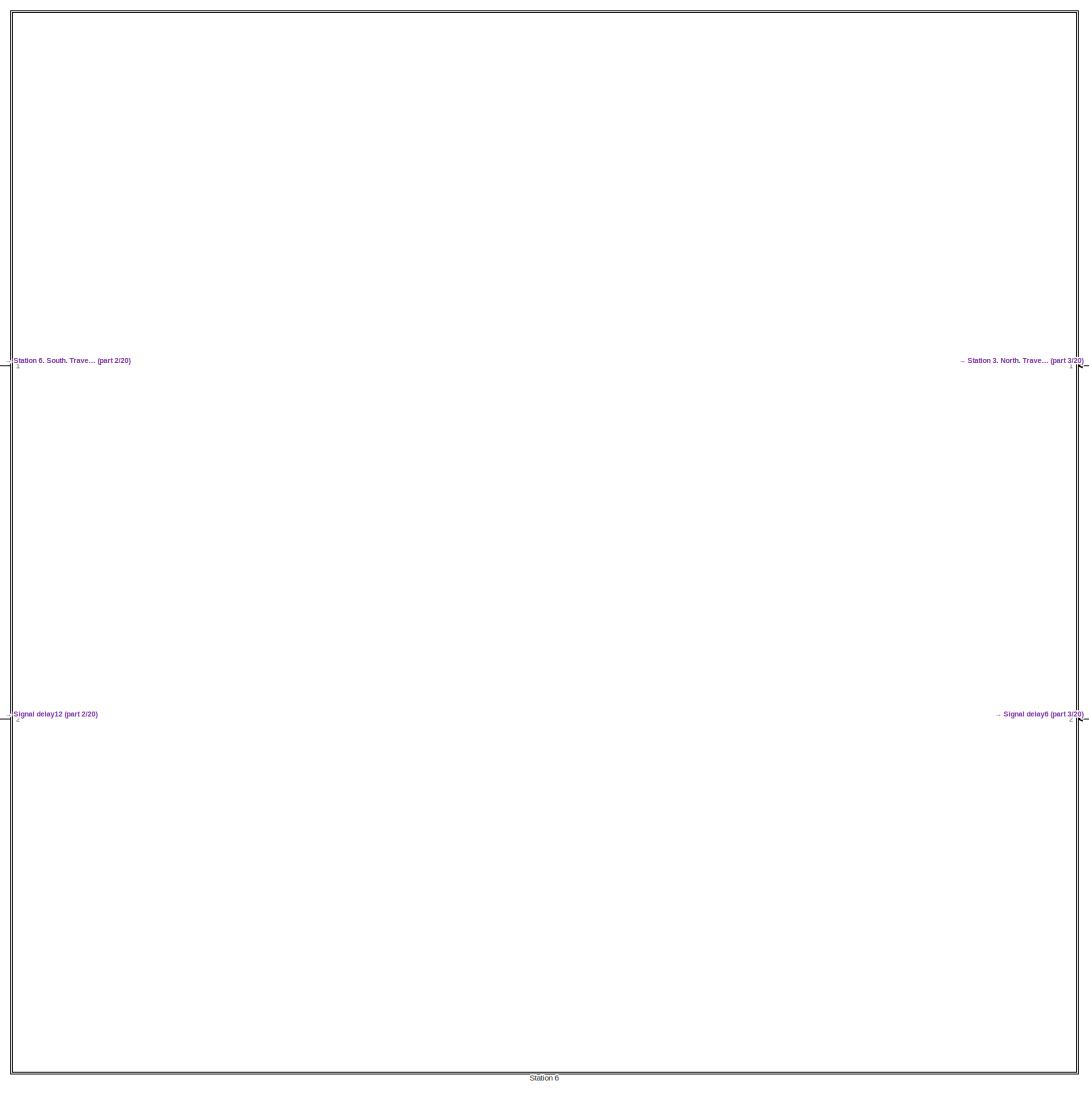
[diagram: root canvas - part 1/20, top center region]
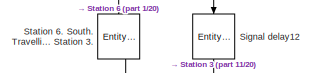
[diagram: root canvas - part 2/20, top center region]
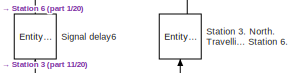
[diagram: root canvas - part 3/20, top center region]
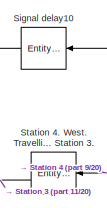
[diagram: root canvas - part 4/20, top right region]
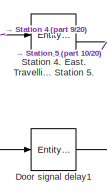
[diagram: root canvas - part 5/20, middle right region]
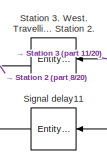
[diagram: root canvas - part 6/20, central region]
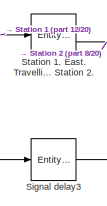
[diagram: root canvas - part 7/20, middle left region]
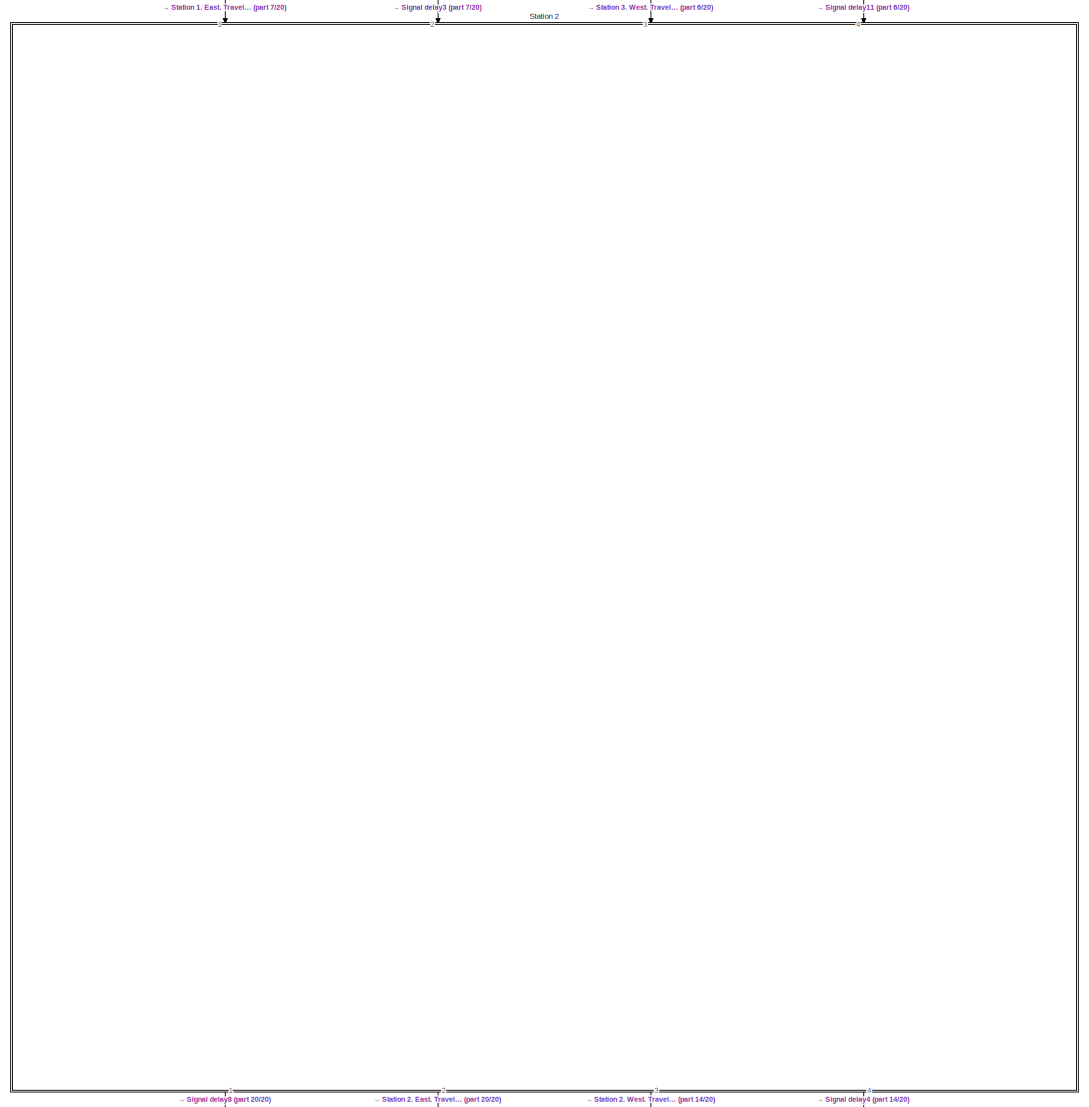
[diagram: root canvas - part 8/20, middle left region]
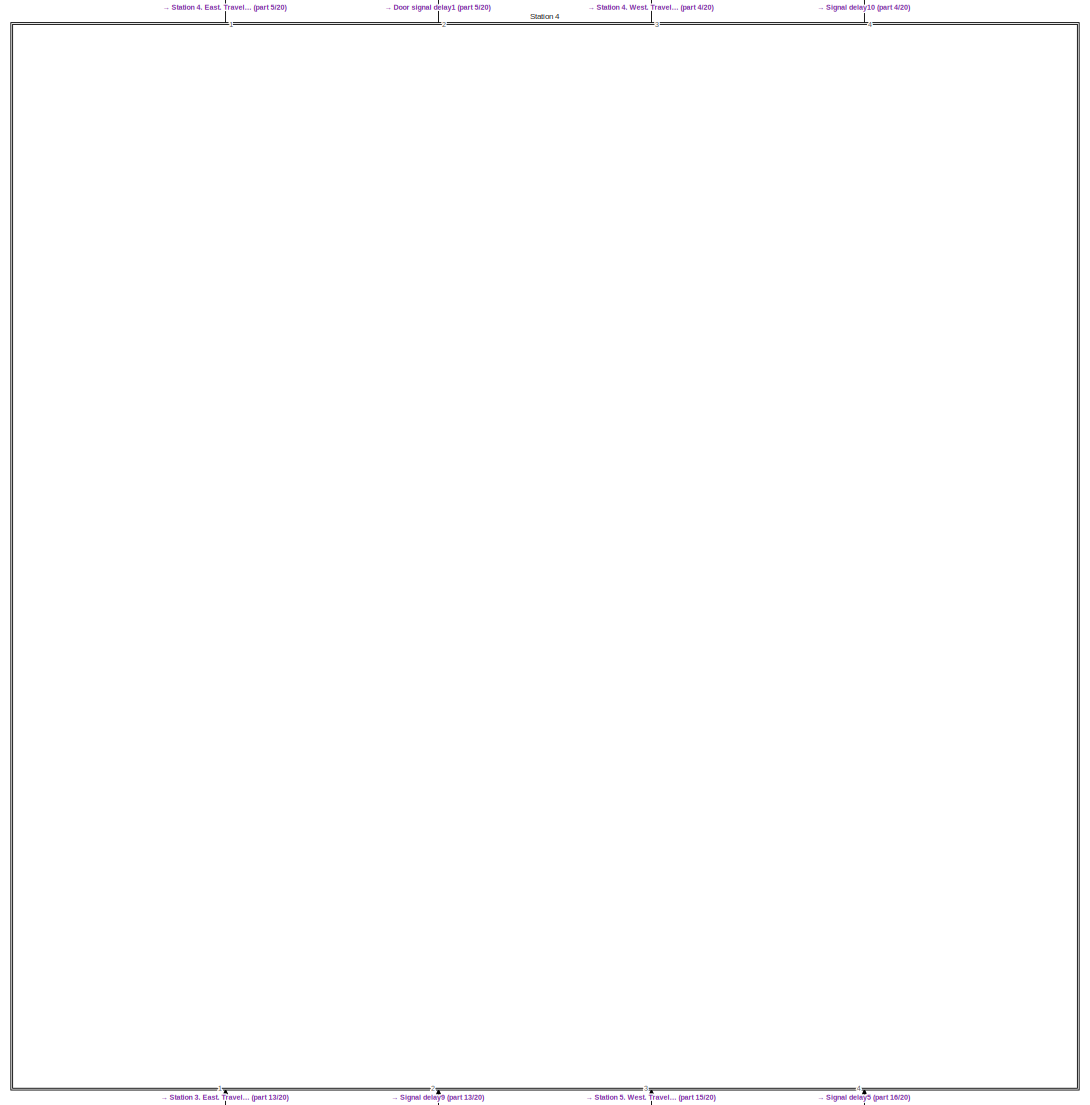
[diagram: root canvas - part 9/20, middle right region]
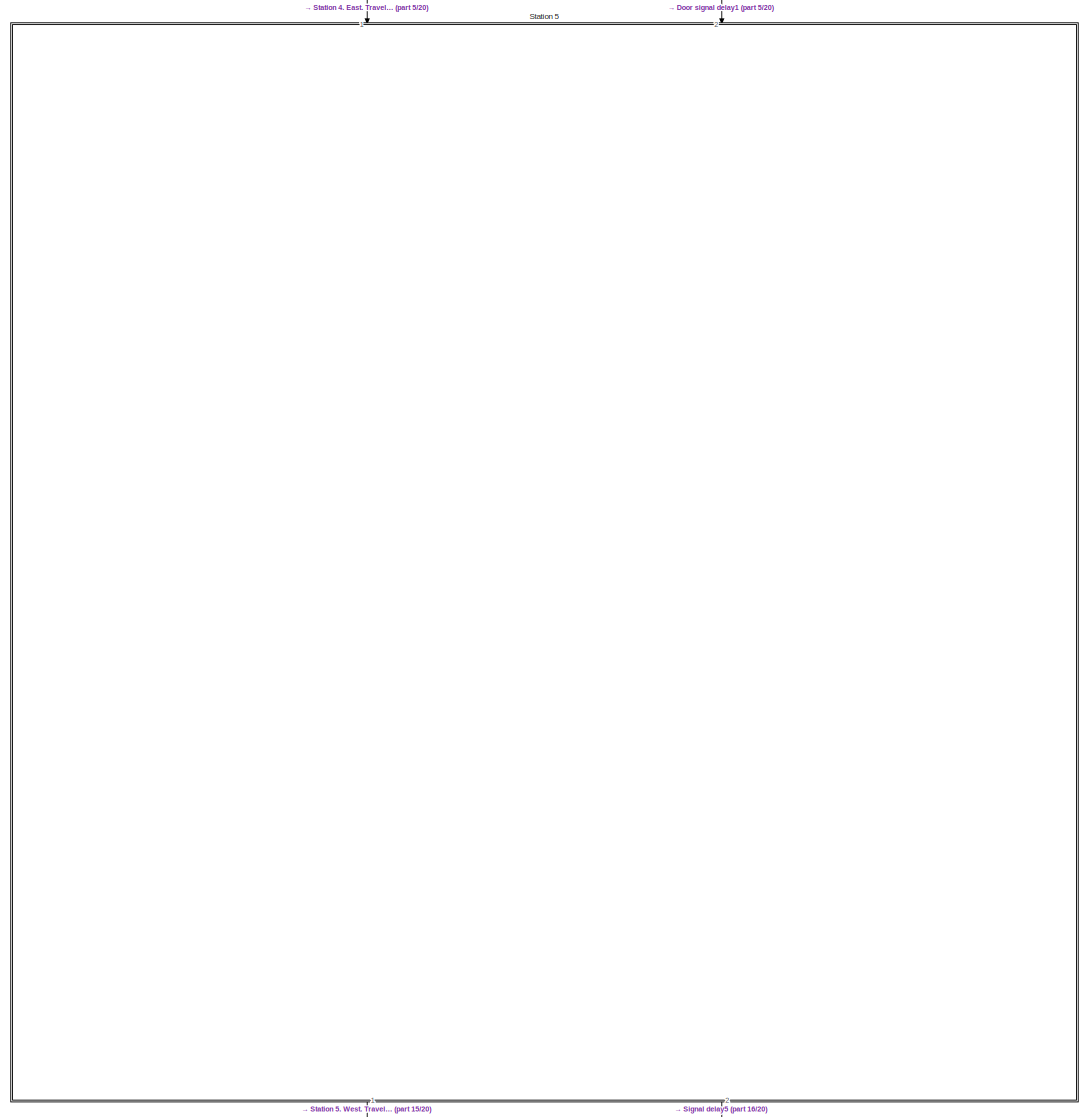
[diagram: root canvas - part 10/20, middle right region]
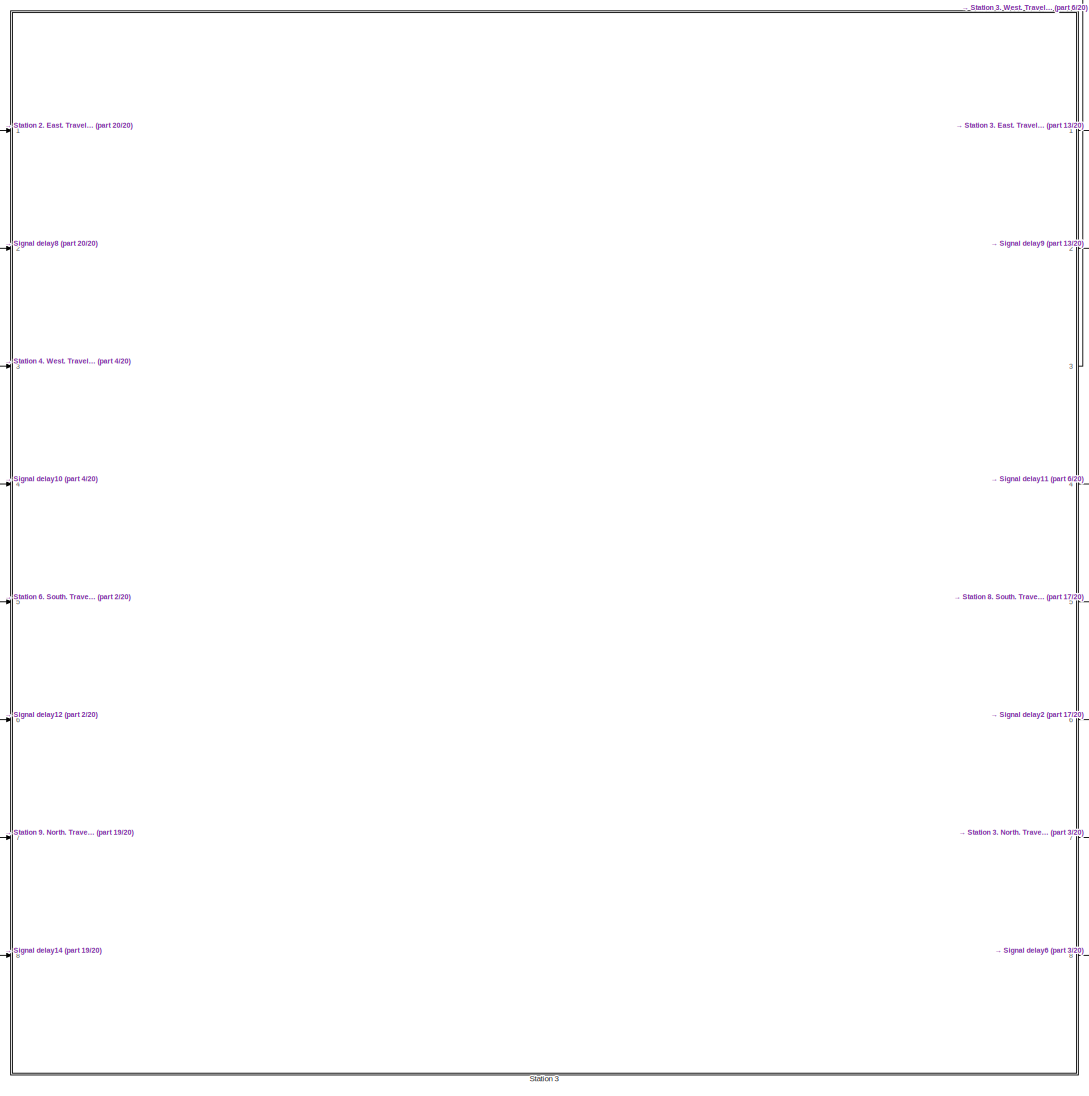
[diagram: root canvas - part 11/20, central region]
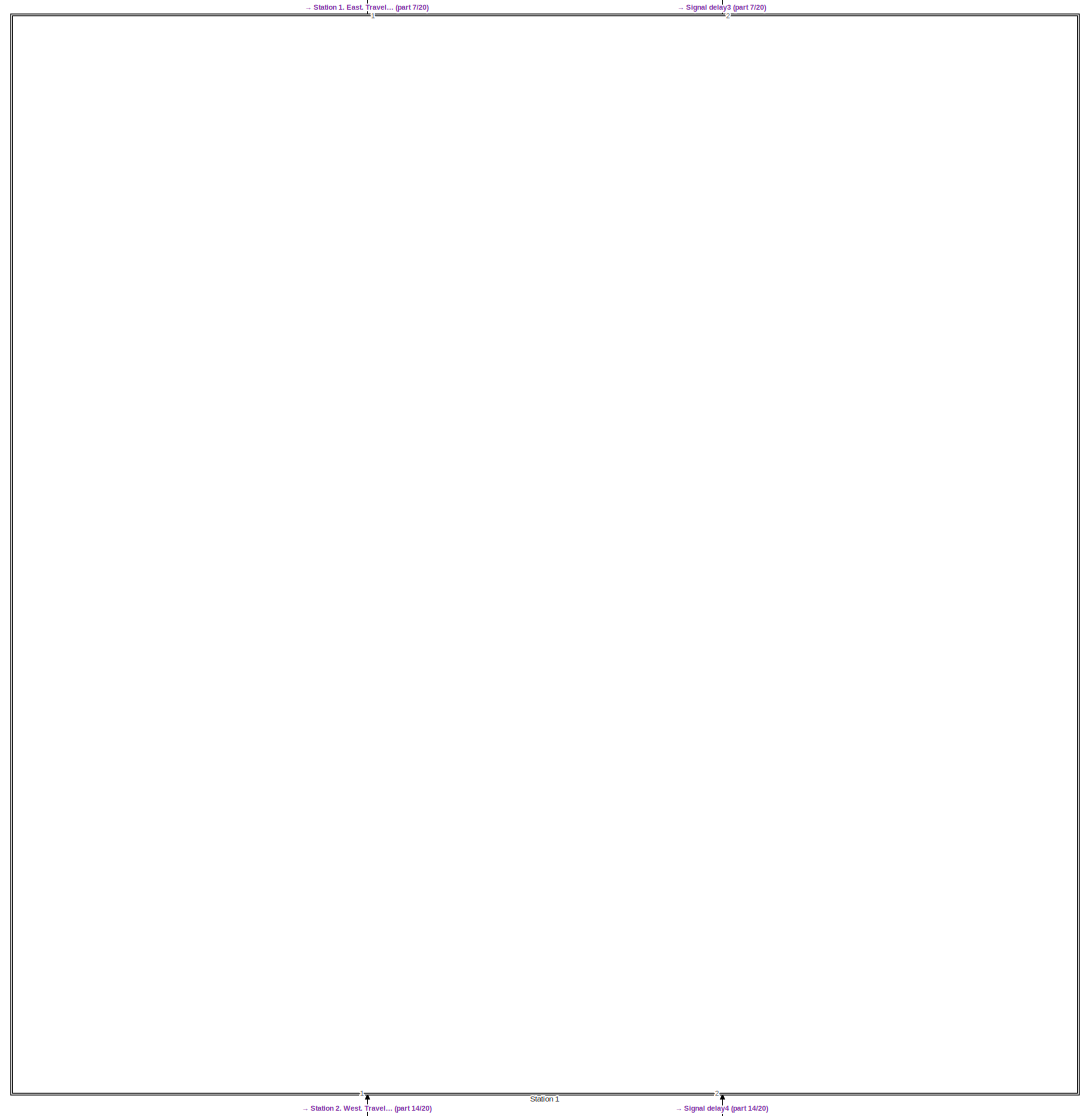
[diagram: root canvas - part 12/20, middle left region]
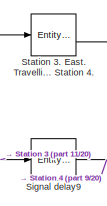
[diagram: root canvas - part 13/20, bottom center region]
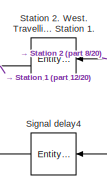
[diagram: root canvas - part 14/20, bottom left region]
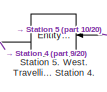
[diagram: root canvas - part 15/20, bottom right region]
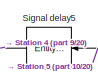
[diagram: root canvas - part 16/20, bottom right region]
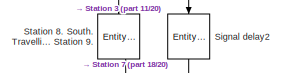
[diagram: root canvas - part 17/20, bottom center region]
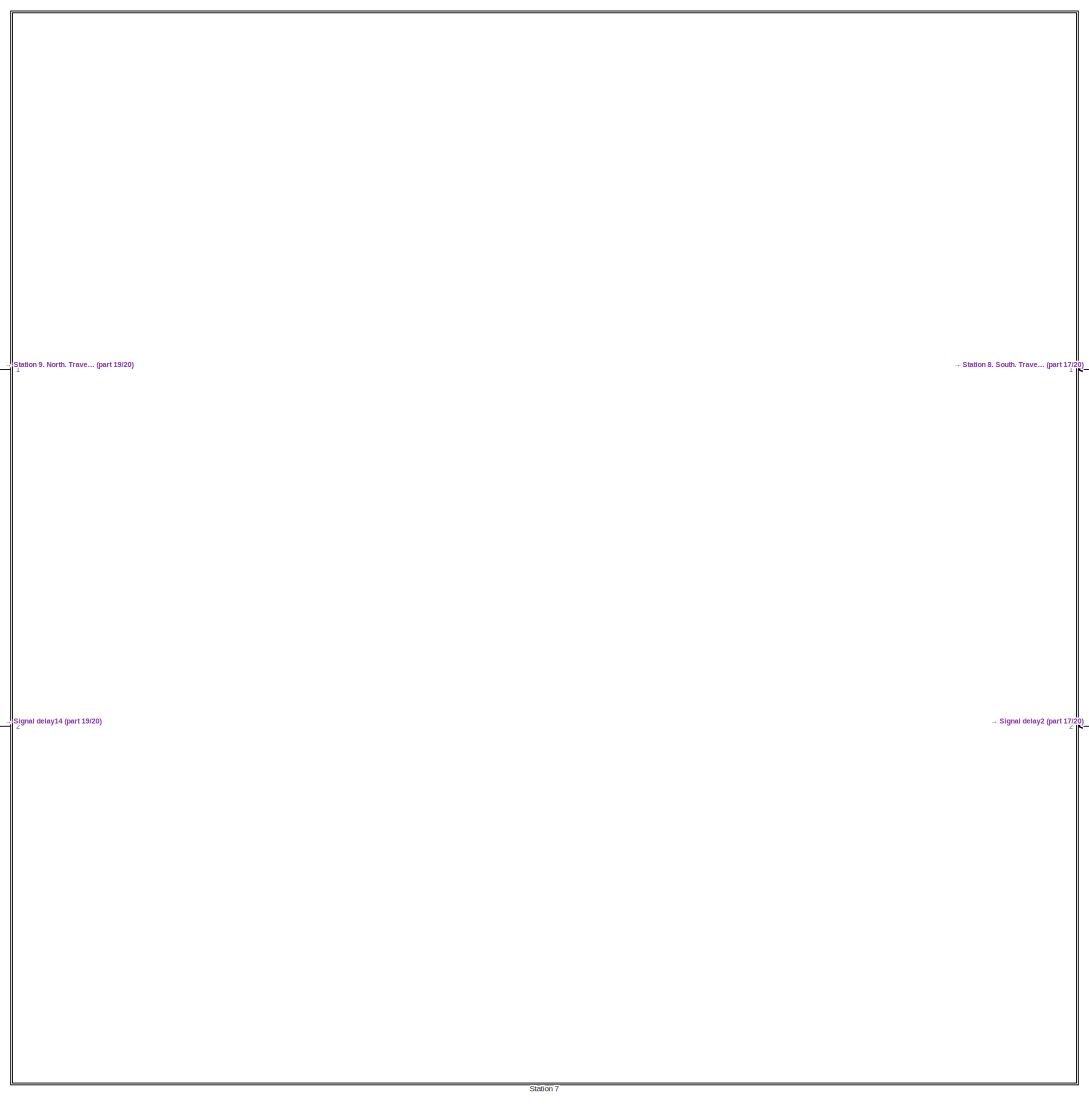
[diagram: root canvas - part 18/20, bottom center region]
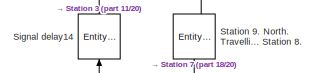
[diagram: root canvas - part 19/20, bottom center region]
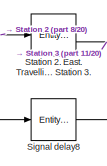
[diagram: root canvas - part 20/20, bottom left region]
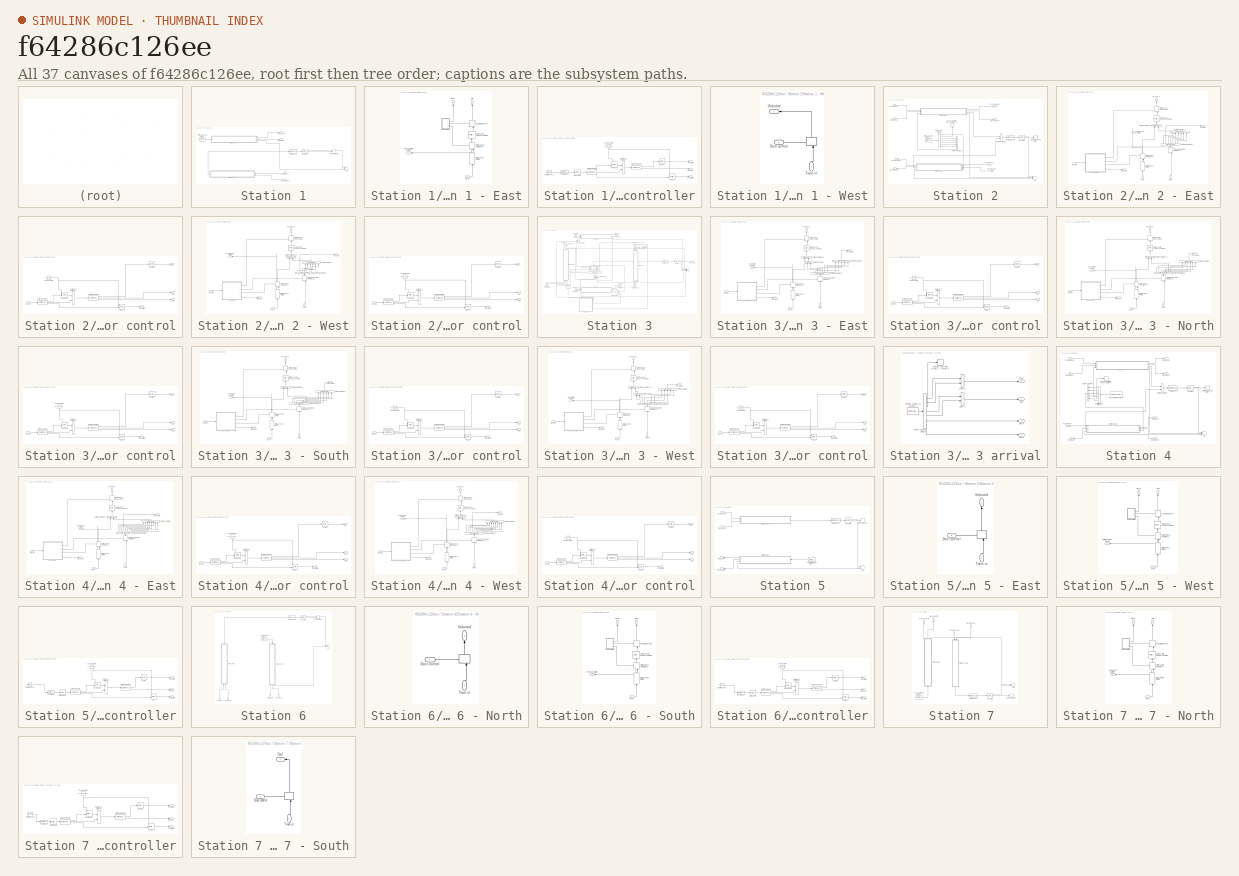
[diagram: thumbnail index - all 37 canvases of the model, root first then tree order]
MODEL slx_f64286c126ee
KIND model
CONFIG AbsTol = auto
CONFIG EnableMultiTasking = off
CONFIG FixedStep = auto
CONFIG MaxStep = auto
CONFIG MinStep = auto
CONFIG RelTol = 1e-3
CONFIG SampleTimeConstraint = Unconstrained
CONFIG Solver = VariableStepAuto
CONFIG SolverName = VariableStepAuto
CONFIG StartTime = 0.0
CONFIG StopTime = 2400
BLOCK [EntityServer] Door signal delay1
  Capacity = inf
  InputPortMap = u2
  InputPortMessageModes = m
  OutputPortMap = o9
  OutputPortMessageModes = m
  Ports = [1, 1]
  ServiceTimeValue = travel_times(4,5)
BLOCK [EntityServer] Signal delay10
  Capacity = inf
  InputPortMap = u2
  InputPortMessageModes = m
  OutputPortMap = o9
  OutputPortMessageModes = m
  Ports = [1, 1]
  ServiceTimeValue = travel_times(4,3)
BLOCK [EntityServer] Signal delay11
  Capacity = inf
  InputPortMap = u2
  InputPortMessageModes = m
  OutputPortMap = o9
  OutputPortMessageModes = m
  Ports = [1, 1]
  ServiceTimeValue = travel_times(3,2)
BLOCK [EntityServer] Signal delay12
  Capacity = inf
  InputPortMap = u2
  InputPortMessageModes = m
  OutputPortMap = o9
  OutputPortMessageModes = m
  Ports = [1, 1]
  ServiceTimeValue = travel_times(6,3)
BLOCK [EntityServer] Signal delay14
  Capacity = inf
  InputPortMap = u2
  InputPortMessageModes = m
  OutputPortMap = o9
  OutputPortMessageModes = m
  Ports = [1, 1]
  ServiceTimeValue = travel_times(7,3)
BLOCK [EntityServer] Signal delay2
  Capacity = inf
  InputPortMap = u2
  InputPortMessageModes = m
  OutputPortMap = o9
  OutputPortMessageModes = m
  Ports = [1, 1]
  ServiceTimeValue = travel_times(3,7)
BLOCK [EntityServer] Signal delay3
  Capacity = inf
  InputPortMap = u2
  InputPortMessageModes = m
  OutputPortMap = o9
  OutputPortMessageModes = m
  Ports = [1, 1]
  ServiceTimeValue = travel_times(1,2)
BLOCK [EntityServer] Signal delay4
  Capacity = inf
  InputPortMap = u2
  InputPortMessageModes = m
  OutputPortMap = o9
  OutputPortMessageModes = m
  Ports = [1, 1]
  ServiceTimeValue = travel_times(2,1)
BLOCK [EntityServer] Signal delay5
  Capacity = inf
  InputPortMap = u2
  InputPortMessageModes = m
  OutputPortMap = o9
  OutputPortMessageModes = m
  Ports = [1, 1]
  ServiceTimeValue = travel_times(5,4)
BLOCK [EntityServer] Signal delay6
  Capacity = inf
  InputPortMap = u2
  InputPortMessageModes = m
  OutputPortMap = o9
  OutputPortMessageModes = m
  Ports = [1, 1]
  ServiceTimeValue = travel_times(3,6)
BLOCK [EntityServer] Signal delay8
  Capacity = inf
  InputPortMap = u2
  InputPortMessageModes = m
  OutputPortMap = o9
  OutputPortMessageModes = m
  Ports = [1, 1]
  ServiceTimeValue = travel_times(2,3)
BLOCK [EntityServer] Signal delay9
  Capacity = inf
  InputPortMap = u2
  InputPortMessageModes = m
  OutputPortMap = o9
  OutputPortMessageModes = m
  Ports = [1, 1]
  ServiceTimeValue = travel_times(3,4)
BLOCK [SubSystem] Station 1
  Ports = [2, 2]
  RequestExecContextInheritance = off
BLOCK [EntityServer] Station 1. East. Travelling to Station 2.
  Capacity = train_cap
  InputPortMap = u2
  InputPortMessageModes = m
  NumberEntitiesInBlock = on
  OutputPortMap = o1,o9
  OutputPortMessageModes = n,m
  Ports = [1, 2]
  ServiceTimeValue = travel_times(1,2)
BLOCK [Sum] Station 1/Add
  InputSameDT = off
  OutDataTypeStr = Inherit: Inherit via internal rule
  Ports = [2, 1]
  SaturateOnIntegerOverflow = off
BLOCK [EntityServer] Station 1/Counting
  Capacity = inf
  InputPortMap = u2
  InputPortMessageModes = m
  NumberEntitiesInBlock = on
  OutputPortMap = o1,o9
  OutputPortMessageModes = n,m
  Ports = [1, 2]
  ServiceTimeAction = persistent rngInit;\nif isempty(rngInit)\n    seed = 12345;\n    rng(seed);\n    rngInit = true;\nend\n\n% Pattern: Gaussian (normal) distribution\n% m: Mean, d: Standard deviation\nm = 40; d = 8;\ndt = m + d * randn;  <repeated x7 — deduplicated; at blocks: Counting>
  ServiceTimeSource = MATLAB action
  ServiceTimeValue = 1
BLOCK [EntityQueue] Station 1/Entity Queue
  Capacity = 50
  EntryAction = coder.extrinsic("get_param");\ntime = double(0);\ntime = get_param("train_network", "SimulationTime");\nlifetime = time - entity.Timer;\n\ncoder.extrinsic("evalin");\nevalin("base", sprintf("lifetimes_1(1,end+1) = %f; lifetimes_1(2,end) = %f;", lifetime, entity.StartStation));
  InputPortMap = u0
  InputPortMessageModes = m
  OutputPortMap = o5
  OutputPortMessageModes = m
  Ports = [1, 1]
BLOCK [EntityTerminator] Station 1/Entity Terminator
  InputPortMap = u0
  InputPortMessageModes = m
  Ports = [1]
BLOCK [Outport] Station 1/People east
  IconDisplay = Port number
BLOCK [Outport] Station 1/Signal East
  IconDisplay = Port number
  Port = 2
BLOCK [Inport] Station 1/Signal in west
  IconDisplay = Port number
  Port = 2
BLOCK [SubSystem] Station 1/Station 1 - East
  Ports = [1, 3]
  RequestExecContextInheritance = off
BLOCK [EntityGate] Station 1/Station 1 - East/Departure blocking
  InputPortMap = u0,u1
  InputPortMessageModes = m,m
  OutputPortMap = o0
  OutputPortMessageModes = m
  Ports = [2, 1]
BLOCK [SubSystem] Station 1/Station 1 - East/Door controller
  Ports = [0, 3]
  RequestExecContextInheritance = off
BLOCK [EntityServer] Station 1/Station 1 - East/Door controller/Delay
  Capacity = inf
  InputPortMap = u0,u2
  InputPortMessageModes = n,m
  OutputPortMap = o9
  OutputPortMessageModes = m
  Ports = [2, 1]
  ServiceTimeSource = Signal port
  ServiceTimeValue = 0
BLOCK [EntityServer] Station 1/Station 1 - East/Door controller/Delay offset
  Capacity = inf
  InputPortMap = u2
  InputPortMessageModes = m
  OutputPortMap = o9
  OutputPortMessageModes = m
  Ports = [1, 1]
  ServiceTimeValue = train_offsets.E
BLOCK [Outport] Station 1/Station 1 - East/Door controller/Departure
  IconDisplay = Port number
  Port = 2
BLOCK [Constant] Station 1/Station 1 - East/Door controller/Door open time
  Value = door_opening(1)
BLOCK [EntityGenerator] Station 1/Station 1 - East/Door controller/Door signal
  AttributeName = entity
  DataInitialValue = 1
  EntityTypeName = Entity
  GenerateEntityAtSimulationStart = off
  InputPortMap = u1
  OutputPortMap = o3
  OutputPortMessageModes = m
  Period = 300
  Ports = [1, 1]
  TimeSource = Signal port
BLOCK [EntityInputSwitch] Station 1/Station 1 - East/Door controller/Entity Input Switch17
  InputPortMap = u1,u2
  InputPortMessageModes = m,m
  OutputPortMap = o0
  OutputPortMessageModes = m
  Ports = [2, 1]
BLOCK [EntityReplicator] Station 1/Station 1 - East/Door controller/Entity Replicator2
  InputPortMap = u0
  InputPortMessageModes = m
  NumberReplicas = 2
  OutputPortMap = o0,o1,o2
  OutputPortMessageModes = m,m,m
  Ports = [1, 3]
BLOCK [EntityReplicator] Station 1/Station 1 - East/Door controller/Entity Replicator26
  InputPortMap = u0
  InputPortMessageModes = m
  OutputPortMap = o0,o1
  OutputPortMessageModes = m,m
  Ports = [1, 2]
BLOCK [EntityServer] Station 1/Station 1 - East/Door controller/Invert+delay
  Capacity = inf
  EntryAction = entity = -entity;
  InputPortMap = u0,u2
  InputPortMessageModes = n,m
  OutputPortMap = o9
  OutputPortMessageModes = m
  Ports = [2, 1]
  ServiceTimeSource = Signal port
  ServiceTimeValue = 15
BLOCK [EntityServer] Station 1/Station 1 - East/Door controller/Inverter
  Capacity = inf
  EntryAction = entity = -entity;
  InputPortMap = u2
  InputPortMessageModes = m
  OutputPortMap = o9
  OutputPortMessageModes = m
  Ports = [1, 1]
  ServiceTimeValue = 0
BLOCK [Outport] Station 1/Station 1 - East/Door controller/Next station
  IconDisplay = Port number
BLOCK [Outport] Station 1/Station 1 - East/Door controller/Train door
  IconDisplay = Port number
  Port = 3
BLOCK [Constant] Station 1/Station 1 - East/Door controller/Train frequency
  Value = train_frequencies.E
BLOCK [Inport] Station 1/Station 1 - East/Inport
  IconDisplay = Port number
BLOCK [Outport] Station 1/Station 1 - East/Peopleplatform number
  IconDisplay = Port number
  Port = 3
BLOCK [Outport] Station 1/Station 1 - East/Signal
  IconDisplay = Port number
  Port = 2
BLOCK [EntityGate] Station 1/Station 1 - East/Station 1, East Train arrives1
  InputPortMap = u0,u1
  InputPortMessageModes = m,m
  OutputPortMap = o0
  OutputPortMessageModes = m
  Ports = [2, 1]
BLOCK [EntityServer] Station 1/Station 1 - East/Station 1. East. People in train while boarding.
  Capacity = train_cap
  InputPortMap = u2
  InputPortMessageModes = m
  OutputPortMap = o9
  OutputPortMessageModes = m
  Ports = [1, 1]
  ServiceTimeValue = 0
BLOCK [EntityQueue] Station 1/Station 1 - East/Station 1. East. Platform.
  Capacity = inf
  InputPortMap = u0
  InputPortMessageModes = m
  NumberEntitiesInBlock = on
  OutputPortMap = o1,o5
  OutputPortMessageModes = n,m
  Ports = [1, 2]
BLOCK [Outport] Station 1/Station 1 - East/Train
  IconDisplay = Port number
BLOCK [SubSystem] Station 1/Station 1 - West
  Ports = [2, 1]
  RequestExecContextInheritance = off
BLOCK [EntityGate] Station 1/Station 1 - West/ 
  InputPortMap = u0,u1
  InputPortMessageModes = m,m
  OutputPortMap = o0
  OutputPortMessageModes = m
  Ports = [2, 1]
BLOCK [Inport] Station 1/Station 1 - West/Door control
  IconDisplay = Port number
  Port = 2
BLOCK [Inport] Station 1/Station 1 - West/Train in
  IconDisplay = Port number
BLOCK [Outport] Station 1/Station 1 - West/Unboard 
  IconDisplay = Port number
BLOCK [EntityGenerator] Station 1/Station 1. People arriving.
  AttributeInitialValue = 0|0|1
  AttributeName = EndStation|Timer|StartStation
  EntityType = Structured
  EntityTypeName = Inbound
  GenerateAction = persistent rngInit;\nif isempty(rngInit)\n    seed = 12345;\n    rng(seed);\n    rngInit = true;\nend\n\n% Pattern: Arbitrary discrete distribution\n% V: Value vector\n% P: Probability vector\nV = [1 2 3 4 5 6 7];\nPs = P(entity.StartStation,:);\nentity.EndStation = randsample(V, 1, true, Ps);\n\ncoder.extrinsic("get_param");\nentity.Timer = get_param("train_network", "SimulationTime");  <repeated x7 — deduplicated; at blocks: Station 1. People arriving., Station 2. Peolpe arriving., People arriving to station 1, People arriving to station 4, People arriving to station 5., People arriving to station 6., People arriving to station 7>
  IntergenerationTimeAction = persistent rngInit;\nif isempty(rngInit)\n    seed = 173499;\n    rng(seed);\n    rngInit = true;\nend\n\n% Pattern: Exponential distribution\nmu = lambda(1);\ndt = -mu * log(1 - rand());
  OutputPortMap = o3
  OutputPortMessageModes = m
  Ports = [0, 1]
  TimeSource = MATLAB action
BLOCK [Inport] Station 1/Train in west
  IconDisplay = Port number
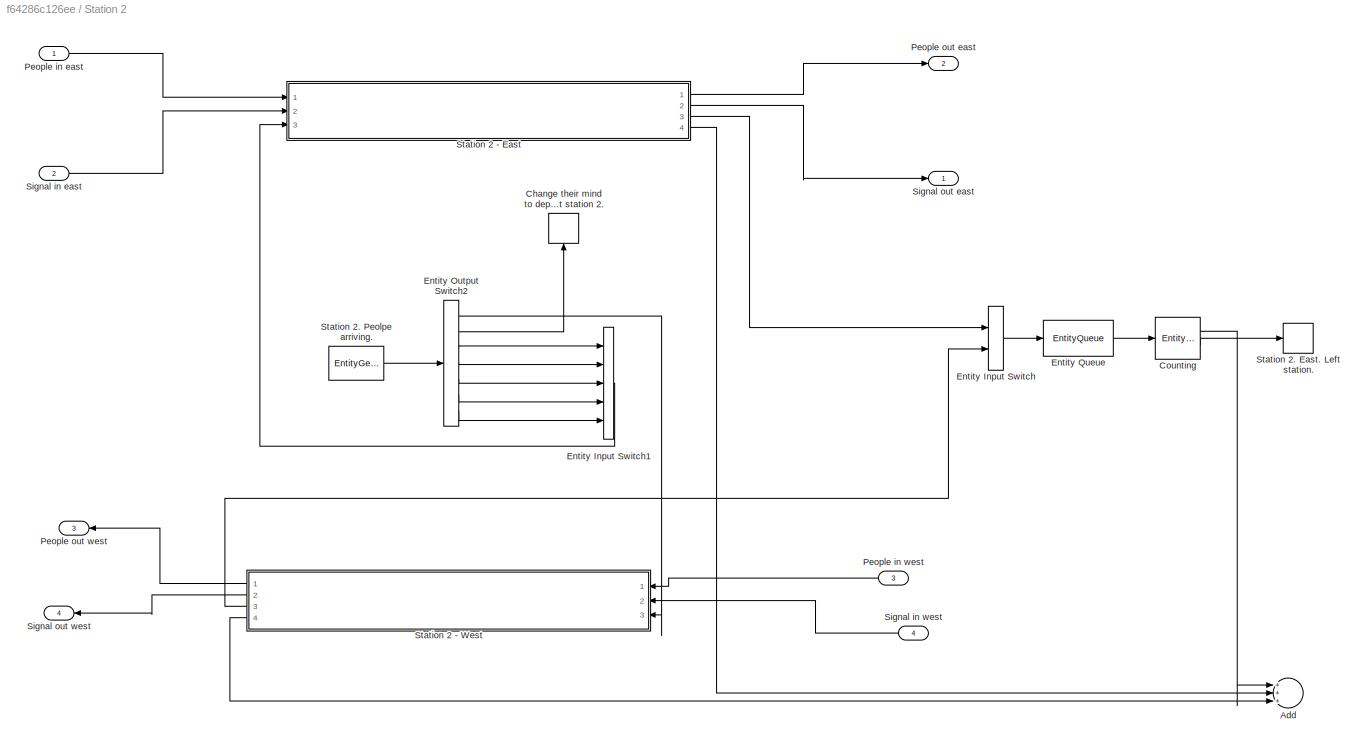
BLOCK [SubSystem] Station 2
  Ports = [4, 4]
  RequestExecContextInheritance = off
BLOCK [EntityServer] Station 2. East. Travelling to Station 3.
  Capacity = train_cap
  InputPortMap = u2
  InputPortMessageModes = m
  NumberEntitiesInBlock = on
  OutputPortMap = o1,o9
  OutputPortMessageModes = n,m
  Ports = [1, 2]
  ServiceTimeValue = travel_times(2,3)
BLOCK [EntityServer] Station 2. West. Travelling to Station 1.
  Capacity = train_cap
  InputPortMap = u2
  InputPortMessageModes = m
  NumberEntitiesInBlock = on
  OutputPortMap = o1,o9
  OutputPortMessageModes = n,m
  Ports = [1, 2]
  ServiceTimeValue = travel_times(2,1)
BLOCK [Sum] Station 2/Add
  InputSameDT = off
  Inputs = +++
  OutDataTypeStr = Inherit: Inherit via internal rule
  Ports = [3, 1]
  SaturateOnIntegerOverflow = off
BLOCK [EntityTerminator] Station 2/Change their mind to depart at station 2.
  InputPortMap = u0
  InputPortMessageModes = m
  Ports = [1]
BLOCK [EntityServer] Station 2/Counting
  Capacity = inf
  InputPortMap = u2
  InputPortMessageModes = m
  NumberEntitiesInBlock = on
  OutputPortMap = o1,o9
  OutputPortMessageModes = n,m
  Ports = [1, 2]
  ServiceTimeSource = MATLAB action
  ServiceTimeValue = 1
BLOCK [EntityInputSwitch] Station 2/Entity Input Switch
  InputPortMap = u1,u2
  InputPortMessageModes = m,m
  OutputPortMap = o0
  OutputPortMessageModes = m
  Ports = [2, 1]
BLOCK [EntityInputSwitch] Station 2/Entity Input Switch1
  InputPortMap = u1,u2,u3,u4,u5
  InputPortMessageModes = m,m,m,m,m
  NumberInputPorts = 5
  OutputPortMap = o0
  OutputPortMessageModes = m
  Ports = [5, 1]
BLOCK [EntityOutputSwitch] Station 2/Entity Output Switch2
  InputPortMap = u1
  InputPortMessageModes = m
  NumberOutputPorts = 7
  OutputPortMap = o0,o1,o2,o3,o4,o5,o6
  OutputPortMessageModes = m,m,m,m,m,m,m
  Ports = [1, 7]
  SwitchAttributeName = EndStation
  SwitchingCriterion = From attribute
BLOCK [EntityQueue] Station 2/Entity Queue
  Capacity = 50
  EntryAction = coder.extrinsic("get_param");\ntime = double(0);\ntime = get_param("train_network", "SimulationTime");\nlifetime = time - entity.Timer;\n\ncoder.extrinsic("evalin");\nevalin("base", sprintf("lifetimes_2(1,end+1) = %f; lifetimes_2(2,end) = %f;", lifetime, entity.StartStation));
  InputPortMap = u0
  InputPortMessageModes = m
  OutputPortMap = o5
  OutputPortMessageModes = m
  Ports = [1, 1]
BLOCK [Inport] Station 2/People in east
  IconDisplay = Port number
BLOCK [Inport] Station 2/People in west
  IconDisplay = Port number
  Port = 3
BLOCK [Outport] Station 2/People out east
  IconDisplay = Port number
  Port = 2
BLOCK [Outport] Station 2/People out west
  IconDisplay = Port number
  Port = 3
BLOCK [Inport] Station 2/Signal in east
  IconDisplay = Port number
  Port = 2
BLOCK [Inport] Station 2/Signal in west
  IconDisplay = Port number
  Port = 4
BLOCK [Outport] Station 2/Signal out east
  IconDisplay = Port number
BLOCK [Outport] Station 2/Signal out west
  IconDisplay = Port number
  Port = 4
BLOCK [SubSystem] Station 2/Station 2 - East
  Ports = [3, 4]
  RequestExecContextInheritance = off
BLOCK [SubSystem] Station 2/Station 2 - East/Door control
  Ports = [1, 4]
  RequestExecContextInheritance = off
BLOCK [EntityServer] Station 2/Station 2 - East/Door control/Delay
  Capacity = inf
  InputPortMap = u0,u2
  InputPortMessageModes = n,m
  OutputPortMap = o9
  OutputPortMessageModes = m
  Ports = [2, 1]
  ServiceTimeSource = Signal port
  ServiceTimeValue = 0
BLOCK [Constant] Station 2/Station 2 - East/Door control/Door open time
  Value = door_opening(2)
BLOCK [EntityInputSwitch] Station 2/Station 2 - East/Door control/Entity Input Switch17
  InputPortMap = u1,u2
  InputPortMessageModes = m,m
  OutputPortMap = o0
  OutputPortMessageModes = m
  Ports = [2, 1]
BLOCK [EntityReplicator] Station 2/Station 2 - East/Door control/Entity Replicator2
  InputPortMap = u0
  InputPortMessageModes = m
  NumberReplicas = 2
  OutputPortMap = o0,o1,o2
  OutputPortMessageModes = m,m,m
  Ports = [1, 3]
BLOCK [EntityReplicator] Station 2/Station 2 - East/Door control/Entity Replicator26
  InputPortMap = u0
  InputPortMessageModes = m
  NumberReplicas = 2
  OutputPortMap = o0,o1,o2
  OutputPortMessageModes = m,m,m
  Ports = [1, 3]
BLOCK [Outport] Station 2/Station 2 - East/Door control/Inv
  IconDisplay = Port number
BLOCK [EntityServer] Station 2/Station 2 - East/Door control/Invert+delay
  Capacity = inf
  EntryAction = entity = -entity;
  InputPortMap = u0,u2
  InputPortMessageModes = n,m
  OutputPortMap = o9
  OutputPortMessageModes = m
  Ports = [2, 1]
  ServiceTimeSource = Signal port
  ServiceTimeValue = 15
BLOCK [EntityServer] Station 2/Station 2 - East/Door control/Inverter
  Capacity = inf
  EntryAction = entity = -entity;
  InputPortMap = u2
  InputPortMessageModes = m
  OutputPortMap = o9
  OutputPortMessageModes = m
  Ports = [1, 1]
  ServiceTimeValue = 0
BLOCK [Outport] Station 2/Station 2 - East/Door control/Next station
  IconDisplay = Port number
  Port = 4
BLOCK [Outport] Station 2/Station 2 - East/Door control/Out2
  IconDisplay = Port number
  Port = 2
BLOCK [Outport] Station 2/Station 2 - East/Door control/Out3
  IconDisplay = Port number
  Port = 3
BLOCK [Inport] Station 2/Station 2 - East/Door control/Signal in
  IconDisplay = Port number
BLOCK [EntityInputSwitch] Station 2/Station 2 - East/Entity Input Switch1
  InputPortMap = u1,u2,u3,u4,u5,u6
  InputPortMessageModes = m,m,m,m,m,m
  NumberInputPorts = 6
  OutputPortMap = o0
  OutputPortMessageModes = m
  Ports = [6, 1]
BLOCK [EntityInputSwitch] Station 2/Station 2 - East/Entity Input Switch18
  InputPortMap = u1,u2
  InputPortMessageModes = m,m
  OutputPortMap = o0
  OutputPortMessageModes = m
  Ports = [2, 1]
BLOCK [EntityOutputSwitch] Station 2/Station 2 - East/Entity Output Switch9
  InputPortMap = u1
  InputPortMessageModes = m
  NumberOutputPorts = 7
  OutputPortMap = o0,o1,o2,o3,o4,o5,o6
  OutputPortMessageModes = m,m,m,m,m,m,m
  Ports = [1, 7]
  SwitchAttributeName = EndStation
  SwitchingCriterion = From attribute
BLOCK [Inport] Station 2/Station 2 - East/Inport
  IconDisplay = Port number
  Port = 3
BLOCK [Outport] Station 2/Station 2 - East/Num people platform 
  IconDisplay = Port number
  Port = 4
BLOCK [Outport] Station 2/Station 2 - East/People out
  IconDisplay = Port number
BLOCK [Inport] Station 2/Station 2 - East/Signal in
  IconDisplay = Port number
  Port = 2
BLOCK [Outport] Station 2/Station 2 - East/Signal out
  IconDisplay = Port number
  Port = 2
BLOCK [EntityGate] Station 2/Station 2 - East/Station 2, east Train departs1
  InputPortMap = u0,u1
  InputPortMessageModes = m,m
  OutputPortMap = o0
  OutputPortMessageModes = m
  Ports = [2, 1]
BLOCK [EntityServer] Station 2/Station 2 - East/Station 2. East. People in train while boarding.
  Capacity = train_cap
  InputPortMap = u2
  InputPortMessageModes = m
  OutputPortMap = o9
  OutputPortMessageModes = m
  Ports = [1, 1]
  ServiceTimeValue = 0
BLOCK [EntityQueue] Station 2/Station 2 - East/Station 2. East. Platform. 
  Capacity = inf
  InputPortMap = u0
  InputPortMessageModes = m
  NumberEntitiesInBlock = on
  OutputPortMap = o1,o5
  OutputPortMessageModes = n,m
  Ports = [1, 2]
BLOCK [EntityGate] Station 2/Station 2 - East/Station 4, west Train arrives1
  InputPortMap = u0,u1
  InputPortMessageModes = m,m
  OutputPortMap = o0
  OutputPortMessageModes = m
  Ports = [2, 1]
BLOCK [EntityGate] Station 2/Station 2 - East/Train East boarding off at Station 10
  InputPortMap = u0,u1
  InputPortMessageModes = m,m
  OutputPortMap = o0
  OutputPortMessageModes = m
  Ports = [2, 1]
BLOCK [Inport] Station 2/Station 2 - East/Train in
  IconDisplay = Port number
BLOCK [Outport] Station 2/Station 2 - East/Unboard
  IconDisplay = Port number
  Port = 3
BLOCK [SubSystem] Station 2/Station 2 - West
  Ports = [3, 4]
  RequestExecContextInheritance = off
BLOCK [SubSystem] Station 2/Station 2 - West/Door control
  Ports = [1, 4]
  RequestExecContextInheritance = off
BLOCK [EntityServer] Station 2/Station 2 - West/Door control/Delay
  Capacity = inf
  InputPortMap = u0,u2
  InputPortMessageModes = n,m
  OutputPortMap = o9
  OutputPortMessageModes = m
  Ports = [2, 1]
  ServiceTimeSource = Signal port
  ServiceTimeValue = 0
BLOCK [Constant] Station 2/Station 2 - West/Door control/Door open time
  Value = door_opening(2)
BLOCK [EntityInputSwitch] Station 2/Station 2 - West/Door control/Entity Input Switch17
  InputPortMap = u1,u2
  InputPortMessageModes = m,m
  OutputPortMap = o0
  OutputPortMessageModes = m
  Ports = [2, 1]
BLOCK [EntityReplicator] Station 2/Station 2 - West/Door control/Entity Replicator2
  InputPortMap = u0
  InputPortMessageModes = m
  NumberReplicas = 2
  OutputPortMap = o0,o1,o2
  OutputPortMessageModes = m,m,m
  Ports = [1, 3]
BLOCK [EntityReplicator] Station 2/Station 2 - West/Door control/Entity Replicator26
  InputPortMap = u0
  InputPortMessageModes = m
  NumberReplicas = 2
  OutputPortMap = o0,o1,o2
  OutputPortMessageModes = m,m,m
  Ports = [1, 3]
BLOCK [Outport] Station 2/Station 2 - West/Door control/Inv
  IconDisplay = Port number
BLOCK [EntityServer] Station 2/Station 2 - West/Door control/Invert+delay
  Capacity = inf
  EntryAction = entity = -entity;
  InputPortMap = u0,u2
  InputPortMessageModes = n,m
  OutputPortMap = o9
  OutputPortMessageModes = m
  Ports = [2, 1]
  ServiceTimeSource = Signal port
  ServiceTimeValue = 15
BLOCK [EntityServer] Station 2/Station 2 - West/Door control/Inverter
  Capacity = inf
  EntryAction = entity = -entity;
  InputPortMap = u2
  InputPortMessageModes = m
  OutputPortMap = o9
  OutputPortMessageModes = m
  Ports = [1, 1]
  ServiceTimeValue = 0
BLOCK [Outport] Station 2/Station 2 - West/Door control/Next station
  IconDisplay = Port number
  Port = 4
BLOCK [Outport] Station 2/Station 2 - West/Door control/Out2
  IconDisplay = Port number
  Port = 2
BLOCK [Outport] Station 2/Station 2 - West/Door control/Out3
  IconDisplay = Port number
  Port = 3
BLOCK [Inport] Station 2/Station 2 - West/Door control/Signal in
  IconDisplay = Port number
BLOCK [EntityInputSwitch] Station 2/Station 2 - West/Entity Input Switch1
  InputPortMap = u1,u2,u3,u4,u5,u6
  InputPortMessageModes = m,m,m,m,m,m
  NumberInputPorts = 6
  OutputPortMap = o0
  OutputPortMessageModes = m
  Ports = [6, 1]
BLOCK [EntityInputSwitch] Station 2/Station 2 - West/Entity Input Switch18
  InputPortMap = u1,u2
  InputPortMessageModes = m,m
  OutputPortMap = o0
  OutputPortMessageModes = m
  Ports = [2, 1]
BLOCK [EntityOutputSwitch] Station 2/Station 2 - West/Entity Output Switch9
  InputPortMap = u1
  InputPortMessageModes = m
  NumberOutputPorts = 7
  OutputPortMap = o0,o1,o2,o3,o4,o5,o6
  OutputPortMessageModes = m,m,m,m,m,m,m
  Ports = [1, 7]
  SwitchAttributeName = EndStation
  SwitchingCriterion = From attribute
BLOCK [Inport] Station 2/Station 2 - West/Inport
  IconDisplay = Port number
  Port = 3
BLOCK [Outport] Station 2/Station 2 - West/Num people platform
  IconDisplay = Port number
  Port = 4
BLOCK [Outport] Station 2/Station 2 - West/People out
  IconDisplay = Port number
BLOCK [Inport] Station 2/Station 2 - West/Signal in
  IconDisplay = Port number
  Port = 2
BLOCK [Outport] Station 2/Station 2 - West/Signal out
  IconDisplay = Port number
  Port = 2
BLOCK [EntityGate] Station 2/Station 2 - West/Station 2, west Train departs1
  InputPortMap = u0,u1
  InputPortMessageModes = m,m
  OutputPortMap = o0
  OutputPortMessageModes = m
  Ports = [2, 1]
BLOCK [EntityServer] Station 2/Station 2 - West/Station 2. West. People in train while boarding.
  Capacity = train_cap
  InputPortMap = u2
  InputPortMessageModes = m
  OutputPortMap = o9
  OutputPortMessageModes = m
  Ports = [1, 1]
  ServiceTimeValue = 0
BLOCK [EntityQueue] Station 2/Station 2 - West/Station 2. West. Platform.
  Capacity = inf
  InputPortMap = u0
  InputPortMessageModes = m
  NumberEntitiesInBlock = on
  OutputPortMap = o1,o5
  OutputPortMessageModes = n,m
  Ports = [1, 2]
BLOCK [EntityGate] Station 2/Station 2 - West/Station 4, west Train arrives1
  InputPortMap = u0,u1
  InputPortMessageModes = m,m
  OutputPortMap = o0
  OutputPortMessageModes = m
  Ports = [2, 1]
BLOCK [EntityGate] Station 2/Station 2 - West/Train East boarding off at Station 10
  InputPortMap = u0,u1
  InputPortMessageModes = m,m
  OutputPortMap = o0
  OutputPortMessageModes = m
  Ports = [2, 1]
BLOCK [Inport] Station 2/Station 2 - West/Train in
  IconDisplay = Port number
BLOCK [Outport] Station 2/Station 2 - West/Unboard
  IconDisplay = Port number
  Port = 3
BLOCK [EntityTerminator] Station 2/Station 2. East. Left station.
  InputPortMap = u0
  InputPortMessageModes = m
  NumberEntitiesArrived = on
  OutputPortMap = o0
  Ports = [1, 1]
BLOCK [EntityGenerator] Station 2/Station 2. Peolpe arriving.
  AttributeInitialValue = 0|0|2
  AttributeName = EndStation|Timer|StartStation
  EntityType = Structured
  EntityTypeName = Inbound
  IntergenerationTimeAction = persistent rngInit;\nif isempty(rngInit)\n    seed = 173499;\n    rng(seed);\n    rngInit = true;\nend\n\n% Pattern: Exponential distribution\nmu = lambda(2);\ndt = -mu * log(1 - rand());
  OutputPortMap = o3
  OutputPortMessageModes = m
  Ports = [0, 1]
  TimeSource = MATLAB action
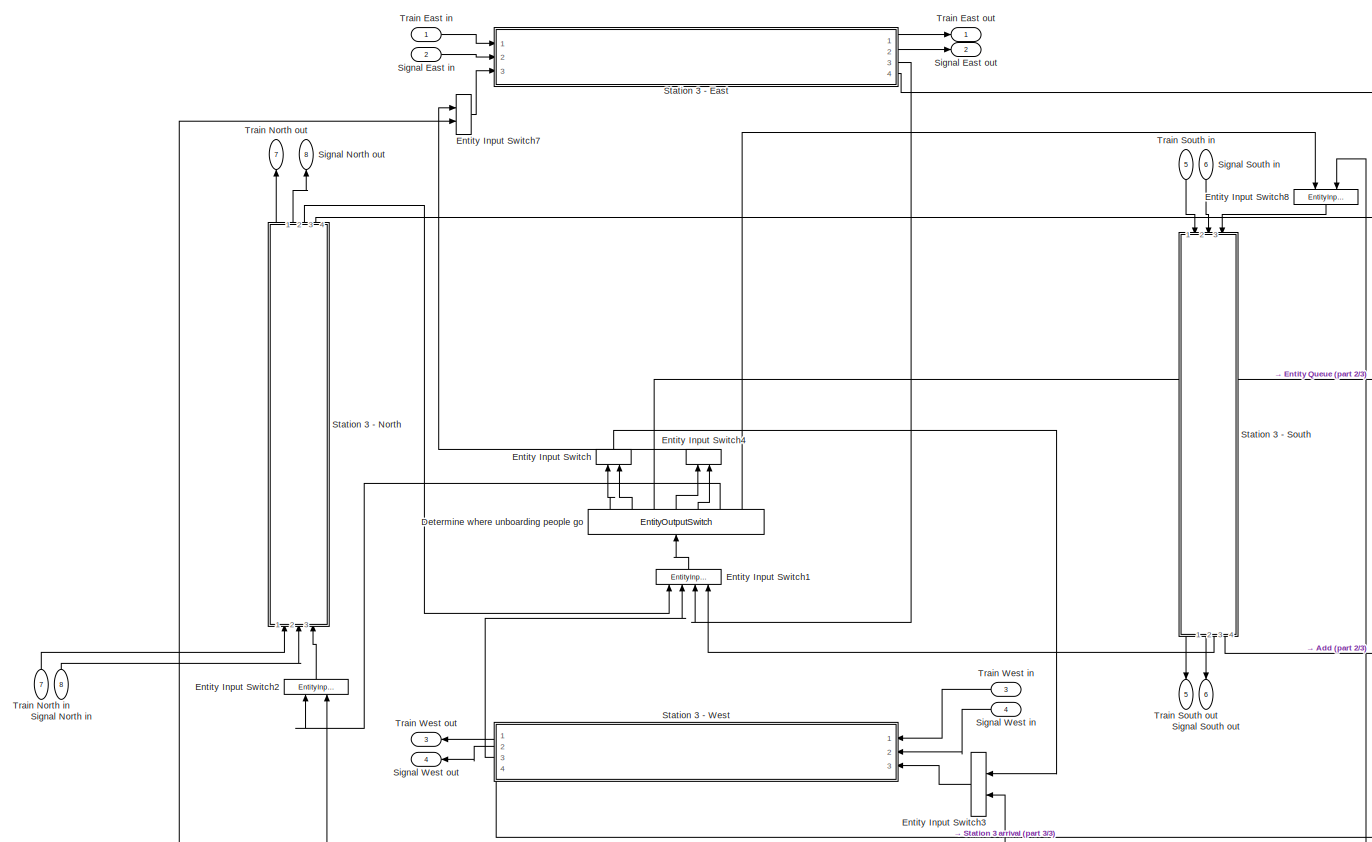
[diagram: Station 3 - part 1/3, center side, full height]
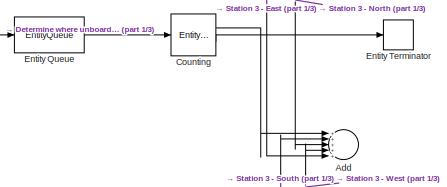
[diagram: Station 3 - part 2/3, middle right region]
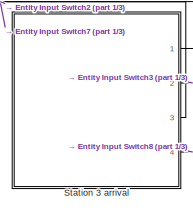
[diagram: Station 3 - part 3/3, bottom left region]
BLOCK [SubSystem] Station 3
  Ports = [8, 8]
  RequestExecContextInheritance = off
BLOCK [EntityServer] Station 3. East. Travelling to Station 4.
  Capacity = train_cap
  InputPortMap = u2
  InputPortMessageModes = m
  NumberEntitiesInBlock = on
  OutputPortMap = o1,o9
  OutputPortMessageModes = n,m
  Ports = [1, 2]
  ServiceTimeValue = travel_times(3,4)
BLOCK [EntityServer] Station 3. North. Travelling to Station 6.
  Capacity = train_cap
  InputPortMap = u2
  InputPortMessageModes = m
  NumberEntitiesInBlock = on
  OutputPortMap = o1,o9
  OutputPortMessageModes = n,m
  Ports = [1, 2]
  ServiceTimeValue = travel_times(3,6)
BLOCK [EntityServer] Station 3. West. Travelling to Station 2.
  Capacity = train_cap
  InputPortMap = u2
  InputPortMessageModes = m
  NumberEntitiesInBlock = on
  OutputPortMap = o1,o9
  OutputPortMessageModes = n,m
  Ports = [1, 2]
  ServiceTimeValue = travel_times(3,2)
BLOCK [Sum] Station 3/Add
  InputSameDT = off
  Inputs = +++++
  OutDataTypeStr = Inherit: Inherit via internal rule
  Ports = [5, 1]
  SaturateOnIntegerOverflow = off
BLOCK [EntityServer] Station 3/Counting
  Capacity = inf
  InputPortMap = u2
  InputPortMessageModes = m
  NumberEntitiesInBlock = on
  OutputPortMap = o1,o9
  OutputPortMessageModes = n,m
  Ports = [1, 2]
  ServiceTimeSource = MATLAB action
  ServiceTimeValue = 1
BLOCK [EntityOutputSwitch] Station 3/Determine where unboarding people go
  InputPortMap = u1
  InputPortMessageModes = m
  NumberOutputPorts = 7
  OutputPortMap = o0,o1,o2,o3,o4,o5,o6
  OutputPortMessageModes = m,m,m,m,m,m,m
  Ports = [1, 7]
  SwitchAttributeName = EndStation
  SwitchingCriterion = From attribute
BLOCK [EntityInputSwitch] Station 3/Entity Input Switch
  InputPortMap = u1,u2
  InputPortMessageModes = m,m
  OutputPortMap = o0
  OutputPortMessageModes = m
  Ports = [2, 1]
BLOCK [EntityInputSwitch] Station 3/Entity Input Switch1
  InputPortMap = u1,u2,u3,u4
  InputPortMessageModes = m,m,m,m
  NumberInputPorts = 4
  OutputPortMap = o0
  OutputPortMessageModes = m
  Ports = [4, 1]
BLOCK [EntityInputSwitch] Station 3/Entity Input Switch2
  InputPortMap = u1,u2
  InputPortMessageModes = m,m
  OutputPortMap = o0
  OutputPortMessageModes = m
  Ports = [2, 1]
BLOCK [EntityInputSwitch] Station 3/Entity Input Switch3
  InputPortMap = u1,u2
  InputPortMessageModes = m,m
  OutputPortMap = o0
  OutputPortMessageModes = m
  Ports = [2, 1]
BLOCK [EntityInputSwitch] Station 3/Entity Input Switch4
  InputPortMap = u1,u2
  InputPortMessageModes = m,m
  OutputPortMap = o0
  OutputPortMessageModes = m
  Ports = [2, 1]
BLOCK [EntityInputSwitch] Station 3/Entity Input Switch7
  InputPortMap = u1,u2
  InputPortMessageModes = m,m
  OutputPortMap = o0
  OutputPortMessageModes = m
  Ports = [2, 1]
BLOCK [EntityInputSwitch] Station 3/Entity Input Switch8
  InputPortMap = u1,u2
  InputPortMessageModes = m,m
  OutputPortMap = o0
  OutputPortMessageModes = m
  Ports = [2, 1]
BLOCK [EntityQueue] Station 3/Entity Queue
  Capacity = 50
  EntryAction = coder.extrinsic("get_param");\ntime = double(0);\ntime = get_param("train_network", "SimulationTime");\nlifetime = time - entity.Timer;\n\ncoder.extrinsic("evalin");\nevalin("base", sprintf("lifetimes_3(1,end+1) = %f; lifetimes_3(2,end) = %f;", lifetime, entity.StartStation));
  InputPortMap = u0
  InputPortMessageModes = m
  OutputPortMap = o5
  OutputPortMessageModes = m
  Ports = [1, 1]
BLOCK [EntityTerminator] Station 3/Entity Terminator
  InputPortMap = u0
  InputPortMessageModes = m
  Ports = [1]
BLOCK [Inport] Station 3/Signal East in
  IconDisplay = Port number
  Port = 2
BLOCK [Outport] Station 3/Signal East out
  IconDisplay = Port number
  Port = 2
BLOCK [Inport] Station 3/Signal North in
  IconDisplay = Port number
  Port = 8
BLOCK [Outport] Station 3/Signal North out
  IconDisplay = Port number
  Port = 8
BLOCK [Inport] Station 3/Signal South in
  IconDisplay = Port number
  Port = 6
BLOCK [Outport] Station 3/Signal South out
  IconDisplay = Port number
  Port = 6
BLOCK [Inport] Station 3/Signal West in
  IconDisplay = Port number
  Port = 4
BLOCK [Outport] Station 3/Signal West out
  IconDisplay = Port number
  Port = 4
BLOCK [SubSystem] Station 3/Station 3 - East
  Ports = [3, 4]
  RequestExecContextInheritance = off
BLOCK [SubSystem] Station 3/Station 3 - East/Door control
  Ports = [1, 4]
  RequestExecContextInheritance = off
BLOCK [EntityServer] Station 3/Station 3 - East/Door control/Delay
  Capacity = inf
  InputPortMap = u0,u2
  InputPortMessageModes = n,m
  OutputPortMap = o9
  OutputPortMessageModes = m
  Ports = [2, 1]
  ServiceTimeSource = Signal port
  ServiceTimeValue = 0
BLOCK [Constant] Station 3/Station 3 - East/Door control/Door open time
  Value = door_opening(3)
BLOCK [EntityInputSwitch] Station 3/Station 3 - East/Door control/Entity Input Switch17
  InputPortMap = u1,u2
  InputPortMessageModes = m,m
  OutputPortMap = o0
  OutputPortMessageModes = m
  Ports = [2, 1]
BLOCK [EntityReplicator] Station 3/Station 3 - East/Door control/Entity Replicator2
  InputPortMap = u0
  InputPortMessageModes = m
  NumberReplicas = 2
  OutputPortMap = o0,o1,o2
  OutputPortMessageModes = m,m,m
  Ports = [1, 3]
BLOCK [EntityReplicator] Station 3/Station 3 - East/Door control/Entity Replicator26
  InputPortMap = u0
  InputPortMessageModes = m
  NumberReplicas = 2
  OutputPortMap = o0,o1,o2
  OutputPortMessageModes = m,m,m
  Ports = [1, 3]
BLOCK [Outport] Station 3/Station 3 - East/Door control/Inv
  IconDisplay = Port number
BLOCK [EntityServer] Station 3/Station 3 - East/Door control/Invert+delay
  Capacity = inf
  EntryAction = entity = -entity;
  InputPortMap = u0,u2
  InputPortMessageModes = n,m
  OutputPortMap = o9
  OutputPortMessageModes = m
  Ports = [2, 1]
  ServiceTimeSource = Signal port
  ServiceTimeValue = 15
BLOCK [EntityServer] Station 3/Station 3 - East/Door control/Inverter
  Capacity = inf
  EntryAction = entity = -entity;
  InputPortMap = u2
  InputPortMessageModes = m
  OutputPortMap = o9
  OutputPortMessageModes = m
  Ports = [1, 1]
  ServiceTimeValue = 0
BLOCK [Outport] Station 3/Station 3 - East/Door control/Next station
  IconDisplay = Port number
  Port = 4
BLOCK [Outport] Station 3/Station 3 - East/Door control/Out2
  IconDisplay = Port number
  Port = 2
BLOCK [Outport] Station 3/Station 3 - East/Door control/Out3
  IconDisplay = Port number
  Port = 3
BLOCK [Inport] Station 3/Station 3 - East/Door control/Signal in
  IconDisplay = Port number
BLOCK [EntityInputSwitch] Station 3/Station 3 - East/Entity Input Switch
  InputPortMap = u1,u2
  InputPortMessageModes = m,m
  OutputPortMap = o0
  OutputPortMessageModes = m
  Ports = [2, 1]
BLOCK [EntityInputSwitch] Station 3/Station 3 - East/Entity Input Switch1
  InputPortMap = u1,u2,u3,u4,u5
  InputPortMessageModes = m,m,m,m,m
  NumberInputPorts = 5
  OutputPortMap = o0
  OutputPortMessageModes = m
  Ports = [5, 1]
BLOCK [EntityInputSwitch] Station 3/Station 3 - East/Entity Input Switch18
  InputPortMap = u1,u2
  InputPortMessageModes = m,m
  OutputPortMap = o0
  OutputPortMessageModes = m
  Ports = [2, 1]
BLOCK [EntityOutputSwitch] Station 3/Station 3 - East/Entity Output Switch9
  InputPortMap = u1
  InputPortMessageModes = m
  NumberOutputPorts = 7
  OutputPortMap = o0,o1,o2,o3,o4,o5,o6
  OutputPortMessageModes = m,m,m,m,m,m,m
  Ports = [1, 7]
  SwitchAttributeName = EndStation
  SwitchingCriterion = From attribute
BLOCK [Inport] Station 3/Station 3 - East/Inport
  IconDisplay = Port number
  Port = 3
BLOCK [Outport] Station 3/Station 3 - East/Num platform people
  IconDisplay = Port number
  Port = 4
BLOCK [Outport] Station 3/Station 3 - East/People out
  IconDisplay = Port number
BLOCK [Inport] Station 3/Station 3 - East/Signal in
  IconDisplay = Port number
  Port = 2
BLOCK [Outport] Station 3/Station 3 - East/Signal out
  IconDisplay = Port number
  Port = 2
BLOCK [EntityServer] Station 3/Station 3 - East/Station 3. East. People in train while boarding.
  Capacity = train_cap
  InputPortMap = u2
  InputPortMessageModes = m
  OutputPortMap = o9
  OutputPortMessageModes = m
  Ports = [1, 1]
  ServiceTimeValue = 0
BLOCK [EntityQueue] Station 3/Station 3 - East/Station 3. East. Platform.
  Capacity = inf
  InputPortMap = u0
  InputPortMessageModes = m
  NumberEntitiesInBlock = on
  OutputPortMap = o1,o5
  OutputPortMessageModes = n,m
  Ports = [1, 2]
BLOCK [EntityGate] Station 3/Station 3 - East/Station 4, west Train arrives1
  InputPortMap = u0,u1
  InputPortMessageModes = m,m
  OutputPortMap = o0
  OutputPortMessageModes = m
  Ports = [2, 1]
BLOCK [EntityGate] Station 3/Station 3 - East/Station 4, west Train departs1
  InputPortMap = u0,u1
  InputPortMessageModes = m,m
  OutputPortMap = o0
  OutputPortMessageModes = m
  Ports = [2, 1]
BLOCK [EntityGate] Station 3/Station 3 - East/Train East boarding off at Station 10
  InputPortMap = u0,u1
  InputPortMessageModes = m,m
  OutputPortMap = o0
  OutputPortMessageModes = m
  Ports = [2, 1]
BLOCK [Inport] Station 3/Station 3 - East/Train in
  IconDisplay = Port number
BLOCK [Outport] Station 3/Station 3 - East/Unboarding
  IconDisplay = Port number
  Port = 3
BLOCK [SubSystem] Station 3/Station 3 - North
  Ports = [3, 4]
  RequestExecContextInheritance = off
BLOCK [SubSystem] Station 3/Station 3 - North/Door control
  Ports = [1, 4]
  RequestExecContextInheritance = off
BLOCK [EntityServer] Station 3/Station 3 - North/Door control/Delay
  Capacity = inf
  InputPortMap = u0,u2
  InputPortMessageModes = n,m
  OutputPortMap = o9
  OutputPortMessageModes = m
  Ports = [2, 1]
  ServiceTimeSource = Signal port
  ServiceTimeValue = 0
BLOCK [Constant] Station 3/Station 3 - North/Door control/Door open time
  Value = door_opening(3)
BLOCK [EntityInputSwitch] Station 3/Station 3 - North/Door control/Entity Input Switch17
  InputPortMap = u1,u2
  InputPortMessageModes = m,m
  OutputPortMap = o0
  OutputPortMessageModes = m
  Ports = [2, 1]
BLOCK [EntityReplicator] Station 3/Station 3 - North/Door control/Entity Replicator2
  InputPortMap = u0
  InputPortMessageModes = m
  NumberReplicas = 2
  OutputPortMap = o0,o1,o2
  OutputPortMessageModes = m,m,m
  Ports = [1, 3]
BLOCK [EntityReplicator] Station 3/Station 3 - North/Door control/Entity Replicator26
  InputPortMap = u0
  InputPortMessageModes = m
  NumberReplicas = 2
  OutputPortMap = o0,o1,o2
  OutputPortMessageModes = m,m,m
  Ports = [1, 3]
BLOCK [Outport] Station 3/Station 3 - North/Door control/Inv
  IconDisplay = Port number
BLOCK [EntityServer] Station 3/Station 3 - North/Door control/Invert+delay
  Capacity = inf
  EntryAction = entity = -entity;
  InputPortMap = u0,u2
  InputPortMessageModes = n,m
  OutputPortMap = o9
  OutputPortMessageModes = m
  Ports = [2, 1]
  ServiceTimeSource = Signal port
  ServiceTimeValue = 15
BLOCK [EntityServer] Station 3/Station 3 - North/Door control/Inverter
  Capacity = inf
  EntryAction = entity = -entity;
  InputPortMap = u2
  InputPortMessageModes = m
  OutputPortMap = o9
  OutputPortMessageModes = m
  Ports = [1, 1]
  ServiceTimeValue = 0
BLOCK [Outport] Station 3/Station 3 - North/Door control/Next station
  IconDisplay = Port number
  Port = 4
BLOCK [Outport] Station 3/Station 3 - North/Door control/Out2
  IconDisplay = Port number
  Port = 2
BLOCK [Outport] Station 3/Station 3 - North/Door control/Out3
  IconDisplay = Port number
  Port = 3
BLOCK [Inport] Station 3/Station 3 - North/Door control/Signal in
  IconDisplay = Port number
BLOCK [EntityInputSwitch] Station 3/Station 3 - North/Entity Input Switch1
  InputPortMap = u1,u2,u3,u4,u5,u6
  InputPortMessageModes = m,m,m,m,m,m
  NumberInputPorts = 6
  OutputPortMap = o0
  OutputPortMessageModes = m
  Ports = [6, 1]
BLOCK [EntityInputSwitch] Station 3/Station 3 - North/Entity Input Switch18
  InputPortMap = u1,u2
  InputPortMessageModes = m,m
  OutputPortMap = o0
  OutputPortMessageModes = m
  Ports = [2, 1]
BLOCK [EntityOutputSwitch] Station 3/Station 3 - North/Entity Output Switch9
  InputPortMap = u1
  InputPortMessageModes = m
  NumberOutputPorts = 7
  OutputPortMap = o0,o1,o2,o3,o4,o5,o6
  OutputPortMessageModes = m,m,m,m,m,m,m
  Ports = [1, 7]
  SwitchAttributeName = EndStation
  SwitchingCriterion = From attribute
BLOCK [Inport] Station 3/Station 3 - North/Inport
  IconDisplay = Port number
  Port = 3
BLOCK [Outport] Station 3/Station 3 - North/Num platform people
  IconDisplay = Port number
  Port = 4
BLOCK [Outport] Station 3/Station 3 - North/People out
  IconDisplay = Port number
BLOCK [Inport] Station 3/Station 3 - North/Signal in
  IconDisplay = Port number
  Port = 2
BLOCK [Outport] Station 3/Station 3 - North/Signal out
  IconDisplay = Port number
  Port = 2
BLOCK [EntityServer] Station 3/Station 3 - North/Station 3. North. People in train while boarding.
  Capacity = train_cap
  InputPortMap = u2
  InputPortMessageModes = m
  OutputPortMap = o9
  OutputPortMessageModes = m
  Ports = [1, 1]
  ServiceTimeValue = 0
BLOCK [EntityQueue] Station 3/Station 3 - North/Station 3. North. Platform.
  Capacity = inf
  InputPortMap = u0
  InputPortMessageModes = m
  NumberEntitiesInBlock = on
  OutputPortMap = o1,o5
  OutputPortMessageModes = n,m
  Ports = [1, 2]
BLOCK [EntityGate] Station 3/Station 3 - North/Station 4, west Train arrives1
  InputPortMap = u0,u1
  InputPortMessageModes = m,m
  OutputPortMap = o0
  OutputPortMessageModes = m
  Ports = [2, 1]
BLOCK [EntityGate] Station 3/Station 3 - North/Station 4, west Train departs1
  InputPortMap = u0,u1
  InputPortMessageModes = m,m
  OutputPortMap = o0
  OutputPortMessageModes = m
  Ports = [2, 1]
BLOCK [EntityGate] Station 3/Station 3 - North/Train East boarding off at Station 10
  InputPortMap = u0,u1
  InputPortMessageModes = m,m
  OutputPortMap = o0
  OutputPortMessageModes = m
  Ports = [2, 1]
BLOCK [Inport] Station 3/Station 3 - North/Train in
  IconDisplay = Port number
BLOCK [Outport] Station 3/Station 3 - North/Unboarding
  IconDisplay = Port number
  Port = 3
BLOCK [SubSystem] Station 3/Station 3 - South
  Ports = [3, 4]
  RequestExecContextInheritance = off
BLOCK [SubSystem] Station 3/Station 3 - South/Door control
  Ports = [1, 4]
  RequestExecContextInheritance = off
BLOCK [EntityServer] Station 3/Station 3 - South/Door control/Delay
  Capacity = inf
  InputPortMap = u0,u2
  InputPortMessageModes = n,m
  OutputPortMap = o9
  OutputPortMessageModes = m
  Ports = [2, 1]
  ServiceTimeSource = Signal port
  ServiceTimeValue = 0
BLOCK [Constant] Station 3/Station 3 - South/Door control/Door open time
  Value = door_opening(3)
BLOCK [EntityInputSwitch] Station 3/Station 3 - South/Door control/Entity Input Switch17
  InputPortMap = u1,u2
  InputPortMessageModes = m,m
  OutputPortMap = o0
  OutputPortMessageModes = m
  Ports = [2, 1]
BLOCK [EntityReplicator] Station 3/Station 3 - South/Door control/Entity Replicator2
  InputPortMap = u0
  InputPortMessageModes = m
  NumberReplicas = 2
  OutputPortMap = o0,o1,o2
  OutputPortMessageModes = m,m,m
  Ports = [1, 3]
BLOCK [EntityReplicator] Station 3/Station 3 - South/Door control/Entity Replicator26
  InputPortMap = u0
  InputPortMessageModes = m
  NumberReplicas = 2
  OutputPortMap = o0,o1,o2
  OutputPortMessageModes = m,m,m
  Ports = [1, 3]
BLOCK [Outport] Station 3/Station 3 - South/Door control/Inv
  IconDisplay = Port number
BLOCK [EntityServer] Station 3/Station 3 - South/Door control/Invert+delay
  Capacity = inf
  EntryAction = entity = -entity;
  InputPortMap = u0,u2
  InputPortMessageModes = n,m
  OutputPortMap = o9
  OutputPortMessageModes = m
  Ports = [2, 1]
  ServiceTimeSource = Signal port
  ServiceTimeValue = 15
BLOCK [EntityServer] Station 3/Station 3 - South/Door control/Inverter
  Capacity = inf
  EntryAction = entity = -entity;
  InputPortMap = u2
  InputPortMessageModes = m
  OutputPortMap = o9
  OutputPortMessageModes = m
  Ports = [1, 1]
  ServiceTimeValue = 0
BLOCK [Outport] Station 3/Station 3 - South/Door control/Next station
  IconDisplay = Port number
  Port = 4
BLOCK [Outport] Station 3/Station 3 - South/Door control/Out2
  IconDisplay = Port number
  Port = 2
BLOCK [Outport] Station 3/Station 3 - South/Door control/Out3
  IconDisplay = Port number
  Port = 3
BLOCK [Inport] Station 3/Station 3 - South/Door control/Signal in
  IconDisplay = Port number
BLOCK [EntityInputSwitch] Station 3/Station 3 - South/Entity Input Switch1
  InputPortMap = u1,u2,u3,u4,u5,u6
  InputPortMessageModes = m,m,m,m,m,m
  NumberInputPorts = 6
  OutputPortMap = o0
  OutputPortMessageModes = m
  Ports = [6, 1]
BLOCK [EntityInputSwitch] Station 3/Station 3 - South/Entity Input Switch18
  InputPortMap = u1,u2
  InputPortMessageModes = m,m
  OutputPortMap = o0
  OutputPortMessageModes = m
  Ports = [2, 1]
BLOCK [EntityOutputSwitch] Station 3/Station 3 - South/Entity Output Switch9
  InputPortMap = u1
  InputPortMessageModes = m
  NumberOutputPorts = 7
  OutputPortMap = o0,o1,o2,o3,o4,o5,o6
  OutputPortMessageModes = m,m,m,m,m,m,m
  Ports = [1, 7]
  SwitchAttributeName = EndStation
  SwitchingCriterion = From attribute
BLOCK [Inport] Station 3/Station 3 - South/Inport
  IconDisplay = Port number
  Port = 3
BLOCK [Outport] Station 3/Station 3 - South/Num platform people
  IconDisplay = Port number
  Port = 4
BLOCK [Outport] Station 3/Station 3 - South/People out
  IconDisplay = Port number
BLOCK [Inport] Station 3/Station 3 - South/Signal in
  IconDisplay = Port number
  Port = 2
BLOCK [Outport] Station 3/Station 3 - South/Signal out
  IconDisplay = Port number
  Port = 2
BLOCK [EntityServer] Station 3/Station 3 - South/Station 3. South. People in train while boarding.
  Capacity = train_cap
  InputPortMap = u2
  InputPortMessageModes = m
  OutputPortMap = o9
  OutputPortMessageModes = m
  Ports = [1, 1]
  ServiceTimeValue = 0
BLOCK [EntityQueue] Station 3/Station 3 - South/Station 3. South. Platform.
  Capacity = inf
  InputPortMap = u0
  InputPortMessageModes = m
  NumberEntitiesInBlock = on
  OutputPortMap = o1,o5
  OutputPortMessageModes = n,m
  Ports = [1, 2]
BLOCK [EntityGate] Station 3/Station 3 - South/Station 3. South. Platform...
  InputPortMap = u0,u1
  InputPortMessageModes = m,m
  OutputPortMap = o0
  OutputPortMessageModes = m
  Ports = [2, 1]
BLOCK [EntityGate] Station 3/Station 3 - South/Station 4, west Train departs1
  InputPortMap = u0,u1
  InputPortMessageModes = m,m
  OutputPortMap = o0
  OutputPortMessageModes = m
  Ports = [2, 1]
BLOCK [EntityGate] Station 3/Station 3 - South/Train East boarding off at Station 10
  InputPortMap = u0,u1
  InputPortMessageModes = m,m
  OutputPortMap = o0
  OutputPortMessageModes = m
  Ports = [2, 1]
BLOCK [Inport] Station 3/Station 3 - South/Train in
  IconDisplay = Port number
BLOCK [Outport] Station 3/Station 3 - South/Unboarding
  IconDisplay = Port number
  Port = 3
BLOCK [SubSystem] Station 3/Station 3 - West
  Ports = [3, 4]
  RequestExecContextInheritance = off
BLOCK [SubSystem] Station 3/Station 3 - West/Door control
  Ports = [1, 4]
  RequestExecContextInheritance = off
BLOCK [EntityServer] Station 3/Station 3 - West/Door control/Delay
  Capacity = inf
  InputPortMap = u0,u2
  InputPortMessageModes = n,m
  OutputPortMap = o9
  OutputPortMessageModes = m
  Ports = [2, 1]
  ServiceTimeSource = Signal port
  ServiceTimeValue = 0
BLOCK [Constant] Station 3/Station 3 - West/Door control/Door open time
  Value = door_opening(3)
BLOCK [EntityInputSwitch] Station 3/Station 3 - West/Door control/Entity Input Switch17
  InputPortMap = u1,u2
  InputPortMessageModes = m,m
  OutputPortMap = o0
  OutputPortMessageModes = m
  Ports = [2, 1]
BLOCK [EntityReplicator] Station 3/Station 3 - West/Door control/Entity Replicator2
  InputPortMap = u0
  InputPortMessageModes = m
  NumberReplicas = 2
  OutputPortMap = o0,o1,o2
  OutputPortMessageModes = m,m,m
  Ports = [1, 3]
BLOCK [EntityReplicator] Station 3/Station 3 - West/Door control/Entity Replicator26
  InputPortMap = u0
  InputPortMessageModes = m
  NumberReplicas = 2
  OutputPortMap = o0,o1,o2
  OutputPortMessageModes = m,m,m
  Ports = [1, 3]
BLOCK [Outport] Station 3/Station 3 - West/Door control/Inv
  IconDisplay = Port number
BLOCK [EntityServer] Station 3/Station 3 - West/Door control/Invert+delay
  Capacity = inf
  EntryAction = entity = -entity;
  InputPortMap = u0,u2
  InputPortMessageModes = n,m
  OutputPortMap = o9
  OutputPortMessageModes = m
  Ports = [2, 1]
  ServiceTimeSource = Signal port
  ServiceTimeValue = 15
BLOCK [EntityServer] Station 3/Station 3 - West/Door control/Inverter
  Capacity = inf
  EntryAction = entity = -entity;
  InputPortMap = u2
  InputPortMessageModes = m
  OutputPortMap = o9
  OutputPortMessageModes = m
  Ports = [1, 1]
  ServiceTimeValue = 0
BLOCK [Outport] Station 3/Station 3 - West/Door control/Next station
  IconDisplay = Port number
  Port = 4
BLOCK [Outport] Station 3/Station 3 - West/Door control/Out2
  IconDisplay = Port number
  Port = 2
BLOCK [Outport] Station 3/Station 3 - West/Door control/Out3
  IconDisplay = Port number
  Port = 3
BLOCK [Inport] Station 3/Station 3 - West/Door control/Signal in
  IconDisplay = Port number
BLOCK [EntityInputSwitch] Station 3/Station 3 - West/Entity Input Switch
  InputPortMap = u1,u2
  InputPortMessageModes = m,m
  OutputPortMap = o0
  OutputPortMessageModes = m
  Ports = [2, 1]
BLOCK [EntityInputSwitch] Station 3/Station 3 - West/Entity Input Switch1
  InputPortMap = u1,u2,u3,u4,u5
  InputPortMessageModes = m,m,m,m,m
  NumberInputPorts = 5
  OutputPortMap = o0
  OutputPortMessageModes = m
  Ports = [5, 1]
BLOCK [EntityInputSwitch] Station 3/Station 3 - West/Entity Input Switch18
  InputPortMap = u1,u2
  InputPortMessageModes = m,m
  OutputPortMap = o0
  OutputPortMessageModes = m
  Ports = [2, 1]
BLOCK [EntityOutputSwitch] Station 3/Station 3 - West/Entity Output Switch9
  InputPortMap = u1
  InputPortMessageModes = m
  NumberOutputPorts = 7
  OutputPortMap = o0,o1,o2,o3,o4,o5,o6
  OutputPortMessageModes = m,m,m,m,m,m,m
  Ports = [1, 7]
  SwitchAttributeName = EndStation
  SwitchingCriterion = From attribute
BLOCK [Inport] Station 3/Station 3 - West/Inport
  IconDisplay = Port number
  Port = 3
BLOCK [Outport] Station 3/Station 3 - West/Num platform people
  IconDisplay = Port number
  Port = 4
BLOCK [Outport] Station 3/Station 3 - West/People out
  IconDisplay = Port number
BLOCK [Inport] Station 3/Station 3 - West/Signal in
  IconDisplay = Port number
  Port = 2
BLOCK [Outport] Station 3/Station 3 - West/Signal out
  IconDisplay = Port number
  Port = 2
BLOCK [EntityServer] Station 3/Station 3 - West/Station 3. West. People in train while boarding.
  Capacity = train_cap
  InputPortMap = u2
  InputPortMessageModes = m
  OutputPortMap = o9
  OutputPortMessageModes = m
  Ports = [1, 1]
  ServiceTimeValue = 0
BLOCK [EntityQueue] Station 3/Station 3 - West/Station 3. West. Platform.
  Capacity = inf
  InputPortMap = u0
  InputPortMessageModes = m
  NumberEntitiesInBlock = on
  OutputPortMap = o1,o5
  OutputPortMessageModes = n,m
  Ports = [1, 2]
BLOCK [EntityGate] Station 3/Station 3 - West/Station 4, west Train arrives1
  InputPortMap = u0,u1
  InputPortMessageModes = m,m
  OutputPortMap = o0
  OutputPortMessageModes = m
  Ports = [2, 1]
BLOCK [EntityGate] Station 3/Station 3 - West/Station 4, west Train departs1
  InputPortMap = u0,u1
  InputPortMessageModes = m,m
  OutputPortMap = o0
  OutputPortMessageModes = m
  Ports = [2, 1]
BLOCK [EntityGate] Station 3/Station 3 - West/Train East boarding off at Station 10
  InputPortMap = u0,u1
  InputPortMessageModes = m,m
  OutputPortMap = o0
  OutputPortMessageModes = m
  Ports = [2, 1]
BLOCK [Inport] Station 3/Station 3 - West/Train in
  IconDisplay = Port number
BLOCK [Outport] Station 3/Station 3 - West/Unboarding
  IconDisplay = Port number
  Port = 3
BLOCK [SubSystem] Station 3/Station 3 arrival
  Ports = [0, 4]
  RequestExecContextInheritance = off
BLOCK [EntityTerminator] Station 3/Station 3 arrival/Change their mind to depart at station 3.
  InputPortMap = u0
  InputPortMessageModes = m
  Ports = [1]
BLOCK [Outport] Station 3/Station 3 arrival/East
  IconDisplay = Port number
  Port = 3
BLOCK [EntityInputSwitch] Station 3/Station 3 arrival/East.1
  InputPortMap = u1,u2
  InputPortMessageModes = m,m
  OutputPortMap = o0
  OutputPortMessageModes = m
  Ports = [2, 1]
BLOCK [EntityOutputSwitch] Station 3/Station 3 arrival/Entity Output Switch3
  InputPortMap = u1
  InputPortMessageModes = m
  NumberOutputPorts = 7
  OutputPortMap = o0,o1,o2,o3,o4,o5,o6
  OutputPortMessageModes = m,m,m,m,m,m,m
  Ports = [1, 7]
  SwitchAttributeName = EndStation
  SwitchingCriterion = From attribute
BLOCK [Outport] Station 3/Station 3 arrival/North
  IconDisplay = Port number
BLOCK [EntityGenerator] Station 3/Station 3 arrival/People arriving to station 1
  AttributeInitialValue = 0|1|3
  AttributeName = EndStation|Timer|StartStation
  EntityType = Structured
  EntityTypeName = Inbound
  IntergenerationTimeAction = persistent rngInit;\nif isempty(rngInit)\n    seed = 173499;\n    rng(seed);\n    rngInit = true;\nend\n\n% Pattern: Exponential distribution\nmu = lambda(3);\ndt = -mu * log(1 - rand());
  OutputPortMap = o3
  OutputPortMessageModes = m
  Ports = [0, 1]
  TimeSource = MATLAB action
BLOCK [Outport] Station 3/Station 3 arrival/South
  IconDisplay = Port number
  Port = 4
BLOCK [Outport] Station 3/Station 3 arrival/West
  IconDisplay = Port number
  Port = 2
BLOCK [EntityInputSwitch] Station 3/Station 3 arrival/West.1
  InputPortMap = u1,u2
  InputPortMessageModes = m,m
  OutputPortMap = o0
  OutputPortMessageModes = m
  Ports = [2, 1]
BLOCK [Inport] Station 3/Train East in
  IconDisplay = Port number
BLOCK [Outport] Station 3/Train East out
  IconDisplay = Port number
BLOCK [Inport] Station 3/Train North in
  IconDisplay = Port number
  Port = 7
BLOCK [Outport] Station 3/Train North out
  IconDisplay = Port number
  Port = 7
BLOCK [Inport] Station 3/Train South in
  IconDisplay = Port number
  Port = 5
BLOCK [Outport] Station 3/Train South out
  IconDisplay = Port number
  Port = 5
BLOCK [Inport] Station 3/Train West in
  IconDisplay = Port number
  Port = 3
BLOCK [Outport] Station 3/Train West out
  IconDisplay = Port number
  Port = 3
BLOCK [SubSystem] Station 4
  Ports = [4, 4]
  RequestExecContextInheritance = off
BLOCK [EntityServer] Station 4. East. Travelling to Station 5.
  Capacity = train_cap
  InputPortMap = u2
  InputPortMessageModes = m
  NumberEntitiesInBlock = on
  OutputPortMap = o1,o9
  OutputPortMessageModes = n,m
  Ports = [1, 2]
  ServiceTimeValue = travel_times(4,5)
BLOCK [EntityServer] Station 4. West. Travelling to Station 3.
  Capacity = train_cap
  InputPortMap = u2
  InputPortMessageModes = m
  NumberEntitiesInBlock = on
  OutputPortMap = o1,o9
  OutputPortMessageModes = n,m
  Ports = [1, 2]
  ServiceTimeValue = travel_times(4,3)
BLOCK [Sum] Station 4/Add
  InputSameDT = off
  Inputs = +++
  OutDataTypeStr = Inherit: Inherit via internal rule
  Ports = [3, 1]
  SaturateOnIntegerOverflow = off
BLOCK [EntityTerminator] Station 4/Change their mind to depart at station 4
  InputPortMap = u0
  InputPortMessageModes = m
  Ports = [1]
BLOCK [EntityServer] Station 4/Counting
  Capacity = inf
  InputPortMap = u2
  InputPortMessageModes = m
  NumberEntitiesInBlock = on
  OutputPortMap = o1,o9
  OutputPortMessageModes = n,m
  Ports = [1, 2]
  ServiceTimeSource = MATLAB action
  ServiceTimeValue = 1
BLOCK [EntityInputSwitch] Station 4/Entity Input Switch
  InputPortMap = u1,u2
  InputPortMessageModes = m,m
  OutputPortMap = o0
  OutputPortMessageModes = m
  Ports = [2, 1]
BLOCK [EntityInputSwitch] Station 4/Entity Input Switch5
  InputPortMap = u1,u2,u3,u4,u5
  InputPortMessageModes = m,m,m,m,m
  NumberInputPorts = 5
  OutputPortMap = o0
  OutputPortMessageModes = m
  Ports = [5, 1]
BLOCK [EntityOutputSwitch] Station 4/Entity Output Switch4
  InputPortMap = u1
  InputPortMessageModes = m
  NumberOutputPorts = 7
  OutputPortMap = o0,o1,o2,o3,o4,o5,o6
  OutputPortMessageModes = m,m,m,m,m,m,m
  Ports = [1, 7]
  SwitchAttributeName = EndStation
  SwitchingCriterion = From attribute
BLOCK [EntityQueue] Station 4/Entity Queue
  Capacity = 50
  EntryAction = coder.extrinsic("get_param");\ntime = double(0);\ntime = get_param("train_network", "SimulationTime");\nlifetime = time - entity.Timer;\n\ncoder.extrinsic("evalin");\nevalin("base", sprintf("lifetimes_4(1,end+1) = %f; lifetimes_4(2,end) = %f;", lifetime, entity.StartStation));
  InputPortMap = u0
  InputPortMessageModes = m
  OutputPortMap = o5
  OutputPortMessageModes = m
  Ports = [1, 1]
BLOCK [EntityGenerator] Station 4/People arriving to station 4
  AttributeInitialValue = 0|1|4
  AttributeName = EndStation|Timer|StartStation
  EntityType = Structured
  EntityTypeName = Inbound
  IntergenerationTimeAction = persistent rngInit;\nif isempty(rngInit)\n    seed = 173499;\n    rng(seed);\n    rngInit = true;\nend\n\n% Pattern: Exponential distribution\nmu = lambda(4);\ndt = -mu * log(1 - rand());
  OutputPortMap = o3
  OutputPortMessageModes = m
  Ports = [0, 1]
  TimeSource = MATLAB action
BLOCK [Outport] Station 4/People east
  IconDisplay = Port number
BLOCK [Inport] Station 4/People in east
  IconDisplay = Port number
BLOCK [Outport] Station 4/People west
  IconDisplay = Port number
  Port = 3
BLOCK [Outport] Station 4/Signal east
  IconDisplay = Port number
  Port = 2
BLOCK [Inport] Station 4/Signal in east
  IconDisplay = Port number
  Port = 2
BLOCK [Inport] Station 4/Signal in west
  IconDisplay = Port number
  Port = 4
BLOCK [Outport] Station 4/Signal west
  IconDisplay = Port number
  Port = 4
BLOCK [SubSystem] Station 4/Station 4 - East
  Ports = [3, 4]
  RequestExecContextInheritance = off
BLOCK [SubSystem] Station 4/Station 4 - East/Door control
  Ports = [1, 4]
  RequestExecContextInheritance = off
BLOCK [EntityServer] Station 4/Station 4 - East/Door control/Delay
  Capacity = inf
  InputPortMap = u0,u2
  InputPortMessageModes = n,m
  OutputPortMap = o9
  OutputPortMessageModes = m
  Ports = [2, 1]
  ServiceTimeSource = Signal port
  ServiceTimeValue = 0
BLOCK [Constant] Station 4/Station 4 - East/Door control/Door open time
  Value = door_opening(4)
BLOCK [EntityInputSwitch] Station 4/Station 4 - East/Door control/Entity Input Switch17
  InputPortMap = u1,u2
  InputPortMessageModes = m,m
  OutputPortMap = o0
  OutputPortMessageModes = m
  Ports = [2, 1]
BLOCK [EntityReplicator] Station 4/Station 4 - East/Door control/Entity Replicator2
  InputPortMap = u0
  InputPortMessageModes = m
  NumberReplicas = 2
  OutputPortMap = o0,o1,o2
  OutputPortMessageModes = m,m,m
  Ports = [1, 3]
BLOCK [EntityReplicator] Station 4/Station 4 - East/Door control/Entity Replicator26
  InputPortMap = u0
  InputPortMessageModes = m
  NumberReplicas = 2
  OutputPortMap = o0,o1,o2
  OutputPortMessageModes = m,m,m
  Ports = [1, 3]
BLOCK [Outport] Station 4/Station 4 - East/Door control/Inv
  IconDisplay = Port number
BLOCK [EntityServer] Station 4/Station 4 - East/Door control/Invert+delay
  Capacity = inf
  EntryAction = entity = -entity;
  InputPortMap = u0,u2
  InputPortMessageModes = n,m
  OutputPortMap = o9
  OutputPortMessageModes = m
  Ports = [2, 1]
  ServiceTimeSource = Signal port
  ServiceTimeValue = 15
BLOCK [EntityServer] Station 4/Station 4 - East/Door control/Inverter
  Capacity = inf
  EntryAction = entity = -entity;
  InputPortMap = u2
  InputPortMessageModes = m
  OutputPortMap = o9
  OutputPortMessageModes = m
  Ports = [1, 1]
  ServiceTimeValue = 0
BLOCK [Outport] Station 4/Station 4 - East/Door control/Next station
  IconDisplay = Port number
  Port = 4
BLOCK [Outport] Station 4/Station 4 - East/Door control/Out2
  IconDisplay = Port number
  Port = 2
BLOCK [Outport] Station 4/Station 4 - East/Door control/Out3
  IconDisplay = Port number
  Port = 3
BLOCK [Inport] Station 4/Station 4 - East/Door control/Signal in
  IconDisplay = Port number
BLOCK [EntityInputSwitch] Station 4/Station 4 - East/Entity Input Switch1
  InputPortMap = u1,u2,u3,u4,u5,u6,u7,u8
  InputPortMessageModes = m,m,m,m,m,m,m,m
  NumberInputPorts = 8
  OutputPortMap = o0
  OutputPortMessageModes = m
  Ports = [8, 1]
BLOCK [EntityInputSwitch] Station 4/Station 4 - East/Entity Input Switch18
  InputPortMap = u1,u2
  InputPortMessageModes = m,m
  OutputPortMap = o0
  OutputPortMessageModes = m
  Ports = [2, 1]
BLOCK [EntityOutputSwitch] Station 4/Station 4 - East/Entity Output Switch9
  InputPortMap = u1
  InputPortMessageModes = m
  NumberOutputPorts = 9
  OutputPortMap = o0,o1,o2,o3,o4,o5,o6,o7,o8
  OutputPortMessageModes = m,m,m,m,m,m,m,m,m
  Ports = [1, 9]
  SwitchAttributeName = EndStation
  SwitchingCriterion = From attribute
BLOCK [Inport] Station 4/Station 4 - East/Inport
  IconDisplay = Port number
  Port = 3
BLOCK [Outport] Station 4/Station 4 - East/Num people platform
  IconDisplay = Port number
  Port = 4
BLOCK [Outport] Station 4/Station 4 - East/People out
  IconDisplay = Port number
BLOCK [Inport] Station 4/Station 4 - East/Signal in
  IconDisplay = Port number
  Port = 2
BLOCK [Outport] Station 4/Station 4 - East/Signal out
  IconDisplay = Port number
  Port = 2
BLOCK [EntityGate] Station 4/Station 4 - East/Station 4, west Train arrives1
  InputPortMap = u0,u1
  InputPortMessageModes = m,m
  OutputPortMap = o0
  OutputPortMessageModes = m
  Ports = [2, 1]
BLOCK [EntityGate] Station 4/Station 4 - East/Station 4, west Train departs1
  InputPortMap = u0,u1
  InputPortMessageModes = m,m
  OutputPortMap = o0
  OutputPortMessageModes = m
  Ports = [2, 1]
BLOCK [EntityServer] Station 4/Station 4 - East/Station 4. East. People in train while boarding.
  Capacity = train_cap
  InputPortMap = u2
  InputPortMessageModes = m
  OutputPortMap = o9
  OutputPortMessageModes = m
  Ports = [1, 1]
  ServiceTimeValue = 0
BLOCK [EntityQueue] Station 4/Station 4 - East/Station 4. East. Platform.
  Capacity = inf
  InputPortMap = u0
  InputPortMessageModes = m
  NumberEntitiesInBlock = on
  OutputPortMap = o1,o5
  OutputPortMessageModes = n,m
  Ports = [1, 2]
BLOCK [EntityGate] Station 4/Station 4 - East/Train East boarding off at Station 10
  InputPortMap = u0,u1
  InputPortMessageModes = m,m
  OutputPortMap = o0
  OutputPortMessageModes = m
  Ports = [2, 1]
BLOCK [Inport] Station 4/Station 4 - East/Train in
  IconDisplay = Port number
BLOCK [Outport] Station 4/Station 4 - East/Unboard
  IconDisplay = Port number
  Port = 3
BLOCK [SubSystem] Station 4/Station 4 - West
  Ports = [3, 4]
  RequestExecContextInheritance = off
BLOCK [SubSystem] Station 4/Station 4 - West/Door control
  Ports = [1, 4]
  RequestExecContextInheritance = off
BLOCK [EntityServer] Station 4/Station 4 - West/Door control/Delay
  Capacity = inf
  InputPortMap = u0,u2
  InputPortMessageModes = n,m
  OutputPortMap = o9
  OutputPortMessageModes = m
  Ports = [2, 1]
  ServiceTimeSource = Signal port
  ServiceTimeValue = 0
BLOCK [Constant] Station 4/Station 4 - West/Door control/Door open time
  Value = door_opening(4)
BLOCK [EntityInputSwitch] Station 4/Station 4 - West/Door control/Entity Input Switch17
  InputPortMap = u1,u2
  InputPortMessageModes = m,m
  OutputPortMap = o0
  OutputPortMessageModes = m
  Ports = [2, 1]
BLOCK [EntityReplicator] Station 4/Station 4 - West/Door control/Entity Replicator2
  InputPortMap = u0
  InputPortMessageModes = m
  NumberReplicas = 2
  OutputPortMap = o0,o1,o2
  OutputPortMessageModes = m,m,m
  Ports = [1, 3]
BLOCK [EntityReplicator] Station 4/Station 4 - West/Door control/Entity Replicator26
  InputPortMap = u0
  InputPortMessageModes = m
  NumberReplicas = 2
  OutputPortMap = o0,o1,o2
  OutputPortMessageModes = m,m,m
  Ports = [1, 3]
BLOCK [Outport] Station 4/Station 4 - West/Door control/Inv
  IconDisplay = Port number
BLOCK [EntityServer] Station 4/Station 4 - West/Door control/Invert+delay
  Capacity = inf
  EntryAction = entity = -entity;
  InputPortMap = u0,u2
  InputPortMessageModes = n,m
  OutputPortMap = o9
  OutputPortMessageModes = m
  Ports = [2, 1]
  ServiceTimeSource = Signal port
  ServiceTimeValue = 15
BLOCK [EntityServer] Station 4/Station 4 - West/Door control/Inverter
  Capacity = inf
  EntryAction = entity = -entity;
  InputPortMap = u2
  InputPortMessageModes = m
  OutputPortMap = o9
  OutputPortMessageModes = m
  Ports = [1, 1]
  ServiceTimeValue = 0
BLOCK [Outport] Station 4/Station 4 - West/Door control/Next station
  IconDisplay = Port number
  Port = 4
BLOCK [Outport] Station 4/Station 4 - West/Door control/Out2
  IconDisplay = Port number
  Port = 2
BLOCK [Outport] Station 4/Station 4 - West/Door control/Out3
  IconDisplay = Port number
  Port = 3
BLOCK [Inport] Station 4/Station 4 - West/Door control/Signal in
  IconDisplay = Port number
BLOCK [EntityInputSwitch] Station 4/Station 4 - West/Entity Input Switch1
  InputPortMap = u1,u2,u3,u4,u5,u6,u7,u8
  InputPortMessageModes = m,m,m,m,m,m,m,m
  NumberInputPorts = 8
  OutputPortMap = o0
  OutputPortMessageModes = m
  Ports = [8, 1]
BLOCK [EntityInputSwitch] Station 4/Station 4 - West/Entity Input Switch18
  InputPortMap = u1,u2
  InputPortMessageModes = m,m
  OutputPortMap = o0
  OutputPortMessageModes = m
  Ports = [2, 1]
BLOCK [EntityOutputSwitch] Station 4/Station 4 - West/Entity Output Switch9
  InputPortMap = u1
  InputPortMessageModes = m
  NumberOutputPorts = 9
  OutputPortMap = o0,o1,o2,o3,o4,o5,o6,o7,o8
  OutputPortMessageModes = m,m,m,m,m,m,m,m,m
  Ports = [1, 9]
  SwitchAttributeName = EndStation
  SwitchingCriterion = From attribute
BLOCK [Inport] Station 4/Station 4 - West/Inport
  IconDisplay = Port number
  Port = 3
BLOCK [Outport] Station 4/Station 4 - West/Num people platform
  IconDisplay = Port number
  Port = 4
BLOCK [Outport] Station 4/Station 4 - West/People out
  IconDisplay = Port number
BLOCK [Inport] Station 4/Station 4 - West/Signal in
  IconDisplay = Port number
  Port = 2
BLOCK [Outport] Station 4/Station 4 - West/Signal out
  IconDisplay = Port number
  Port = 2
BLOCK [EntityGate] Station 4/Station 4 - West/Station 4, west Train arrives1
  InputPortMap = u0,u1
  InputPortMessageModes = m,m
  OutputPortMap = o0
  OutputPortMessageModes = m
  Ports = [2, 1]
BLOCK [EntityGate] Station 4/Station 4 - West/Station 4, west Train departs1
  InputPortMap = u0,u1
  InputPortMessageModes = m,m
  OutputPortMap = o0
  OutputPortMessageModes = m
  Ports = [2, 1]
BLOCK [EntityServer] Station 4/Station 4 - West/Station 4. West. People in train while boarding.
  Capacity = train_cap
  InputPortMap = u2
  InputPortMessageModes = m
  OutputPortMap = o9
  OutputPortMessageModes = m
  Ports = [1, 1]
  ServiceTimeValue = 0
BLOCK [EntityQueue] Station 4/Station 4 - West/Station 4. West. Platform.
  Capacity = inf
  InputPortMap = u0
  InputPortMessageModes = m
  NumberEntitiesInBlock = on
  OutputPortMap = o1,o5
  OutputPortMessageModes = n,m
  Ports = [1, 2]
BLOCK [EntityGate] Station 4/Station 4 - West/Train East boarding off at Station 10
  InputPortMap = u0,u1
  InputPortMessageModes = m,m
  OutputPortMap = o0
  OutputPortMessageModes = m
  Ports = [2, 1]
BLOCK [Inport] Station 4/Station 4 - West/Train in
  IconDisplay = Port number
BLOCK [Outport] Station 4/Station 4 - West/Unboard
  IconDisplay = Port number
  Port = 3
BLOCK [EntityTerminator] Station 4/Station 4. East. Left station.
  InputPortMap = u0
  InputPortMessageModes = m
  Ports = [1]
BLOCK [Inport] Station 4/Train in west
  IconDisplay = Port number
  Port = 3
BLOCK [SubSystem] Station 5
  Ports = [2, 2]
  RequestExecContextInheritance = off
BLOCK [EntityServer] Station 5. West. Travelling to Station 4.
  Capacity = train_cap
  InputPortMap = u2
  InputPortMessageModes = m
  NumberEntitiesInBlock = on
  OutputPortMap = o1,o9
  OutputPortMessageModes = n,m
  Ports = [1, 2]
  ServiceTimeValue = travel_times(5,4)
BLOCK [Sum] Station 5/Add
  InputSameDT = off
  OutDataTypeStr = Inherit: Inherit via internal rule
  Ports = [2, 1]
  SaturateOnIntegerOverflow = off
BLOCK [EntityServer] Station 5/Counting
  Capacity = inf
  InputPortMap = u2
  InputPortMessageModes = m
  NumberEntitiesInBlock = on
  OutputPortMap = o1,o9
  OutputPortMessageModes = n,m
  Ports = [1, 2]
  ServiceTimeSource = MATLAB action
  ServiceTimeValue = 1
BLOCK [EntityQueue] Station 5/Entity Queue
  Capacity = 50
  EntryAction = coder.extrinsic("get_param");\ntime = double(0);\ntime = get_param("train_network", "SimulationTime");\nlifetime = time - entity.Timer;\n\ncoder.extrinsic("evalin");\nevalin("base", sprintf("lifetimes_5(1,end+1) = %f; lifetimes_5(2,end) = %f;", lifetime, entity.StartStation));
  InputPortMap = u0
  InputPortMessageModes = m
  OutputPortMap = o5
  OutputPortMessageModes = m
  Ports = [1, 1]
BLOCK [EntityTerminator] Station 5/Entity Terminator
  InputPortMap = u0
  InputPortMessageModes = m
  Ports = [1]
BLOCK [EntityGenerator] Station 5/People arriving to station 5.
  AttributeInitialValue = 0|0|5
  AttributeName = EndStation|Timer|StartStation
  EntityType = Structured
  EntityTypeName = Inbound
  IntergenerationTimeAction = persistent rngInit;\nif isempty(rngInit)\n    seed = 173499;\n    rng(seed);\n    rngInit = true;\nend\n\n% Pattern: Exponential distribution\nmu = lambda(5);\ndt = -mu * log(1 - rand());
  OutputPortMap = o3
  OutputPortMessageModes = m
  Ports = [0, 1]
  TimeSource = MATLAB action
BLOCK [Inport] Station 5/People in east
  IconDisplay = Port number
BLOCK [Inport] Station 5/Signal in east
  IconDisplay = Port number
  Port = 2
BLOCK [Outport] Station 5/Signal out west
  IconDisplay = Port number
  Port = 2
BLOCK [SubSystem] Station 5/Station 5 - East
  Ports = [2, 1]
  RequestExecContextInheritance = off
BLOCK [EntityGate] Station 5/Station 5 - East/ 
  InputPortMap = u0,u1
  InputPortMessageModes = m,m
  OutputPortMap = o0
  OutputPortMessageModes = m
  Ports = [2, 1]
BLOCK [Inport] Station 5/Station 5 - East/Door control
  IconDisplay = Port number
  Port = 2
BLOCK [Inport] Station 5/Station 5 - East/Train in
  IconDisplay = Port number
BLOCK [Outport] Station 5/Station 5 - East/Unboard 
  IconDisplay = Port number
BLOCK [SubSystem] Station 5/Station 5 - West
  Ports = [1, 3]
  RequestExecContextInheritance = off
BLOCK [EntityGate] Station 5/Station 5 - West/Departure blocking
  InputPortMap = u0,u1
  InputPortMessageModes = m,m
  OutputPortMap = o0
  OutputPortMessageModes = m
  Ports = [2, 1]
BLOCK [SubSystem] Station 5/Station 5 - West/Door controller
  Ports = [0, 3]
  RequestExecContextInheritance = off
BLOCK [EntityServer] Station 5/Station 5 - West/Door controller/Delay
  Capacity = inf
  InputPortMap = u0,u2
  InputPortMessageModes = n,m
  OutputPortMap = o9
  OutputPortMessageModes = m
  Ports = [2, 1]
  ServiceTimeSource = Signal port
  ServiceTimeValue = 0
BLOCK [Outport] Station 5/Station 5 - West/Door controller/Departure
  IconDisplay = Port number
  Port = 2
BLOCK [Constant] Station 5/Station 5 - West/Door controller/Door open time
  Value = door_opening(5)
BLOCK [EntityGenerator] Station 5/Station 5 - West/Door controller/Door signal
  AttributeName = entity
  DataInitialValue = 1
  EntityTypeName = Entity
  GenerateEntityAtSimulationStart = off
  InputPortMap = u1
  OutputPortMap = o3
  OutputPortMessageModes = m
  Period = 300
  Ports = [1, 1]
  TimeSource = Signal port
BLOCK [EntityInputSwitch] Station 5/Station 5 - West/Door controller/Entity Input Switch17
  InputPortMap = u1,u2
  InputPortMessageModes = m,m
  OutputPortMap = o0
  OutputPortMessageModes = m
  Ports = [2, 1]
BLOCK [EntityReplicator] Station 5/Station 5 - West/Door controller/Entity Replicator2
  InputPortMap = u0
  InputPortMessageModes = m
  NumberReplicas = 2
  OutputPortMap = o0,o1,o2
  OutputPortMessageModes = m,m,m
  Ports = [1, 3]
BLOCK [EntityReplicator] Station 5/Station 5 - West/Door controller/Entity Replicator26
  InputPortMap = u0
  InputPortMessageModes = m
  OutputPortMap = o0,o1
  OutputPortMessageModes = m,m
  Ports = [1, 2]
BLOCK [EntityServer] Station 5/Station 5 - West/Door controller/Entity Server
  Capacity = inf
  InputPortMap = u2
  InputPortMessageModes = m
  OutputPortMap = o9
  OutputPortMessageModes = m
  Ports = [1, 1]
  ServiceTimeValue = train_offsets.W
BLOCK [EntityServer] Station 5/Station 5 - West/Door controller/Invert+delay
  Capacity = inf
  EntryAction = entity = -entity;
  InputPortMap = u0,u2
  InputPortMessageModes = n,m
  OutputPortMap = o9
  OutputPortMessageModes = m
  Ports = [2, 1]
  ServiceTimeSource = Signal port
  ServiceTimeValue = 15
BLOCK [EntityServer] Station 5/Station 5 - West/Door controller/Inverter
  Capacity = inf
  EntryAction = entity = -entity;
  InputPortMap = u2
  InputPortMessageModes = m
  OutputPortMap = o9
  OutputPortMessageModes = m
  Ports = [1, 1]
  ServiceTimeValue = 0
BLOCK [Outport] Station 5/Station 5 - West/Door controller/Next station
  IconDisplay = Port number
BLOCK [Outport] Station 5/Station 5 - West/Door controller/Train door
  IconDisplay = Port number
  Port = 3
BLOCK [Constant] Station 5/Station 5 - West/Door controller/Train frequency
  Value = train_frequencies.W
BLOCK [Inport] Station 5/Station 5 - West/Inport
  IconDisplay = Port number
BLOCK [Outport] Station 5/Station 5 - West/Platform number people
  IconDisplay = Port number
  Port = 3
BLOCK [Outport] Station 5/Station 5 - West/Signal
  IconDisplay = Port number
  Port = 2
BLOCK [EntityGate] Station 5/Station 5 - West/Station 5, west Train arrives1
  InputPortMap = u0,u1
  InputPortMessageModes = m,m
  OutputPortMap = o0
  OutputPortMessageModes = m
  Ports = [2, 1]
BLOCK [EntityServer] Station 5/Station 5 - West/Station 5. West. People in train while boarding.
  Capacity = train_cap
  InputPortMap = u2
  InputPortMessageModes = m
  OutputPortMap = o9
  OutputPortMessageModes = m
  Ports = [1, 1]
  ServiceTimeValue = 0
BLOCK [EntityQueue] Station 5/Station 5 - West/Station 5. West. Platform.
  Capacity = inf
  InputPortMap = u0
  InputPortMessageModes = m
  NumberEntitiesInBlock = on
  OutputPortMap = o1,o5
  OutputPortMessageModes = n,m
  Ports = [1, 2]
BLOCK [Outport] Station 5/Station 5 - West/Train
  IconDisplay = Port number
BLOCK [Outport] Station 5/Train out west
  IconDisplay = Port number
BLOCK [SubSystem] Station 6
  Ports = [2, 2]
  RequestExecContextInheritance = off
BLOCK [EntityServer] Station 6. South. Travelling to Station 3.
  Capacity = 1000
  InputPortMap = u2
  InputPortMessageModes = m
  NumberEntitiesInBlock = on
  OutputPortMap = o1,o9
  OutputPortMessageModes = n,m
  Ports = [1, 2]
  ServiceTimeValue = travel_times(6,3)
BLOCK [Sum] Station 6/Add
  InputSameDT = off
  OutDataTypeStr = Inherit: Inherit via internal rule
  Ports = [2, 1]
  SaturateOnIntegerOverflow = off
BLOCK [EntityServer] Station 6/Counting
  Capacity = inf
  InputPortMap = u2
  InputPortMessageModes = m
  NumberEntitiesInBlock = on
  OutputPortMap = o1,o9
  OutputPortMessageModes = n,m
  Ports = [1, 2]
  ServiceTimeSource = MATLAB action
  ServiceTimeValue = 1
BLOCK [EntityQueue] Station 6/Entity Queue
  Capacity = 50
  EntryAction = coder.extrinsic("get_param");\ntime = double(0);\ntime = get_param("train_network", "SimulationTime");\nlifetime = time - entity.Timer;\n\ncoder.extrinsic("evalin");\nevalin("base", sprintf("lifetimes_6(1,end+1) = %f; lifetimes_6(2,end) = %f;", lifetime, entity.StartStation));
  InputPortMap = u0
  InputPortMessageModes = m
  OutputPortMap = o5
  OutputPortMessageModes = m
  Ports = [1, 1]
BLOCK [EntityTerminator] Station 6/Entity Terminator
  InputPortMap = u0
  InputPortMessageModes = m
  Ports = [1]
BLOCK [EntityGenerator] Station 6/People arriving to station 6.
  AttributeInitialValue = 0|0|6
  AttributeName = EndStation|Timer|StartStation
  EntityType = Structured
  EntityTypeName = Inbound
  IntergenerationTimeAction = persistent rngInit;\nif isempty(rngInit)\n    seed = 173499;\n    rng(seed);\n    rngInit = true;\nend\n\n% Pattern: Exponential distribution\nmu = lambda(6);\ndt = -mu * log(1 - rand());
  OutputPortMap = o3
  OutputPortMessageModes = m
  Ports = [0, 1]
  TimeSource = MATLAB action
BLOCK [Inport] Station 6/Signal north
  IconDisplay = Port number
  Port = 2
BLOCK [Outport] Station 6/Signal south
  IconDisplay = Port number
  Port = 2
BLOCK [SubSystem] Station 6/Station 6 - North
  Ports = [2, 1]
  RequestExecContextInheritance = off
BLOCK [EntityGate] Station 6/Station 6 - North/ 
  InputPortMap = u0,u1
  InputPortMessageModes = m,m
  OutputPortMap = o0
  OutputPortMessageModes = m
  Ports = [2, 1]
BLOCK [Inport] Station 6/Station 6 - North/Door control
  IconDisplay = Port number
  Port = 2
BLOCK [Inport] Station 6/Station 6 - North/Train in
  IconDisplay = Port number
BLOCK [Outport] Station 6/Station 6 - North/Unboard
  IconDisplay = Port number
BLOCK [SubSystem] Station 6/Station 6 - South
  Ports = [1, 3]
  RequestExecContextInheritance = off
BLOCK [EntityGate] Station 6/Station 6 - South/Departure blocking
  InputPortMap = u0,u1
  InputPortMessageModes = m,m
  OutputPortMap = o0
  OutputPortMessageModes = m
  Ports = [2, 1]
BLOCK [SubSystem] Station 6/Station 6 - South/Door controller
  Ports = [0, 3]
  RequestExecContextInheritance = off
BLOCK [EntityServer] Station 6/Station 6 - South/Door controller/Delay
  Capacity = inf
  InputPortMap = u0,u2
  InputPortMessageModes = n,m
  OutputPortMap = o9
  OutputPortMessageModes = m
  Ports = [2, 1]
  ServiceTimeSource = Signal port
  ServiceTimeValue = 0
BLOCK [Outport] Station 6/Station 6 - South/Door controller/Departure
  IconDisplay = Port number
  Port = 2
BLOCK [Constant] Station 6/Station 6 - South/Door controller/Door open time
  Value = door_opening(6)
BLOCK [EntityGenerator] Station 6/Station 6 - South/Door controller/Door signal
  AttributeName = entity
  DataInitialValue = 1
  EntityTypeName = Entity
  GenerateEntityAtSimulationStart = off
  InputPortMap = u1
  OutputPortMap = o3
  OutputPortMessageModes = m
  Period = 300
  Ports = [1, 1]
  TimeSource = Signal port
BLOCK [EntityInputSwitch] Station 6/Station 6 - South/Door controller/Entity Input Switch17
  InputPortMap = u1,u2
  InputPortMessageModes = m,m
  OutputPortMap = o0
  OutputPortMessageModes = m
  Ports = [2, 1]
BLOCK [EntityReplicator] Station 6/Station 6 - South/Door controller/Entity Replicator2
  InputPortMap = u0
  InputPortMessageModes = m
  NumberReplicas = 2
  OutputPortMap = o0,o1,o2
  OutputPortMessageModes = m,m,m
  Ports = [1, 3]
BLOCK [EntityReplicator] Station 6/Station 6 - South/Door controller/Entity Replicator26
  InputPortMap = u0
  InputPortMessageModes = m
  OutputPortMap = o0,o1
  OutputPortMessageModes = m,m
  Ports = [1, 2]
BLOCK [EntityServer] Station 6/Station 6 - South/Door controller/Entity Server
  Capacity = inf
  InputPortMap = u2
  InputPortMessageModes = m
  OutputPortMap = o9
  OutputPortMessageModes = m
  Ports = [1, 1]
  ServiceTimeValue = train_offsets.S
BLOCK [EntityServer] Station 6/Station 6 - South/Door controller/Invert+delay
  Capacity = inf
  EntryAction = entity = -entity;
  InputPortMap = u0,u2
  InputPortMessageModes = n,m
  OutputPortMap = o9
  OutputPortMessageModes = m
  Ports = [2, 1]
  ServiceTimeSource = Signal port
  ServiceTimeValue = 15
BLOCK [EntityServer] Station 6/Station 6 - South/Door controller/Inverter
  Capacity = inf
  EntryAction = entity = -entity;
  InputPortMap = u2
  InputPortMessageModes = m
  OutputPortMap = o9
  OutputPortMessageModes = m
  Ports = [1, 1]
  ServiceTimeValue = 0
BLOCK [Outport] Station 6/Station 6 - South/Door controller/Next station
  IconDisplay = Port number
BLOCK [Outport] Station 6/Station 6 - South/Door controller/Train door
  IconDisplay = Port number
  Port = 3
BLOCK [Constant] Station 6/Station 6 - South/Door controller/Train frequency
  Value = train_frequencies.S
BLOCK [Inport] Station 6/Station 6 - South/Inport
  IconDisplay = Port number
BLOCK [Outport] Station 6/Station 6 - South/People on platform 
  IconDisplay = Port number
  Port = 3
BLOCK [Outport] Station 6/Station 6 - South/Signal
  IconDisplay = Port number
  Port = 2
BLOCK [EntityGate] Station 6/Station 6 - South/Station 5, west Train arrives1
  InputPortMap = u0,u1
  InputPortMessageModes = m,m
  OutputPortMap = o0
  OutputPortMessageModes = m
  Ports = [2, 1]
BLOCK [EntityServer] Station 6/Station 6 - South/Station 6. South. People in train while boarding.
  Capacity = train_cap
  InputPortMap = u2
  InputPortMessageModes = m
  OutputPortMap = o9
  OutputPortMessageModes = m
  Ports = [1, 1]
  ServiceTimeValue = 0
BLOCK [EntityQueue] Station 6/Station 6 - South/Station 6. South. Platform.
  Capacity = inf
  InputPortMap = u0
  InputPortMessageModes = m
  NumberEntitiesInBlock = on
  OutputPortMap = o1,o5
  OutputPortMessageModes = n,m
  Ports = [1, 2]
BLOCK [Outport] Station 6/Station 6 - South/Train
  IconDisplay = Port number
BLOCK [Outport] Station 6/Train South
  IconDisplay = Port number
BLOCK [Inport] Station 6/Train north
  IconDisplay = Port number
BLOCK [SubSystem] Station 7 
  Ports = [2, 2]
  RequestExecContextInheritance = off
BLOCK [Sum] Station 7 /Add
  InputSameDT = off
  OutDataTypeStr = Inherit: Inherit via internal rule
  Ports = [2, 1]
  SaturateOnIntegerOverflow = off
BLOCK [EntityServer] Station 7 /Counting
  Capacity = inf
  InputPortMap = u2
  InputPortMessageModes = m
  NumberEntitiesInBlock = on
  OutputPortMap = o1,o9
  OutputPortMessageModes = n,m
  Ports = [1, 2]
  ServiceTimeSource = MATLAB action
  ServiceTimeValue = 1
BLOCK [EntityQueue] Station 7 /Entity Queue
  Capacity = 50
  EntryAction = coder.extrinsic("get_param");\ntime = double(0);\ntime = get_param("train_network", "SimulationTime");\nlifetime = time - entity.Timer;\n\ncoder.extrinsic("evalin");\nevalin("base", sprintf("lifetimes_7(1,end+1) = %f; lifetimes_7(2,end) = %f;", lifetime, entity.StartStation));
  InputPortMap = u0
  InputPortMessageModes = m
  OutputPortMap = o5
  OutputPortMessageModes = m
  Ports = [1, 1]
BLOCK [EntityTerminator] Station 7 /Entity Terminator
  InputPortMap = u0
  InputPortMessageModes = m
  Ports = [1]
BLOCK [EntityGenerator] Station 7 /People arriving to station 7
  AttributeInitialValue = 0|0|7
  AttributeName = EndStation|Timer|StartStation
  EntityType = Structured
  EntityTypeName = Inbound
  IntergenerationTimeAction = persistent rngInit;\nif isempty(rngInit)\n    seed = 173499;\n    rng(seed);\n    rngInit = true;\nend\n\n% Pattern: Exponential distribution\nmu = lambda(7);\ndt = -mu * log(1 - rand());
  OutputPortMap = o3
  OutputPortMessageModes = m
  Ports = [0, 1]
  TimeSource = MATLAB action
BLOCK [Inport] Station 7 /People in south
  IconDisplay = Port number
BLOCK [Outport] Station 7 /People out north
  IconDisplay = Port number
BLOCK [Inport] Station 7 /Signal in south
  IconDisplay = Port number
  Port = 2
BLOCK [Outport] Station 7 /Signal out north
  IconDisplay = Port number
  Port = 2
BLOCK [SubSystem] Station 7 /Station 7 - North
  Ports = [1, 3]
  RequestExecContextInheritance = off
BLOCK [EntityGate] Station 7 /Station 7 - North/Departure blocking
  InputPortMap = u0,u1
  InputPortMessageModes = m,m
  OutputPortMap = o0
  OutputPortMessageModes = m
  Ports = [2, 1]
BLOCK [SubSystem] Station 7 /Station 7 - North/Door controller
  Ports = [0, 3]
  RequestExecContextInheritance = off
BLOCK [EntityServer] Station 7 /Station 7 - North/Door controller/Delay
  Capacity = inf
  InputPortMap = u0,u2
  InputPortMessageModes = n,m
  OutputPortMap = o9
  OutputPortMessageModes = m
  Ports = [2, 1]
  ServiceTimeSource = Signal port
  ServiceTimeValue = 0
BLOCK [Outport] Station 7 /Station 7 - North/Door controller/Departure
  IconDisplay = Port number
  Port = 2
BLOCK [Constant] Station 7 /Station 7 - North/Door controller/Door open time
  Value = door_opening(7)
BLOCK [EntityGenerator] Station 7 /Station 7 - North/Door controller/Door signal
  AttributeName = entity
  DataInitialValue = 1
  EntityTypeName = Entity
  GenerateEntityAtSimulationStart = off
  InputPortMap = u1
  OutputPortMap = o3
  OutputPortMessageModes = m
  Period = 300
  Ports = [1, 1]
  TimeSource = Signal port
BLOCK [EntityInputSwitch] Station 7 /Station 7 - North/Door controller/Entity Input Switch17
  InputPortMap = u1,u2
  InputPortMessageModes = m,m
  OutputPortMap = o0
  OutputPortMessageModes = m
  Ports = [2, 1]
BLOCK [EntityReplicator] Station 7 /Station 7 - North/Door controller/Entity Replicator2
  InputPortMap = u0
  InputPortMessageModes = m
  NumberReplicas = 2
  OutputPortMap = o0,o1,o2
  OutputPortMessageModes = m,m,m
  Ports = [1, 3]
BLOCK [EntityReplicator] Station 7 /Station 7 - North/Door controller/Entity Replicator26
  InputPortMap = u0
  InputPortMessageModes = m
  OutputPortMap = o0,o1
  OutputPortMessageModes = m,m
  Ports = [1, 2]
BLOCK [EntityServer] Station 7 /Station 7 - North/Door controller/Entity Server
  Capacity = inf
  InputPortMap = u2
  InputPortMessageModes = m
  OutputPortMap = o9
  OutputPortMessageModes = m
  Ports = [1, 1]
  ServiceTimeValue = train_offsets.N
BLOCK [EntityServer] Station 7 /Station 7 - North/Door controller/Invert+delay
  Capacity = inf
  EntryAction = entity = -entity;
  InputPortMap = u0,u2
  InputPortMessageModes = n,m
  OutputPortMap = o9
  OutputPortMessageModes = m
  Ports = [2, 1]
  ServiceTimeSource = Signal port
  ServiceTimeValue = 15
BLOCK [EntityServer] Station 7 /Station 7 - North/Door controller/Inverter
  Capacity = inf
  EntryAction = entity = -entity;
  InputPortMap = u2
  InputPortMessageModes = m
  OutputPortMap = o9
  OutputPortMessageModes = m
  Ports = [1, 1]
  ServiceTimeValue = 0
BLOCK [Outport] Station 7 /Station 7 - North/Door controller/Next station
  IconDisplay = Port number
BLOCK [Outport] Station 7 /Station 7 - North/Door controller/Train door
  IconDisplay = Port number
  Port = 3
BLOCK [Constant] Station 7 /Station 7 - North/Door controller/Train frequency
  Value = train_frequencies.N
BLOCK [Inport] Station 7 /Station 7 - North/Inport
  IconDisplay = Port number
BLOCK [Outport] Station 7 /Station 7 - North/Num people platform 
  IconDisplay = Port number
  Port = 3
BLOCK [Outport] Station 7 /Station 7 - North/Signal
  IconDisplay = Port number
  Port = 2
BLOCK [EntityGate] Station 7 /Station 7 - North/Station 7, north Train arrives1
  InputPortMap = u0,u1
  InputPortMessageModes = m,m
  OutputPortMap = o0
  OutputPortMessageModes = m
  Ports = [2, 1]
BLOCK [EntityServer] Station 7 /Station 7 - North/Station 7. North. People in train while boarding.
  Capacity = train_cap
  InputPortMap = u2
  InputPortMessageModes = m
  OutputPortMap = o9
  OutputPortMessageModes = m
  Ports = [1, 1]
  ServiceTimeValue = 0
BLOCK [EntityQueue] Station 7 /Station 7 - North/Station 7. North. Platform.
  Capacity = inf
  InputPortMap = u0
  InputPortMessageModes = m
  NumberEntitiesInBlock = on
  OutputPortMap = o1,o5
  OutputPortMessageModes = n,m
  Ports = [1, 2]
BLOCK [Outport] Station 7 /Station 7 - North/Train
  IconDisplay = Port number
BLOCK [SubSystem] Station 7 /Station 7 - South
  Ports = [2, 1]
  RequestExecContextInheritance = off
BLOCK [EntityGate] Station 7 /Station 7 - South/ 
  InputPortMap = u0,u1
  InputPortMessageModes = m,m
  OutputPortMap = o0
  OutputPortMessageModes = m
  Ports = [2, 1]
BLOCK [Inport] Station 7 /Station 7 - South/Door control
  IconDisplay = Port number
  Port = 2
BLOCK [Outport] Station 7 /Station 7 - South/Out1
  IconDisplay = Port number
BLOCK [Inport] Station 7 /Station 7 - South/Train in
  IconDisplay = Port number
BLOCK [EntityServer] Station 8. South. Travelling to Station 9.
  Capacity = train_cap
  InputPortMap = u2
  InputPortMessageModes = m
  NumberEntitiesInBlock = on
  OutputPortMap = o1,o9
  OutputPortMessageModes = n,m
  Ports = [1, 2]
  ServiceTimeValue = travel_times(3,7)
BLOCK [EntityServer] Station 9. North. Travelling to Station 8.
  Capacity = train_cap
  InputPortMap = u2
  InputPortMessageModes = m
  NumberEntitiesInBlock = on
  OutputPortMap = o1,o9
  OutputPortMessageModes = n,m
  Ports = [1, 2]
  ServiceTimeValue = travel_times(7,3)
LINE Door signal delay1:1 -> Station 5:2
LINE Signal delay10:1 -> Station 3:4
LINE Signal delay11:1 -> Station 2:4
LINE Signal delay12:1 -> Station 3:6
LINE Signal delay14:1 -> Station 3:8
LINE Signal delay2:1 -> Station 7 :2
LINE Signal delay3:1 -> Station 2:2
LINE Signal delay4:1 -> Station 1:2
LINE Signal delay5:1 -> Station 4:4
LINE Signal delay6:1 -> Station 6:2
LINE Signal delay8:1 -> Station 3:2
LINE Signal delay9:1 -> Station 4:2
LINE Station 1. East. Travelling to Station 2.:2 -> Station 2:1
LINE Station 1/Counting:1 -> Station 1/Add:1
LINE Station 1/Counting:2 -> Station 1/Entity Terminator:1
LINE Station 1/Entity Queue:1 -> Station 1/Counting:1
LINE Station 1/Signal in west:1 -> Station 1/Station 1 - West:2
LINE Station 1/Station 1 - East/Departure blocking:1 -> Station 1/Station 1 - East/Train:1
LINE Station 1/Station 1 - East/Door controller/Delay offset:1 -> Station 1/Station 1 - East/Door controller/Entity Replicator2:1
LINE Station 1/Station 1 - East/Door controller/Delay:1 -> Station 1/Station 1 - East/Door controller/Next station:1
NET Station 1/Station 1 - East/Door controller/Door open time:1 -> Station 1/Station 1 - East/Door controller/Delay:1, Station 1/Station 1 - East/Door controller/Invert+delay:1
LINE Station 1/Station 1 - East/Door controller/Door signal:1 -> Station 1/Station 1 - East/Door controller/Delay offset:1
LINE Station 1/Station 1 - East/Door controller/Entity Input Switch17:1 -> Station 1/Station 1 - East/Door controller/Entity Replicator26:1
LINE Station 1/Station 1 - East/Door controller/Entity Replicator26:1 -> Station 1/Station 1 - East/Door controller/Inverter:1
LINE Station 1/Station 1 - East/Door controller/Entity Replicator26:2 -> Station 1/Station 1 - East/Door controller/Train door:1
LINE Station 1/Station 1 - East/Door controller/Entity Replicator2:1 -> Station 1/Station 1 - East/Door controller/Invert+delay:2
LINE Station 1/Station 1 - East/Door controller/Entity Replicator2:2 -> Station 1/Station 1 - East/Door controller/Entity Input Switch17:2
LINE Station 1/Station 1 - East/Door controller/Entity Replicator2:3 -> Station 1/Station 1 - East/Door controller/Delay:2
LINE Station 1/Station 1 - East/Door controller/Invert+delay:1 -> Station 1/Station 1 - East/Door controller/Entity Input Switch17:1
LINE Station 1/Station 1 - East/Door controller/Inverter:1 -> Station 1/Station 1 - East/Door controller/Departure:1
LINE Station 1/Station 1 - East/Door controller/Train frequency:1 -> Station 1/Station 1 - East/Door controller/Door signal:1
LINE Station 1/Station 1 - East/Door controller:1 -> Station 1/Station 1 - East/Signal:1
LINE Station 1/Station 1 - East/Door controller:2 -> Station 1/Station 1 - East/Departure blocking:1
LINE Station 1/Station 1 - East/Door controller:3 -> Station 1/Station 1 - East/Station 1, East Train arrives1:1
LINE Station 1/Station 1 - East/Inport:1 -> Station 1/Station 1 - East/Station 1. East. Platform.:1
LINE Station 1/Station 1 - East/Station 1, East Train arrives1:1 -> Station 1/Station 1 - East/Station 1. East. People in train while boarding.:1
LINE Station 1/Station 1 - East/Station 1. East. People in train while boarding.:1 -> Station 1/Station 1 - East/Departure blocking:2
LINE Station 1/Station 1 - East/Station 1. East. Platform.:1 -> Station 1/Station 1 - East/Peopleplatform number:1
LINE Station 1/Station 1 - East/Station 1. East. Platform.:2 -> Station 1/Station 1 - East/Station 1, East Train arrives1:2
LINE Station 1/Station 1 - East:1 -> Station 1/People east:1
LINE Station 1/Station 1 - East:2 -> Station 1/Signal East:1
LINE Station 1/Station 1 - East:3 -> Station 1/Add:2
LINE Station 1/Station 1 - West/ :1 -> Station 1/Station 1 - West/Unboard :1
LINE Station 1/Station 1 - West/Door control:1 -> Station 1/Station 1 - West/ :1
LINE Station 1/Station 1 - West/Train in:1 -> Station 1/Station 1 - West/ :2
LINE Station 1/Station 1 - West:1 -> Station 1/Entity Queue:1
LINE Station 1/Station 1. People arriving.:1 -> Station 1/Station 1 - East:1
LINE Station 1/Train in west:1 -> Station 1/Station 1 - West:1
LINE Station 1:1 -> Station 1. East. Travelling to Station 2.:1
LINE Station 1:2 -> Signal delay3:1
LINE Station 2. East. Travelling to Station 3.:2 -> Station 3:1
LINE Station 2. West. Travelling to Station 1.:2 -> Station 1:1
LINE Station 2/Counting:1 -> Station 2/Add:1
LINE Station 2/Counting:2 -> Station 2/Station 2. East. Left station.:1
LINE Station 2/Entity Input Switch1:1 -> Station 2/Station 2 - East:3
LINE Station 2/Entity Input Switch:1 -> Station 2/Entity Queue:1
LINE Station 2/Entity Output Switch2:1 -> Station 2/Station 2 - West:3
LINE Station 2/Entity Output Switch2:2 -> Station 2/Change their mind to depart at station 2.:1
LINE Station 2/Entity Output Switch2:3 -> Station 2/Entity Input Switch1:1
LINE Station 2/Entity Output Switch2:4 -> Station 2/Entity Input Switch1:2
LINE Station 2/Entity Output Switch2:5 -> Station 2/Entity Input Switch1:3
LINE Station 2/Entity Output Switch2:6 -> Station 2/Entity Input Switch1:4
LINE Station 2/Entity Output Switch2:7 -> Station 2/Entity Input Switch1:5
LINE Station 2/Entity Queue:1 -> Station 2/Counting:1
LINE Station 2/People in east:1 -> Station 2/Station 2 - East:1
LINE Station 2/People in west:1 -> Station 2/Station 2 - West:1
LINE Station 2/Signal in east:1 -> Station 2/Station 2 - East:2
LINE Station 2/Signal in west:1 -> Station 2/Station 2 - West:2
LINE Station 2/Station 2 - East/Door control/Delay:1 -> Station 2/Station 2 - East/Door control/Next station:1
NET Station 2/Station 2 - East/Door control/Door open time:1 -> Station 2/Station 2 - East/Door control/Delay:1, Station 2/Station 2 - East/Door control/Invert+delay:1
LINE Station 2/Station 2 - East/Door control/Entity Input Switch17:1 -> Station 2/Station 2 - East/Door control/Entity Replicator26:1
LINE Station 2/Station 2 - East/Door control/Entity Replicator26:1 -> Station 2/Station 2 - East/Door control/Inverter:1
LINE Station 2/Station 2 - East/Door control/Entity Replicator26:2 -> Station 2/Station 2 - East/Door control/Out2:1
LINE Station 2/Station 2 - East/Door control/Entity Replicator26:3 -> Station 2/Station 2 - East/Door control/Out3:1
LINE Station 2/Station 2 - East/Door control/Entity Replicator2:1 -> Station 2/Station 2 - East/Door control/Invert+delay:2
LINE Station 2/Station 2 - East/Door control/Entity Replicator2:2 -> Station 2/Station 2 - East/Door control/Entity Input Switch17:2
LINE Station 2/Station 2 - East/Door control/Entity Replicator2:3 -> Station 2/Station 2 - East/Door control/Delay:2
LINE Station 2/Station 2 - East/Door control/Invert+delay:1 -> Station 2/Station 2 - East/Door control/Entity Input Switch17:1
LINE Station 2/Station 2 - East/Door control/Inverter:1 -> Station 2/Station 2 - East/Door control/Inv:1
LINE Station 2/Station 2 - East/Door control/Signal in:1 -> Station 2/Station 2 - East/Door control/Entity Replicator2:1
LINE Station 2/Station 2 - East/Door control:1 -> Station 2/Station 2 - East/Station 2, east Train departs1:1
LINE Station 2/Station 2 - East/Door control:2 -> Station 2/Station 2 - East/Train East boarding off at Station 10:1
LINE Station 2/Station 2 - East/Door control:3 -> Station 2/Station 2 - East/Station 4, west Train arrives1:1
LINE Station 2/Station 2 - East/Door control:4 -> Station 2/Station 2 - East/Signal out:1
LINE Station 2/Station 2 - East/Entity Input Switch18:1 -> Station 2/Station 2 - East/Station 2. East. People in train while boarding.:1
LINE Station 2/Station 2 - East/Entity Input Switch1:1 -> Station 2/Station 2 - East/Entity Input Switch18:2
LINE Station 2/Station 2 - East/Entity Output Switch9:1 -> Station 2/Station 2 - East/Entity Input Switch1:1
LINE Station 2/Station 2 - East/Entity Output Switch9:2 -> Station 2/Station 2 - East/Unboard:1
LINE Station 2/Station 2 - East/Entity Output Switch9:3 -> Station 2/Station 2 - East/Entity Input Switch1:2
LINE Station 2/Station 2 - East/Entity Output Switch9:4 -> Station 2/Station 2 - East/Entity Input Switch1:3
LINE Station 2/Station 2 - East/Entity Output Switch9:5 -> Station 2/Station 2 - East/Entity Input Switch1:4
LINE Station 2/Station 2 - East/Entity Output Switch9:6 -> Station 2/Station 2 - East/Entity Input Switch1:5
LINE Station 2/Station 2 - East/Entity Output Switch9:7 -> Station 2/Station 2 - East/Entity Input Switch1:6
LINE Station 2/Station 2 - East/Inport:1 -> Station 2/Station 2 - East/Station 2. East. Platform. :1
LINE Station 2/Station 2 - East/Signal in:1 -> Station 2/Station 2 - East/Door control:1
LINE Station 2/Station 2 - East/Station 2, east Train departs1:1 -> Station 2/Station 2 - East/People out:1
LINE Station 2/Station 2 - East/Station 2. East. People in train while boarding.:1 -> Station 2/Station 2 - East/Station 2, east Train departs1:2
LINE Station 2/Station 2 - East/Station 2. East. Platform. :1 -> Station 2/Station 2 - East/Num people platform :1
LINE Station 2/Station 2 - East/Station 2. East. Platform. :2 -> Station 2/Station 2 - East/Station 4, west Train arrives1:2
LINE Station 2/Station 2 - East/Station 4, west Train arrives1:1 -> Station 2/Station 2 - East/Entity Input Switch18:1
LINE Station 2/Station 2 - East/Train East boarding off at Station 10:1 -> Station 2/Station 2 - East/Entity Output Switch9:1
LINE Station 2/Station 2 - East/Train in:1 -> Station 2/Station 2 - East/Train East boarding off at Station 10:2
LINE Station 2/Station 2 - East:1 -> Station 2/People out east:1
LINE Station 2/Station 2 - East:2 -> Station 2/Signal out east:1
LINE Station 2/Station 2 - East:3 -> Station 2/Entity Input Switch:1
LINE Station 2/Station 2 - East:4 -> Station 2/Add:2
LINE Station 2/Station 2 - West/Door control/Delay:1 -> Station 2/Station 2 - West/Door control/Next station:1
NET Station 2/Station 2 - West/Door control/Door open time:1 -> Station 2/Station 2 - West/Door control/Delay:1, Station 2/Station 2 - West/Door control/Invert+delay:1
LINE Station 2/Station 2 - West/Door control/Entity Input Switch17:1 -> Station 2/Station 2 - West/Door control/Entity Replicator26:1
LINE Station 2/Station 2 - West/Door control/Entity Replicator26:1 -> Station 2/Station 2 - West/Door control/Inverter:1
LINE Station 2/Station 2 - West/Door control/Entity Replicator26:2 -> Station 2/Station 2 - West/Door control/Out2:1
LINE Station 2/Station 2 - West/Door control/Entity Replicator26:3 -> Station 2/Station 2 - West/Door control/Out3:1
LINE Station 2/Station 2 - West/Door control/Entity Replicator2:1 -> Station 2/Station 2 - West/Door control/Invert+delay:2
LINE Station 2/Station 2 - West/Door control/Entity Replicator2:2 -> Station 2/Station 2 - West/Door control/Entity Input Switch17:2
LINE Station 2/Station 2 - West/Door control/Entity Replicator2:3 -> Station 2/Station 2 - West/Door control/Delay:2
LINE Station 2/Station 2 - West/Door control/Invert+delay:1 -> Station 2/Station 2 - West/Door control/Entity Input Switch17:1
LINE Station 2/Station 2 - West/Door control/Inverter:1 -> Station 2/Station 2 - West/Door control/Inv:1
LINE Station 2/Station 2 - West/Door control/Signal in:1 -> Station 2/Station 2 - West/Door control/Entity Replicator2:1
LINE Station 2/Station 2 - West/Door control:1 -> Station 2/Station 2 - West/Station 2, west Train departs1:1
LINE Station 2/Station 2 - West/Door control:2 -> Station 2/Station 2 - West/Train East boarding off at Station 10:1
LINE Station 2/Station 2 - West/Door control:3 -> Station 2/Station 2 - West/Station 4, west Train arrives1:1
LINE Station 2/Station 2 - West/Door control:4 -> Station 2/Station 2 - West/Signal out:1
LINE Station 2/Station 2 - West/Entity Input Switch18:1 -> Station 2/Station 2 - West/Station 2. West. People in train while boarding.:1
LINE Station 2/Station 2 - West/Entity Input Switch1:1 -> Station 2/Station 2 - West/Entity Input Switch18:2
LINE Station 2/Station 2 - West/Entity Output Switch9:1 -> Station 2/Station 2 - West/Entity Input Switch1:1
LINE Station 2/Station 2 - West/Entity Output Switch9:2 -> Station 2/Station 2 - West/Unboard:1
LINE Station 2/Station 2 - West/Entity Output Switch9:3 -> Station 2/Station 2 - West/Entity Input Switch1:2
LINE Station 2/Station 2 - West/Entity Output Switch9:4 -> Station 2/Station 2 - West/Entity Input Switch1:3
LINE Station 2/Station 2 - West/Entity Output Switch9:5 -> Station 2/Station 2 - West/Entity Input Switch1:4
LINE Station 2/Station 2 - West/Entity Output Switch9:6 -> Station 2/Station 2 - West/Entity Input Switch1:5
LINE Station 2/Station 2 - West/Entity Output Switch9:7 -> Station 2/Station 2 - West/Entity Input Switch1:6
LINE Station 2/Station 2 - West/Inport:1 -> Station 2/Station 2 - West/Station 2. West. Platform.:1
LINE Station 2/Station 2 - West/Signal in:1 -> Station 2/Station 2 - West/Door control:1
LINE Station 2/Station 2 - West/Station 2, west Train departs1:1 -> Station 2/Station 2 - West/People out:1
LINE Station 2/Station 2 - West/Station 2. West. People in train while boarding.:1 -> Station 2/Station 2 - West/Station 2, west Train departs1:2
LINE Station 2/Station 2 - West/Station 2. West. Platform.:1 -> Station 2/Station 2 - West/Num people platform:1
LINE Station 2/Station 2 - West/Station 2. West. Platform.:2 -> Station 2/Station 2 - West/Station 4, west Train arrives1:2
LINE Station 2/Station 2 - West/Station 4, west Train arrives1:1 -> Station 2/Station 2 - West/Entity Input Switch18:1
LINE Station 2/Station 2 - West/Train East boarding off at Station 10:1 -> Station 2/Station 2 - West/Entity Output Switch9:1
LINE Station 2/Station 2 - West/Train in:1 -> Station 2/Station 2 - West/Train East boarding off at Station 10:2
LINE Station 2/Station 2 - West:1 -> Station 2/People out west:1
LINE Station 2/Station 2 - West:2 -> Station 2/Signal out west:1
LINE Station 2/Station 2 - West:3 -> Station 2/Entity Input Switch:2
LINE Station 2/Station 2 - West:4 -> Station 2/Add:3
LINE Station 2/Station 2. Peolpe arriving.:1 -> Station 2/Entity Output Switch2:1
LINE Station 2:1 -> Signal delay8:1
LINE Station 2:2 -> Station 2. East. Travelling to Station 3.:1
LINE Station 2:3 -> Station 2. West. Travelling to Station 1.:1
LINE Station 2:4 -> Signal delay4:1
LINE Station 3. East. Travelling to Station 4.:2 -> Station 4:1
LINE Station 3. North. Travelling to Station 6.:2 -> Station 6:1
LINE Station 3. West. Travelling to Station 2.:2 -> Station 2:3
LINE Station 3/Counting:1 -> Station 3/Add:1
LINE Station 3/Counting:2 -> Station 3/Entity Terminator:1
LINE Station 3/Determine where unboarding people go:1 -> Station 3/Entity Input Switch:1
LINE Station 3/Determine where unboarding people go:2 -> Station 3/Entity Input Switch:2
LINE Station 3/Determine where unboarding people go:3 -> Station 3/Entity Queue:1
LINE Station 3/Determine where unboarding people go:4 -> Station 3/Entity Input Switch4:1
LINE Station 3/Determine where unboarding people go:5 -> Station 3/Entity Input Switch4:2
LINE Station 3/Determine where unboarding people go:6 -> Station 3/Entity Input Switch2:1
LINE Station 3/Determine where unboarding people go:7 -> Station 3/Entity Input Switch8:1
LINE Station 3/Entity Input Switch1:1 -> Station 3/Determine where unboarding people go:1
LINE Station 3/Entity Input Switch2:1 -> Station 3/Station 3 - North:3
LINE Station 3/Entity Input Switch3:1 -> Station 3/Station 3 - West:3
LINE Station 3/Entity Input Switch4:1 -> Station 3/Entity Input Switch7:1
LINE Station 3/Entity Input Switch7:1 -> Station 3/Station 3 - East:3
LINE Station 3/Entity Input Switch8:1 -> Station 3/Station 3 - South:3
LINE Station 3/Entity Input Switch:1 -> Station 3/Entity Input Switch3:1
LINE Station 3/Entity Queue:1 -> Station 3/Counting:1
LINE Station 3/Signal East in:1 -> Station 3/Station 3 - East:2
LINE Station 3/Signal North in:1 -> Station 3/Station 3 - North:2
LINE Station 3/Signal South in:1 -> Station 3/Station 3 - South:2
LINE Station 3/Signal West in:1 -> Station 3/Station 3 - West:2
LINE Station 3/Station 3 - East/Door control/Delay:1 -> Station 3/Station 3 - East/Door control/Next station:1
NET Station 3/Station 3 - East/Door control/Door open time:1 -> Station 3/Station 3 - East/Door control/Delay:1, Station 3/Station 3 - East/Door control/Invert+delay:1
LINE Station 3/Station 3 - East/Door control/Entity Input Switch17:1 -> Station 3/Station 3 - East/Door control/Entity Replicator26:1
LINE Station 3/Station 3 - East/Door control/Entity Replicator26:1 -> Station 3/Station 3 - East/Door control/Inverter:1
LINE Station 3/Station 3 - East/Door control/Entity Replicator26:2 -> Station 3/Station 3 - East/Door control/Out2:1
LINE Station 3/Station 3 - East/Door control/Entity Replicator26:3 -> Station 3/Station 3 - East/Door control/Out3:1
LINE Station 3/Station 3 - East/Door control/Entity Replicator2:1 -> Station 3/Station 3 - East/Door control/Invert+delay:2
LINE Station 3/Station 3 - East/Door control/Entity Replicator2:2 -> Station 3/Station 3 - East/Door control/Entity Input Switch17:2
LINE Station 3/Station 3 - East/Door control/Entity Replicator2:3 -> Station 3/Station 3 - East/Door control/Delay:2
LINE Station 3/Station 3 - East/Door control/Invert+delay:1 -> Station 3/Station 3 - East/Door control/Entity Input Switch17:1
LINE Station 3/Station 3 - East/Door control/Inverter:1 -> Station 3/Station 3 - East/Door control/Inv:1
LINE Station 3/Station 3 - East/Door control/Signal in:1 -> Station 3/Station 3 - East/Door control/Entity Replicator2:1
LINE Station 3/Station 3 - East/Door control:1 -> Station 3/Station 3 - East/Station 4, west Train departs1:1
LINE Station 3/Station 3 - East/Door control:2 -> Station 3/Station 3 - East/Train East boarding off at Station 10:1
LINE Station 3/Station 3 - East/Door control:3 -> Station 3/Station 3 - East/Station 4, west Train arrives1:1
LINE Station 3/Station 3 - East/Door control:4 -> Station 3/Station 3 - East/Signal out:1
LINE Station 3/Station 3 - East/Entity Input Switch18:1 -> Station 3/Station 3 - East/Station 3. East. People in train while boarding.:1
LINE Station 3/Station 3 - East/Entity Input Switch1:1 -> Station 3/Station 3 - East/Unboarding:1
LINE Station 3/Station 3 - East/Entity Input Switch:1 -> Station 3/Station 3 - East/Entity Input Switch18:2
LINE Station 3/Station 3 - East/Entity Output Switch9:1 -> Station 3/Station 3 - East/Entity Input Switch1:1
LINE Station 3/Station 3 - East/Entity Output Switch9:2 -> Station 3/Station 3 - East/Entity Input Switch1:2
LINE Station 3/Station 3 - East/Entity Output Switch9:3 -> Station 3/Station 3 - East/Entity Input Switch1:3
LINE Station 3/Station 3 - East/Entity Output Switch9:4 -> Station 3/Station 3 - East/Entity Input Switch:1
LINE Station 3/Station 3 - East/Entity Output Switch9:5 -> Station 3/Station 3 - East/Entity Input Switch:2
LINE Station 3/Station 3 - East/Entity Output Switch9:6 -> Station 3/Station 3 - East/Entity Input Switch1:4
LINE Station 3/Station 3 - East/Entity Output Switch9:7 -> Station 3/Station 3 - East/Entity Input Switch1:5
LINE Station 3/Station 3 - East/Inport:1 -> Station 3/Station 3 - East/Station 3. East. Platform.:1
LINE Station 3/Station 3 - East/Signal in:1 -> Station 3/Station 3 - East/Door control:1
LINE Station 3/Station 3 - East/Station 3. East. People in train while boarding.:1 -> Station 3/Station 3 - East/Station 4, west Train departs1:2
LINE Station 3/Station 3 - East/Station 3. East. Platform.:1 -> Station 3/Station 3 - East/Num platform people:1
LINE Station 3/Station 3 - East/Station 3. East. Platform.:2 -> Station 3/Station 3 - East/Station 4, west Train arrives1:2
LINE Station 3/Station 3 - East/Station 4, west Train arrives1:1 -> Station 3/Station 3 - East/Entity Input Switch18:1
LINE Station 3/Station 3 - East/Station 4, west Train departs1:1 -> Station 3/Station 3 - East/People out:1
LINE Station 3/Station 3 - East/Train East boarding off at Station 10:1 -> Station 3/Station 3 - East/Entity Output Switch9:1
LINE Station 3/Station 3 - East/Train in:1 -> Station 3/Station 3 - East/Train East boarding off at Station 10:2
LINE Station 3/Station 3 - East:1 -> Station 3/Train East out:1
LINE Station 3/Station 3 - East:2 -> Station 3/Signal East out:1
LINE Station 3/Station 3 - East:3 -> Station 3/Entity Input Switch1:3
LINE Station 3/Station 3 - East:4 -> Station 3/Add:5
LINE Station 3/Station 3 - North/Door control/Delay:1 -> Station 3/Station 3 - North/Door control/Next station:1
NET Station 3/Station 3 - North/Door control/Door open time:1 -> Station 3/Station 3 - North/Door control/Delay:1, Station 3/Station 3 - North/Door control/Invert+delay:1
LINE Station 3/Station 3 - North/Door control/Entity Input Switch17:1 -> Station 3/Station 3 - North/Door control/Entity Replicator26:1
LINE Station 3/Station 3 - North/Door control/Entity Replicator26:1 -> Station 3/Station 3 - North/Door control/Inverter:1
LINE Station 3/Station 3 - North/Door control/Entity Replicator26:2 -> Station 3/Station 3 - North/Door control/Out2:1
LINE Station 3/Station 3 - North/Door control/Entity Replicator26:3 -> Station 3/Station 3 - North/Door control/Out3:1
LINE Station 3/Station 3 - North/Door control/Entity Replicator2:1 -> Station 3/Station 3 - North/Door control/Invert+delay:2
LINE Station 3/Station 3 - North/Door control/Entity Replicator2:2 -> Station 3/Station 3 - North/Door control/Entity Input Switch17:2
LINE Station 3/Station 3 - North/Door control/Entity Replicator2:3 -> Station 3/Station 3 - North/Door control/Delay:2
LINE Station 3/Station 3 - North/Door control/Invert+delay:1 -> Station 3/Station 3 - North/Door control/Entity Input Switch17:1
LINE Station 3/Station 3 - North/Door control/Inverter:1 -> Station 3/Station 3 - North/Door control/Inv:1
LINE Station 3/Station 3 - North/Door control/Signal in:1 -> Station 3/Station 3 - North/Door control/Entity Replicator2:1
LINE Station 3/Station 3 - North/Door control:1 -> Station 3/Station 3 - North/Station 4, west Train departs1:1
LINE Station 3/Station 3 - North/Door control:2 -> Station 3/Station 3 - North/Train East boarding off at Station 10:1
LINE Station 3/Station 3 - North/Door control:3 -> Station 3/Station 3 - North/Station 4, west Train arrives1:1
LINE Station 3/Station 3 - North/Door control:4 -> Station 3/Station 3 - North/Signal out:1
LINE Station 3/Station 3 - North/Entity Input Switch18:1 -> Station 3/Station 3 - North/Station 3. North. People in train while boarding.:1
LINE Station 3/Station 3 - North/Entity Input Switch1:1 -> Station 3/Station 3 - North/Unboarding:1
LINE Station 3/Station 3 - North/Entity Output Switch9:1 -> Station 3/Station 3 - North/Entity Input Switch1:1
LINE Station 3/Station 3 - North/Entity Output Switch9:2 -> Station 3/Station 3 - North/Entity Input Switch1:2
LINE Station 3/Station 3 - North/Entity Output Switch9:3 -> Station 3/Station 3 - North/Entity Input Switch1:3
LINE Station 3/Station 3 - North/Entity Output Switch9:4 -> Station 3/Station 3 - North/Entity Input Switch1:4
LINE Station 3/Station 3 - North/Entity Output Switch9:5 -> Station 3/Station 3 - North/Entity Input Switch1:5
LINE Station 3/Station 3 - North/Entity Output Switch9:6 -> Station 3/Station 3 - North/Entity Input Switch18:2
LINE Station 3/Station 3 - North/Entity Output Switch9:7 -> Station 3/Station 3 - North/Entity Input Switch1:6
LINE Station 3/Station 3 - North/Inport:1 -> Station 3/Station 3 - North/Station 3. North. Platform.:1
LINE Station 3/Station 3 - North/Signal in:1 -> Station 3/Station 3 - North/Door control:1
LINE Station 3/Station 3 - North/Station 3. North. People in train while boarding.:1 -> Station 3/Station 3 - North/Station 4, west Train departs1:2
LINE Station 3/Station 3 - North/Station 3. North. Platform.:1 -> Station 3/Station 3 - North/Num platform people:1
LINE Station 3/Station 3 - North/Station 3. North. Platform.:2 -> Station 3/Station 3 - North/Station 4, west Train arrives1:2
LINE Station 3/Station 3 - North/Station 4, west Train arrives1:1 -> Station 3/Station 3 - North/Entity Input Switch18:1
LINE Station 3/Station 3 - North/Station 4, west Train departs1:1 -> Station 3/Station 3 - North/People out:1
LINE Station 3/Station 3 - North/Train East boarding off at Station 10:1 -> Station 3/Station 3 - North/Entity Output Switch9:1
LINE Station 3/Station 3 - North/Train in:1 -> Station 3/Station 3 - North/Train East boarding off at Station 10:2
LINE Station 3/Station 3 - North:1 -> Station 3/Train North out:1
LINE Station 3/Station 3 - North:2 -> Station 3/Signal North out:1
LINE Station 3/Station 3 - North:3 -> Station 3/Entity Input Switch1:1
LINE Station 3/Station 3 - North:4 -> Station 3/Add:3
LINE Station 3/Station 3 - South/Door control/Delay:1 -> Station 3/Station 3 - South/Door control/Next station:1
NET Station 3/Station 3 - South/Door control/Door open time:1 -> Station 3/Station 3 - South/Door control/Delay:1, Station 3/Station 3 - South/Door control/Invert+delay:1
LINE Station 3/Station 3 - South/Door control/Entity Input Switch17:1 -> Station 3/Station 3 - South/Door control/Entity Replicator26:1
LINE Station 3/Station 3 - South/Door control/Entity Replicator26:1 -> Station 3/Station 3 - South/Door control/Inverter:1
LINE Station 3/Station 3 - South/Door control/Entity Replicator26:2 -> Station 3/Station 3 - South/Door control/Out2:1
LINE Station 3/Station 3 - South/Door control/Entity Replicator26:3 -> Station 3/Station 3 - South/Door control/Out3:1
LINE Station 3/Station 3 - South/Door control/Entity Replicator2:1 -> Station 3/Station 3 - South/Door control/Invert+delay:2
LINE Station 3/Station 3 - South/Door control/Entity Replicator2:2 -> Station 3/Station 3 - South/Door control/Entity Input Switch17:2
LINE Station 3/Station 3 - South/Door control/Entity Replicator2:3 -> Station 3/Station 3 - South/Door control/Delay:2
LINE Station 3/Station 3 - South/Door control/Invert+delay:1 -> Station 3/Station 3 - South/Door control/Entity Input Switch17:1
LINE Station 3/Station 3 - South/Door control/Inverter:1 -> Station 3/Station 3 - South/Door control/Inv:1
LINE Station 3/Station 3 - South/Door control/Signal in:1 -> Station 3/Station 3 - South/Door control/Entity Replicator2:1
LINE Station 3/Station 3 - South/Door control:1 -> Station 3/Station 3 - South/Station 4, west Train departs1:1
LINE Station 3/Station 3 - South/Door control:2 -> Station 3/Station 3 - South/Train East boarding off at Station 10:1
LINE Station 3/Station 3 - South/Door control:3 -> Station 3/Station 3 - South/Station 3. South. Platform...:1
LINE Station 3/Station 3 - South/Door control:4 -> Station 3/Station 3 - South/Signal out:1
LINE Station 3/Station 3 - South/Entity Input Switch18:1 -> Station 3/Station 3 - South/Station 3. South. People in train while boarding.:1
LINE Station 3/Station 3 - South/Entity Input Switch1:1 -> Station 3/Station 3 - South/Unboarding:1
LINE Station 3/Station 3 - South/Entity Output Switch9:1 -> Station 3/Station 3 - South/Entity Input Switch1:6
LINE Station 3/Station 3 - South/Entity Output Switch9:2 -> Station 3/Station 3 - South/Entity Input Switch1:5
LINE Station 3/Station 3 - South/Entity Output Switch9:3 -> Station 3/Station 3 - South/Entity Input Switch1:4
LINE Station 3/Station 3 - South/Entity Output Switch9:4 -> Station 3/Station 3 - South/Entity Input Switch1:3
LINE Station 3/Station 3 - South/Entity Output Switch9:5 -> Station 3/Station 3 - South/Entity Input Switch1:2
LINE Station 3/Station 3 - South/Entity Output Switch9:6 -> Station 3/Station 3 - South/Entity Input Switch1:1
LINE Station 3/Station 3 - South/Entity Output Switch9:7 -> Station 3/Station 3 - South/Entity Input Switch18:2
LINE Station 3/Station 3 - South/Inport:1 -> Station 3/Station 3 - South/Station 3. South. Platform.:1
LINE Station 3/Station 3 - South/Signal in:1 -> Station 3/Station 3 - South/Door control:1
LINE Station 3/Station 3 - South/Station 3. South. People in train while boarding.:1 -> Station 3/Station 3 - South/Station 4, west Train departs1:2
LINE Station 3/Station 3 - South/Station 3. South. Platform...:1 -> Station 3/Station 3 - South/Entity Input Switch18:1
LINE Station 3/Station 3 - South/Station 3. South. Platform.:1 -> Station 3/Station 3 - South/Num platform people:1
LINE Station 3/Station 3 - South/Station 3. South. Platform.:2 -> Station 3/Station 3 - South/Station 3. South. Platform...:2
LINE Station 3/Station 3 - South/Station 4, west Train departs1:1 -> Station 3/Station 3 - South/People out:1
LINE Station 3/Station 3 - South/Train East boarding off at Station 10:1 -> Station 3/Station 3 - South/Entity Output Switch9:1
LINE Station 3/Station 3 - South/Train in:1 -> Station 3/Station 3 - South/Train East boarding off at Station 10:2
LINE Station 3/Station 3 - South:1 -> Station 3/Train South out:1
LINE Station 3/Station 3 - South:2 -> Station 3/Signal South out:1
LINE Station 3/Station 3 - South:3 -> Station 3/Entity Input Switch1:4
LINE Station 3/Station 3 - South:4 -> Station 3/Add:2
LINE Station 3/Station 3 - West/Door control/Delay:1 -> Station 3/Station 3 - West/Door control/Next station:1
NET Station 3/Station 3 - West/Door control/Door open time:1 -> Station 3/Station 3 - West/Door control/Delay:1, Station 3/Station 3 - West/Door control/Invert+delay:1
LINE Station 3/Station 3 - West/Door control/Entity Input Switch17:1 -> Station 3/Station 3 - West/Door control/Entity Replicator26:1
LINE Station 3/Station 3 - West/Door control/Entity Replicator26:1 -> Station 3/Station 3 - West/Door control/Inverter:1
LINE Station 3/Station 3 - West/Door control/Entity Replicator26:2 -> Station 3/Station 3 - West/Door control/Out2:1
LINE Station 3/Station 3 - West/Door control/Entity Replicator26:3 -> Station 3/Station 3 - West/Door control/Out3:1
LINE Station 3/Station 3 - West/Door control/Entity Replicator2:1 -> Station 3/Station 3 - West/Door control/Invert+delay:2
LINE Station 3/Station 3 - West/Door control/Entity Replicator2:2 -> Station 3/Station 3 - West/Door control/Entity Input Switch17:2
LINE Station 3/Station 3 - West/Door control/Entity Replicator2:3 -> Station 3/Station 3 - West/Door control/Delay:2
LINE Station 3/Station 3 - West/Door control/Invert+delay:1 -> Station 3/Station 3 - West/Door control/Entity Input Switch17:1
LINE Station 3/Station 3 - West/Door control/Inverter:1 -> Station 3/Station 3 - West/Door control/Inv:1
LINE Station 3/Station 3 - West/Door control/Signal in:1 -> Station 3/Station 3 - West/Door control/Entity Replicator2:1
LINE Station 3/Station 3 - West/Door control:1 -> Station 3/Station 3 - West/Station 4, west Train departs1:1
LINE Station 3/Station 3 - West/Door control:2 -> Station 3/Station 3 - West/Train East boarding off at Station 10:1
LINE Station 3/Station 3 - West/Door control:3 -> Station 3/Station 3 - West/Station 4, west Train arrives1:1
LINE Station 3/Station 3 - West/Door control:4 -> Station 3/Station 3 - West/Signal out:1
LINE Station 3/Station 3 - West/Entity Input Switch18:1 -> Station 3/Station 3 - West/Station 3. West. People in train while boarding.:1
LINE Station 3/Station 3 - West/Entity Input Switch1:1 -> Station 3/Station 3 - West/Unboarding:1
LINE Station 3/Station 3 - West/Entity Input Switch:1 -> Station 3/Station 3 - West/Entity Input Switch18:2
LINE Station 3/Station 3 - West/Entity Output Switch9:1 -> Station 3/Station 3 - West/Entity Input Switch:1
LINE Station 3/Station 3 - West/Entity Output Switch9:2 -> Station 3/Station 3 - West/Entity Input Switch:2
LINE Station 3/Station 3 - West/Entity Output Switch9:3 -> Station 3/Station 3 - West/Entity Input Switch1:1
LINE Station 3/Station 3 - West/Entity Output Switch9:4 -> Station 3/Station 3 - West/Entity Input Switch1:2
LINE Station 3/Station 3 - West/Entity Output Switch9:5 -> Station 3/Station 3 - West/Entity Input Switch1:3
LINE Station 3/Station 3 - West/Entity Output Switch9:6 -> Station 3/Station 3 - West/Entity Input Switch1:4
LINE Station 3/Station 3 - West/Entity Output Switch9:7 -> Station 3/Station 3 - West/Entity Input Switch1:5
LINE Station 3/Station 3 - West/Inport:1 -> Station 3/Station 3 - West/Station 3. West. Platform.:1
LINE Station 3/Station 3 - West/Signal in:1 -> Station 3/Station 3 - West/Door control:1
LINE Station 3/Station 3 - West/Station 3. West. People in train while boarding.:1 -> Station 3/Station 3 - West/Station 4, west Train departs1:2
LINE Station 3/Station 3 - West/Station 3. West. Platform.:1 -> Station 3/Station 3 - West/Num platform people:1
LINE Station 3/Station 3 - West/Station 3. West. Platform.:2 -> Station 3/Station 3 - West/Station 4, west Train arrives1:2
LINE Station 3/Station 3 - West/Station 4, west Train arrives1:1 -> Station 3/Station 3 - West/Entity Input Switch18:1
LINE Station 3/Station 3 - West/Station 4, west Train departs1:1 -> Station 3/Station 3 - West/People out:1
LINE Station 3/Station 3 - West/Train East boarding off at Station 10:1 -> Station 3/Station 3 - West/Entity Output Switch9:1
LINE Station 3/Station 3 - West/Train in:1 -> Station 3/Station 3 - West/Train East boarding off at Station 10:2
LINE Station 3/Station 3 - West:1 -> Station 3/Train West out:1
LINE Station 3/Station 3 - West:2 -> Station 3/Signal West out:1
LINE Station 3/Station 3 - West:3 -> Station 3/Entity Input Switch1:2
LINE Station 3/Station 3 - West:4 -> Station 3/Add:4
LINE Station 3/Station 3 arrival/East.1:1 -> Station 3/Station 3 arrival/East:1
LINE Station 3/Station 3 arrival/Entity Output Switch3:1 -> Station 3/Station 3 arrival/West.1:1
LINE Station 3/Station 3 arrival/Entity Output Switch3:2 -> Station 3/Station 3 arrival/West.1:2
LINE Station 3/Station 3 arrival/Entity Output Switch3:3 -> Station 3/Station 3 arrival/Change their mind to depart at station 3.:1
LINE Station 3/Station 3 arrival/Entity Output Switch3:4 -> Station 3/Station 3 arrival/East.1:1
LINE Station 3/Station 3 arrival/Entity Output Switch3:5 -> Station 3/Station 3 arrival/East.1:2
LINE Station 3/Station 3 arrival/Entity Output Switch3:6 -> Station 3/Station 3 arrival/North:1
LINE Station 3/Station 3 arrival/Entity Output Switch3:7 -> Station 3/Station 3 arrival/South:1
LINE Station 3/Station 3 arrival/People arriving to station 1:1 -> Station 3/Station 3 arrival/Entity Output Switch3:1
LINE Station 3/Station 3 arrival/West.1:1 -> Station 3/Station 3 arrival/West:1
LINE Station 3/Station 3 arrival:1 -> Station 3/Entity Input Switch2:2
LINE Station 3/Station 3 arrival:2 -> Station 3/Entity Input Switch3:2
LINE Station 3/Station 3 arrival:3 -> Station 3/Entity Input Switch7:2
LINE Station 3/Station 3 arrival:4 -> Station 3/Entity Input Switch8:2
LINE Station 3/Train East in:1 -> Station 3/Station 3 - East:1
LINE Station 3/Train North in:1 -> Station 3/Station 3 - North:1
LINE Station 3/Train South in:1 -> Station 3/Station 3 - South:1
LINE Station 3/Train West in:1 -> Station 3/Station 3 - West:1
LINE Station 3:1 -> Station 3. East. Travelling to Station 4.:1
LINE Station 3:2 -> Signal delay9:1
LINE Station 3:3 -> Station 3. West. Travelling to Station 2.:1
LINE Station 3:4 -> Signal delay11:1
LINE Station 3:5 -> Station 8. South. Travelling to Station 9.:1
LINE Station 3:6 -> Signal delay2:1
LINE Station 3:7 -> Station 3. North. Travelling to Station 6.:1
LINE Station 3:8 -> Signal delay6:1
LINE Station 4. East. Travelling to Station 5.:2 -> Station 5:1
LINE Station 4. West. Travelling to Station 3.:2 -> Station 3:3
LINE Station 4/Counting:1 -> Station 4/Add:1
LINE Station 4/Counting:2 -> Station 4/Station 4. East. Left station.:1
LINE Station 4/Entity Input Switch5:1 -> Station 4/Station 4 - West:3
LINE Station 4/Entity Input Switch:1 -> Station 4/Entity Queue:1
LINE Station 4/Entity Output Switch4:1 -> Station 4/Entity Input Switch5:1
LINE Station 4/Entity Output Switch4:2 -> Station 4/Entity Input Switch5:2
LINE Station 4/Entity Output Switch4:3 -> Station 4/Entity Input Switch5:3
LINE Station 4/Entity Output Switch4:4 -> Station 4/Change their mind to depart at station 4:1
LINE Station 4/Entity Output Switch4:5 -> Station 4/Station 4 - East:3
LINE Station 4/Entity Output Switch4:6 -> Station 4/Entity Input Switch5:4
LINE Station 4/Entity Output Switch4:7 -> Station 4/Entity Input Switch5:5
LINE Station 4/Entity Queue:1 -> Station 4/Counting:1
LINE Station 4/People arriving to station 4:1 -> Station 4/Entity Output Switch4:1
LINE Station 4/People in east:1 -> Station 4/Station 4 - East:1
LINE Station 4/Signal in east:1 -> Station 4/Station 4 - East:2
LINE Station 4/Signal in west:1 -> Station 4/Station 4 - West:2
LINE Station 4/Station 4 - East/Door control/Delay:1 -> Station 4/Station 4 - East/Door control/Next station:1
NET Station 4/Station 4 - East/Door control/Door open time:1 -> Station 4/Station 4 - East/Door control/Delay:1, Station 4/Station 4 - East/Door control/Invert+delay:1
LINE Station 4/Station 4 - East/Door control/Entity Input Switch17:1 -> Station 4/Station 4 - East/Door control/Entity Replicator26:1
LINE Station 4/Station 4 - East/Door control/Entity Replicator26:1 -> Station 4/Station 4 - East/Door control/Inverter:1
LINE Station 4/Station 4 - East/Door control/Entity Replicator26:2 -> Station 4/Station 4 - East/Door control/Out2:1
LINE Station 4/Station 4 - East/Door control/Entity Replicator26:3 -> Station 4/Station 4 - East/Door control/Out3:1
LINE Station 4/Station 4 - East/Door control/Entity Replicator2:1 -> Station 4/Station 4 - East/Door control/Invert+delay:2
LINE Station 4/Station 4 - East/Door control/Entity Replicator2:2 -> Station 4/Station 4 - East/Door control/Entity Input Switch17:2
LINE Station 4/Station 4 - East/Door control/Entity Replicator2:3 -> Station 4/Station 4 - East/Door control/Delay:2
LINE Station 4/Station 4 - East/Door control/Invert+delay:1 -> Station 4/Station 4 - East/Door control/Entity Input Switch17:1
LINE Station 4/Station 4 - East/Door control/Inverter:1 -> Station 4/Station 4 - East/Door control/Inv:1
LINE Station 4/Station 4 - East/Door control/Signal in:1 -> Station 4/Station 4 - East/Door control/Entity Replicator2:1
LINE Station 4/Station 4 - East/Door control:1 -> Station 4/Station 4 - East/Station 4, west Train departs1:1
LINE Station 4/Station 4 - East/Door control:2 -> Station 4/Station 4 - East/Train East boarding off at Station 10:1
LINE Station 4/Station 4 - East/Door control:3 -> Station 4/Station 4 - East/Station 4, west Train arrives1:1
LINE Station 4/Station 4 - East/Door control:4 -> Station 4/Station 4 - East/Signal out:1
LINE Station 4/Station 4 - East/Entity Input Switch18:1 -> Station 4/Station 4 - East/Station 4. East. People in train while boarding.:1
LINE Station 4/Station 4 - East/Entity Input Switch1:1 -> Station 4/Station 4 - East/Entity Input Switch18:2
LINE Station 4/Station 4 - East/Entity Output Switch9:1 -> Station 4/Station 4 - East/Entity Input Switch1:1
LINE Station 4/Station 4 - East/Entity Output Switch9:2 -> Station 4/Station 4 - East/Entity Input Switch1:6
LINE Station 4/Station 4 - East/Entity Output Switch9:3 -> Station 4/Station 4 - East/Entity Input Switch1:2
LINE Station 4/Station 4 - East/Entity Output Switch9:4 -> Station 4/Station 4 - East/Unboard:1
LINE Station 4/Station 4 - East/Entity Output Switch9:5 -> Station 4/Station 4 - East/Entity Input Switch1:4
LINE Station 4/Station 4 - East/Entity Output Switch9:6 -> Station 4/Station 4 - East/Entity Input Switch1:5
LINE Station 4/Station 4 - East/Entity Output Switch9:7 -> Station 4/Station 4 - East/Entity Input Switch1:7
LINE Station 4/Station 4 - East/Entity Output Switch9:8 -> Station 4/Station 4 - East/Entity Input Switch1:3
LINE Station 4/Station 4 - East/Entity Output Switch9:9 -> Station 4/Station 4 - East/Entity Input Switch1:8
LINE Station 4/Station 4 - East/Inport:1 -> Station 4/Station 4 - East/Station 4. East. Platform.:1
LINE Station 4/Station 4 - East/Signal in:1 -> Station 4/Station 4 - East/Door control:1
LINE Station 4/Station 4 - East/Station 4, west Train arrives1:1 -> Station 4/Station 4 - East/Entity Input Switch18:1
LINE Station 4/Station 4 - East/Station 4, west Train departs1:1 -> Station 4/Station 4 - East/People out:1
LINE Station 4/Station 4 - East/Station 4. East. People in train while boarding.:1 -> Station 4/Station 4 - East/Station 4, west Train departs1:2
LINE Station 4/Station 4 - East/Station 4. East. Platform.:1 -> Station 4/Station 4 - East/Num people platform:1
LINE Station 4/Station 4 - East/Station 4. East. Platform.:2 -> Station 4/Station 4 - East/Station 4, west Train arrives1:2
LINE Station 4/Station 4 - East/Train East boarding off at Station 10:1 -> Station 4/Station 4 - East/Entity Output Switch9:1
LINE Station 4/Station 4 - East/Train in:1 -> Station 4/Station 4 - East/Train East boarding off at Station 10:2
LINE Station 4/Station 4 - East:1 -> Station 4/People east:1
LINE Station 4/Station 4 - East:2 -> Station 4/Signal east:1
LINE Station 4/Station 4 - East:3 -> Station 4/Entity Input Switch:1
LINE Station 4/Station 4 - East:4 -> Station 4/Add:2
LINE Station 4/Station 4 - West/Door control/Delay:1 -> Station 4/Station 4 - West/Door control/Next station:1
NET Station 4/Station 4 - West/Door control/Door open time:1 -> Station 4/Station 4 - West/Door control/Delay:1, Station 4/Station 4 - West/Door control/Invert+delay:1
LINE Station 4/Station 4 - West/Door control/Entity Input Switch17:1 -> Station 4/Station 4 - West/Door control/Entity Replicator26:1
LINE Station 4/Station 4 - West/Door control/Entity Replicator26:1 -> Station 4/Station 4 - West/Door control/Inverter:1
LINE Station 4/Station 4 - West/Door control/Entity Replicator26:2 -> Station 4/Station 4 - West/Door control/Out2:1
LINE Station 4/Station 4 - West/Door control/Entity Replicator26:3 -> Station 4/Station 4 - West/Door control/Out3:1
LINE Station 4/Station 4 - West/Door control/Entity Replicator2:1 -> Station 4/Station 4 - West/Door control/Invert+delay:2
LINE Station 4/Station 4 - West/Door control/Entity Replicator2:2 -> Station 4/Station 4 - West/Door control/Entity Input Switch17:2
LINE Station 4/Station 4 - West/Door control/Entity Replicator2:3 -> Station 4/Station 4 - West/Door control/Delay:2
LINE Station 4/Station 4 - West/Door control/Invert+delay:1 -> Station 4/Station 4 - West/Door control/Entity Input Switch17:1
LINE Station 4/Station 4 - West/Door control/Inverter:1 -> Station 4/Station 4 - West/Door control/Inv:1
LINE Station 4/Station 4 - West/Door control/Signal in:1 -> Station 4/Station 4 - West/Door control/Entity Replicator2:1
LINE Station 4/Station 4 - West/Door control:1 -> Station 4/Station 4 - West/Station 4, west Train departs1:1
LINE Station 4/Station 4 - West/Door control:2 -> Station 4/Station 4 - West/Train East boarding off at Station 10:1
LINE Station 4/Station 4 - West/Door control:3 -> Station 4/Station 4 - West/Station 4, west Train arrives1:1
LINE Station 4/Station 4 - West/Door control:4 -> Station 4/Station 4 - West/Signal out:1
LINE Station 4/Station 4 - West/Entity Input Switch18:1 -> Station 4/Station 4 - West/Station 4. West. People in train while boarding.:1
LINE Station 4/Station 4 - West/Entity Input Switch1:1 -> Station 4/Station 4 - West/Entity Input Switch18:2
LINE Station 4/Station 4 - West/Entity Output Switch9:1 -> Station 4/Station 4 - West/Entity Input Switch1:1
LINE Station 4/Station 4 - West/Entity Output Switch9:2 -> Station 4/Station 4 - West/Entity Input Switch1:6
LINE Station 4/Station 4 - West/Entity Output Switch9:3 -> Station 4/Station 4 - West/Entity Input Switch1:2
LINE Station 4/Station 4 - West/Entity Output Switch9:4 -> Station 4/Station 4 - West/Unboard:1
LINE Station 4/Station 4 - West/Entity Output Switch9:5 -> Station 4/Station 4 - West/Entity Input Switch1:4
LINE Station 4/Station 4 - West/Entity Output Switch9:6 -> Station 4/Station 4 - West/Entity Input Switch1:5
LINE Station 4/Station 4 - West/Entity Output Switch9:7 -> Station 4/Station 4 - West/Entity Input Switch1:7
LINE Station 4/Station 4 - West/Entity Output Switch9:8 -> Station 4/Station 4 - West/Entity Input Switch1:3
LINE Station 4/Station 4 - West/Entity Output Switch9:9 -> Station 4/Station 4 - West/Entity Input Switch1:8
LINE Station 4/Station 4 - West/Inport:1 -> Station 4/Station 4 - West/Station 4. West. Platform.:1
LINE Station 4/Station 4 - West/Signal in:1 -> Station 4/Station 4 - West/Door control:1
LINE Station 4/Station 4 - West/Station 4, west Train arrives1:1 -> Station 4/Station 4 - West/Entity Input Switch18:1
LINE Station 4/Station 4 - West/Station 4, west Train departs1:1 -> Station 4/Station 4 - West/People out:1
LINE Station 4/Station 4 - West/Station 4. West. People in train while boarding.:1 -> Station 4/Station 4 - West/Station 4, west Train departs1:2
LINE Station 4/Station 4 - West/Station 4. West. Platform.:1 -> Station 4/Station 4 - West/Num people platform:1
LINE Station 4/Station 4 - West/Station 4. West. Platform.:2 -> Station 4/Station 4 - West/Station 4, west Train arrives1:2
LINE Station 4/Station 4 - West/Train East boarding off at Station 10:1 -> Station 4/Station 4 - West/Entity Output Switch9:1
LINE Station 4/Station 4 - West/Train in:1 -> Station 4/Station 4 - West/Train East boarding off at Station 10:2
LINE Station 4/Station 4 - West:1 -> Station 4/People west:1
LINE Station 4/Station 4 - West:2 -> Station 4/Signal west:1
LINE Station 4/Station 4 - West:3 -> Station 4/Entity Input Switch:2
LINE Station 4/Station 4 - West:4 -> Station 4/Add:3
LINE Station 4/Train in west:1 -> Station 4/Station 4 - West:1
LINE Station 4:1 -> Station 4. East. Travelling to Station 5.:1
LINE Station 4:2 -> Door signal delay1:1
LINE Station 4:3 -> Station 4. West. Travelling to Station 3.:1
LINE Station 4:4 -> Signal delay10:1
LINE Station 5. West. Travelling to Station 4.:2 -> Station 4:3
LINE Station 5/Counting:1 -> Station 5/Add:1
LINE Station 5/Counting:2 -> Station 5/Entity Terminator:1
LINE Station 5/Entity Queue:1 -> Station 5/Counting:1
LINE Station 5/People arriving to station 5.:1 -> Station 5/Station 5 - West:1
LINE Station 5/People in east:1 -> Station 5/Station 5 - East:1
LINE Station 5/Signal in east:1 -> Station 5/Station 5 - East:2
LINE Station 5/Station 5 - East/ :1 -> Station 5/Station 5 - East/Unboard :1
LINE Station 5/Station 5 - East/Door control:1 -> Station 5/Station 5 - East/ :1
LINE Station 5/Station 5 - East/Train in:1 -> Station 5/Station 5 - East/ :2
LINE Station 5/Station 5 - East:1 -> Station 5/Entity Queue:1
LINE Station 5/Station 5 - West/Departure blocking:1 -> Station 5/Station 5 - West/Train:1
LINE Station 5/Station 5 - West/Door controller/Delay:1 -> Station 5/Station 5 - West/Door controller/Next station:1
NET Station 5/Station 5 - West/Door controller/Door open time:1 -> Station 5/Station 5 - West/Door controller/Delay:1, Station 5/Station 5 - West/Door controller/Invert+delay:1
LINE Station 5/Station 5 - West/Door controller/Door signal:1 -> Station 5/Station 5 - West/Door controller/Entity Server:1
LINE Station 5/Station 5 - West/Door controller/Entity Input Switch17:1 -> Station 5/Station 5 - West/Door controller/Entity Replicator26:1
LINE Station 5/Station 5 - West/Door controller/Entity Replicator26:1 -> Station 5/Station 5 - West/Door controller/Inverter:1
LINE Station 5/Station 5 - West/Door controller/Entity Replicator26:2 -> Station 5/Station 5 - West/Door controller/Train door:1
LINE Station 5/Station 5 - West/Door controller/Entity Replicator2:1 -> Station 5/Station 5 - West/Door controller/Invert+delay:2
LINE Station 5/Station 5 - West/Door controller/Entity Replicator2:2 -> Station 5/Station 5 - West/Door controller/Entity Input Switch17:2
LINE Station 5/Station 5 - West/Door controller/Entity Replicator2:3 -> Station 5/Station 5 - West/Door controller/Delay:2
LINE Station 5/Station 5 - West/Door controller/Entity Server:1 -> Station 5/Station 5 - West/Door controller/Entity Replicator2:1
LINE Station 5/Station 5 - West/Door controller/Invert+delay:1 -> Station 5/Station 5 - West/Door controller/Entity Input Switch17:1
LINE Station 5/Station 5 - West/Door controller/Inverter:1 -> Station 5/Station 5 - West/Door controller/Departure:1
LINE Station 5/Station 5 - West/Door controller/Train frequency:1 -> Station 5/Station 5 - West/Door controller/Door signal:1
LINE Station 5/Station 5 - West/Door controller:1 -> Station 5/Station 5 - West/Signal:1
LINE Station 5/Station 5 - West/Door controller:2 -> Station 5/Station 5 - West/Departure blocking:1
LINE Station 5/Station 5 - West/Door controller:3 -> Station 5/Station 5 - West/Station 5, west Train arrives1:1
LINE Station 5/Station 5 - West/Inport:1 -> Station 5/Station 5 - West/Station 5. West. Platform.:1
LINE Station 5/Station 5 - West/Station 5, west Train arrives1:1 -> Station 5/Station 5 - West/Station 5. West. People in train while boarding.:1
LINE Station 5/Station 5 - West/Station 5. West. People in train while boarding.:1 -> Station 5/Station 5 - West/Departure blocking:2
LINE Station 5/Station 5 - West/Station 5. West. Platform.:1 -> Station 5/Station 5 - West/Platform number people:1
LINE Station 5/Station 5 - West/Station 5. West. Platform.:2 -> Station 5/Station 5 - West/Station 5, west Train arrives1:2
LINE Station 5/Station 5 - West:1 -> Station 5/Train out west:1
LINE Station 5/Station 5 - West:2 -> Station 5/Signal out west:1
LINE Station 5/Station 5 - West:3 -> Station 5/Add:2
LINE Station 5:1 -> Station 5. West. Travelling to Station 4.:1
LINE Station 5:2 -> Signal delay5:1
LINE Station 6. South. Travelling to Station 3.:2 -> Station 3:5
LINE Station 6/Counting:1 -> Station 6/Add:1
LINE Station 6/Counting:2 -> Station 6/Entity Terminator:1
LINE Station 6/Entity Queue:1 -> Station 6/Counting:1
LINE Station 6/People arriving to station 6.:1 -> Station 6/Station 6 - South:1
LINE Station 6/Signal north:1 -> Station 6/Station 6 - North:2
LINE Station 6/Station 6 - North/ :1 -> Station 6/Station 6 - North/Unboard:1
LINE Station 6/Station 6 - North/Door control:1 -> Station 6/Station 6 - North/ :1
LINE Station 6/Station 6 - North/Train in:1 -> Station 6/Station 6 - North/ :2
LINE Station 6/Station 6 - North:1 -> Station 6/Entity Queue:1
LINE Station 6/Station 6 - South/Departure blocking:1 -> Station 6/Station 6 - South/Train:1
LINE Station 6/Station 6 - South/Door controller/Delay:1 -> Station 6/Station 6 - South/Door controller/Next station:1
NET Station 6/Station 6 - South/Door controller/Door open time:1 -> Station 6/Station 6 - South/Door controller/Delay:1, Station 6/Station 6 - South/Door controller/Invert+delay:1
LINE Station 6/Station 6 - South/Door controller/Door signal:1 -> Station 6/Station 6 - South/Door controller/Entity Server:1
LINE Station 6/Station 6 - South/Door controller/Entity Input Switch17:1 -> Station 6/Station 6 - South/Door controller/Entity Replicator26:1
LINE Station 6/Station 6 - South/Door controller/Entity Replicator26:1 -> Station 6/Station 6 - South/Door controller/Inverter:1
LINE Station 6/Station 6 - South/Door controller/Entity Replicator26:2 -> Station 6/Station 6 - South/Door controller/Train door:1
LINE Station 6/Station 6 - South/Door controller/Entity Replicator2:1 -> Station 6/Station 6 - South/Door controller/Invert+delay:2
LINE Station 6/Station 6 - South/Door controller/Entity Replicator2:2 -> Station 6/Station 6 - South/Door controller/Entity Input Switch17:2
LINE Station 6/Station 6 - South/Door controller/Entity Replicator2:3 -> Station 6/Station 6 - South/Door controller/Delay:2
LINE Station 6/Station 6 - South/Door controller/Entity Server:1 -> Station 6/Station 6 - South/Door controller/Entity Replicator2:1
LINE Station 6/Station 6 - South/Door controller/Invert+delay:1 -> Station 6/Station 6 - South/Door controller/Entity Input Switch17:1
LINE Station 6/Station 6 - South/Door controller/Inverter:1 -> Station 6/Station 6 - South/Door controller/Departure:1
LINE Station 6/Station 6 - South/Door controller/Train frequency:1 -> Station 6/Station 6 - South/Door controller/Door signal:1
LINE Station 6/Station 6 - South/Door controller:1 -> Station 6/Station 6 - South/Signal:1
LINE Station 6/Station 6 - South/Door controller:2 -> Station 6/Station 6 - South/Departure blocking:1
LINE Station 6/Station 6 - South/Door controller:3 -> Station 6/Station 6 - South/Station 5, west Train arrives1:1
LINE Station 6/Station 6 - South/Inport:1 -> Station 6/Station 6 - South/Station 6. South. Platform.:1
LINE Station 6/Station 6 - South/Station 5, west Train arrives1:1 -> Station 6/Station 6 - South/Station 6. South. People in train while boarding.:1
LINE Station 6/Station 6 - South/Station 6. South. People in train while boarding.:1 -> Station 6/Station 6 - South/Departure blocking:2
LINE Station 6/Station 6 - South/Station 6. South. Platform.:1 -> Station 6/Station 6 - South/People on platform :1
LINE Station 6/Station 6 - South/Station 6. South. Platform.:2 -> Station 6/Station 6 - South/Station 5, west Train arrives1:2
LINE Station 6/Station 6 - South:1 -> Station 6/Train South:1
LINE Station 6/Station 6 - South:2 -> Station 6/Signal south:1
LINE Station 6/Station 6 - South:3 -> Station 6/Add:2
LINE Station 6/Train north:1 -> Station 6/Station 6 - North:1
LINE Station 6:1 -> Station 6. South. Travelling to Station 3.:1
LINE Station 6:2 -> Signal delay12:1
LINE Station 7 /Counting:1 -> Station 7 /Add:2
LINE Station 7 /Counting:2 -> Station 7 /Entity Terminator:1
LINE Station 7 /Entity Queue:1 -> Station 7 /Counting:1
LINE Station 7 /People arriving to station 7:1 -> Station 7 /Station 7 - North:1
LINE Station 7 /People in south:1 -> Station 7 /Station 7 - South:1
LINE Station 7 /Signal in south:1 -> Station 7 /Station 7 - South:2
LINE Station 7 /Station 7 - North/Departure blocking:1 -> Station 7 /Station 7 - North/Train:1
LINE Station 7 /Station 7 - North/Door controller/Delay:1 -> Station 7 /Station 7 - North/Door controller/Next station:1
NET Station 7 /Station 7 - North/Door controller/Door open time:1 -> Station 7 /Station 7 - North/Door controller/Delay:1, Station 7 /Station 7 - North/Door controller/Invert+delay:1
LINE Station 7 /Station 7 - North/Door controller/Door signal:1 -> Station 7 /Station 7 - North/Door controller/Entity Server:1
LINE Station 7 /Station 7 - North/Door controller/Entity Input Switch17:1 -> Station 7 /Station 7 - North/Door controller/Entity Replicator26:1
LINE Station 7 /Station 7 - North/Door controller/Entity Replicator26:1 -> Station 7 /Station 7 - North/Door controller/Inverter:1
LINE Station 7 /Station 7 - North/Door controller/Entity Replicator26:2 -> Station 7 /Station 7 - North/Door controller/Train door:1
LINE Station 7 /Station 7 - North/Door controller/Entity Replicator2:1 -> Station 7 /Station 7 - North/Door controller/Invert+delay:2
LINE Station 7 /Station 7 - North/Door controller/Entity Replicator2:2 -> Station 7 /Station 7 - North/Door controller/Entity Input Switch17:2
LINE Station 7 /Station 7 - North/Door controller/Entity Replicator2:3 -> Station 7 /Station 7 - North/Door controller/Delay:2
LINE Station 7 /Station 7 - North/Door controller/Entity Server:1 -> Station 7 /Station 7 - North/Door controller/Entity Replicator2:1
LINE Station 7 /Station 7 - North/Door controller/Invert+delay:1 -> Station 7 /Station 7 - North/Door controller/Entity Input Switch17:1
LINE Station 7 /Station 7 - North/Door controller/Inverter:1 -> Station 7 /Station 7 - North/Door controller/Departure:1
LINE Station 7 /Station 7 - North/Door controller/Train frequency:1 -> Station 7 /Station 7 - North/Door controller/Door signal:1
LINE Station 7 /Station 7 - North/Door controller:1 -> Station 7 /Station 7 - North/Signal:1
LINE Station 7 /Station 7 - North/Door controller:2 -> Station 7 /Station 7 - North/Departure blocking:1
LINE Station 7 /Station 7 - North/Door controller:3 -> Station 7 /Station 7 - North/Station 7, north Train arrives1:1
LINE Station 7 /Station 7 - North/Inport:1 -> Station 7 /Station 7 - North/Station 7. North. Platform.:1
LINE Station 7 /Station 7 - North/Station 7, north Train arrives1:1 -> Station 7 /Station 7 - North/Station 7. North. People in train while boarding.:1
LINE Station 7 /Station 7 - North/Station 7. North. People in train while boarding.:1 -> Station 7 /Station 7 - North/Departure blocking:2
LINE Station 7 /Station 7 - North/Station 7. North. Platform.:1 -> Station 7 /Station 7 - North/Num people platform :1
LINE Station 7 /Station 7 - North/Station 7. North. Platform.:2 -> Station 7 /Station 7 - North/Station 7, north Train arrives1:2
LINE Station 7 /Station 7 - North:1 -> Station 7 /People out north:1
LINE Station 7 /Station 7 - North:2 -> Station 7 /Signal out north:1
LINE Station 7 /Station 7 - North:3 -> Station 7 /Add:1
LINE Station 7 /Station 7 - South/ :1 -> Station 7 /Station 7 - South/Out1:1
LINE Station 7 /Station 7 - South/Door control:1 -> Station 7 /Station 7 - South/ :1
LINE Station 7 /Station 7 - South/Train in:1 -> Station 7 /Station 7 - South/ :2
LINE Station 7 /Station 7 - South:1 -> Station 7 /Entity Queue:1
LINE Station 7 :1 -> Station 9. North. Travelling to Station 8.:1
LINE Station 7 :2 -> Signal delay14:1
LINE Station 8. South. Travelling to Station 9.:2 -> Station 7 :1
LINE Station 9. North. Travelling to Station 8.:2 -> Station 3:7
note: NET lines group one-source signal fan-out (src -> all destinations, sorted); 1:1 wires keep LINE
